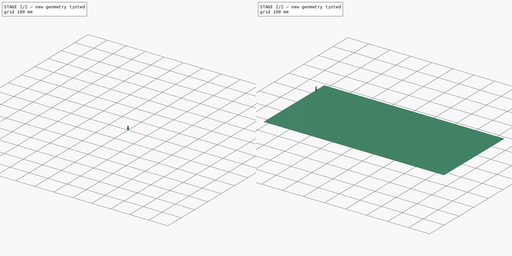
[diagram: build sequence overview — one tinted view per stage of 2, left to right]
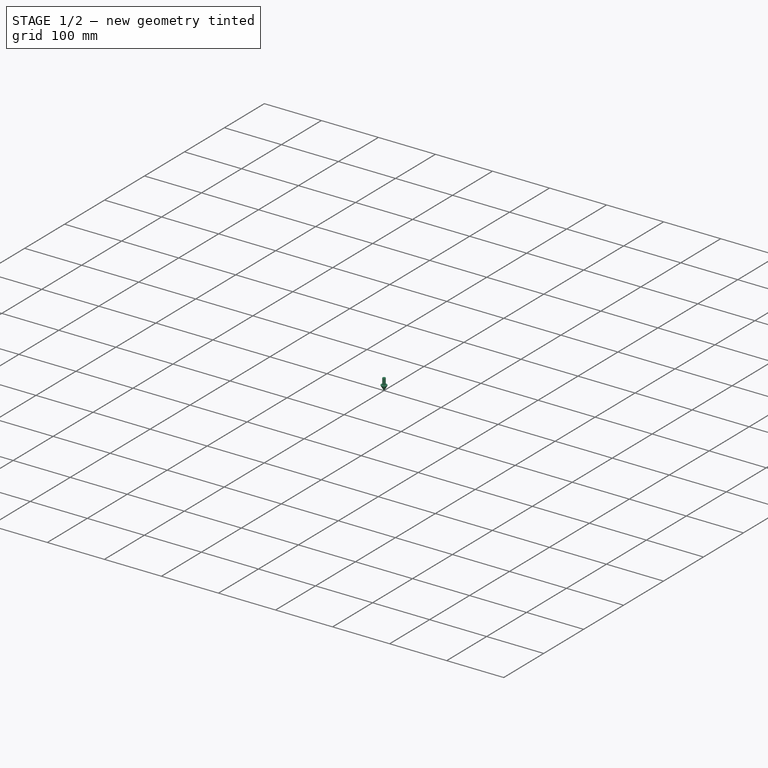
[diagram: stage 1 of 2 — iso view after this stage's code; geometry added in this stage tinted green]
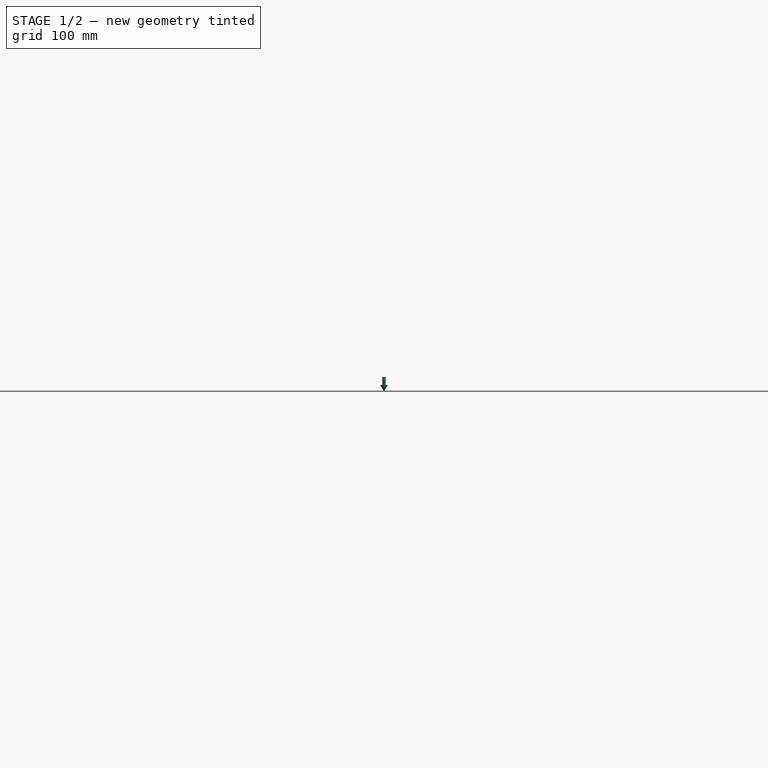
[diagram: stage 1 of 2 — front view after this stage's code; geometry added in this stage tinted green]
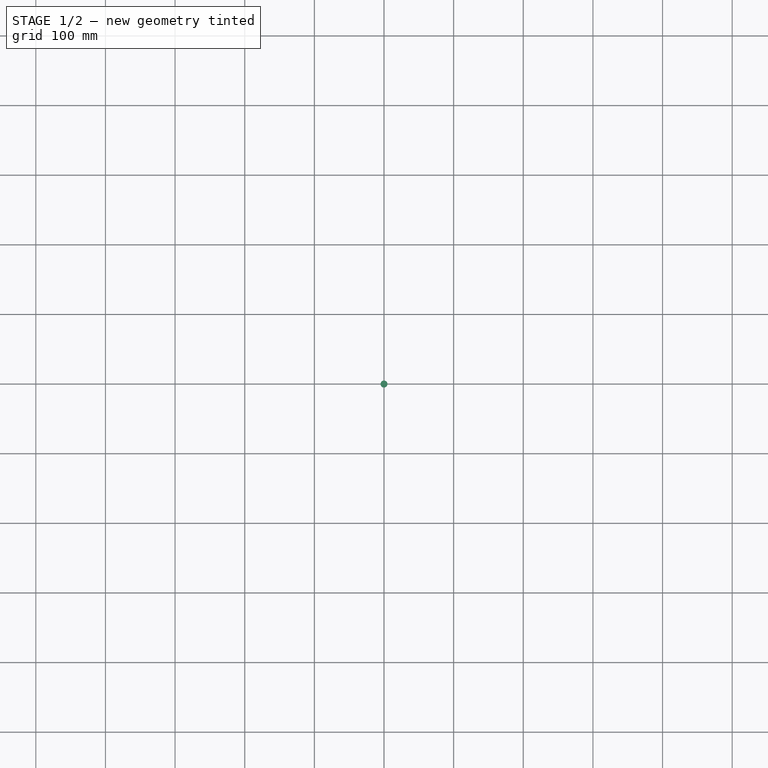
[diagram: stage 1 of 2 — top view after this stage's code; geometry added in this stage tinted green]
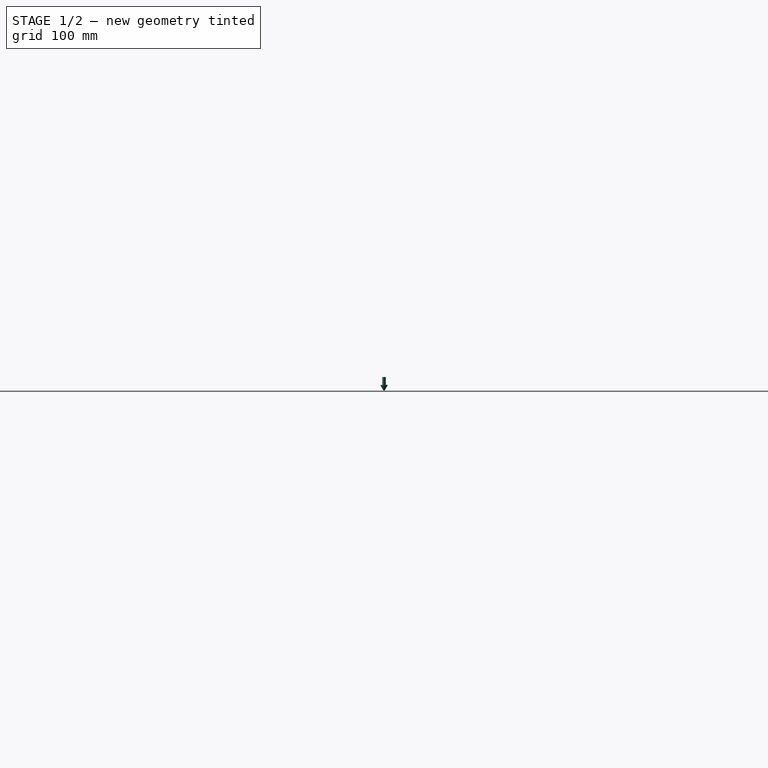
[diagram: stage 1 of 2 — right view after this stage's code; geometry added in this stage tinted green]
FCSTD DOCUMENT  (FreeCAD 0.20R27861 (Git))
Label: BMWR32b
License: All rights reserved
LicenseURL: http://en.wikipedia.org/wiki/All_rights_reserved
objects: Sketcher::SketchObject×3, Part::Part2DObjectPython×3, Path::FeaturePython×3, App::DocumentObjectGroup×2, Part::FeaturePython×2, App::FeaturePython×1, Path::FeatureCompoundPython×1
note: 8 computed .brp shape members not serialized (recipe doc carries the construction recipe); baked Part::Feature solids carry a one-line shape summary decoded from their .brp

FEATURE [Part::FeaturePython] ToolBit001  label="60 Deg. V-Bit"  # Path/CAM toolbit (typed FeaturePython)
  BitPropertyNames = Chipload | CuttingEdgeAngle | CuttingEdgeHeight | Diameter | Flutes | Length | Material | ShankDiameter | TipDiameter
  BitShape = <path>
  Chipload = 0
  CuttingEdgeAngle = 60
  CuttingEdgeHeight = 1
  Diameter = 10
  File = <userpath>/MensShed/CNCRouter/FreeCAD/Bit/60degree_Vbit.fctb
  Flutes = 0
  Length = 20
  Material = 0
  ShankDiameter = 5
  ShapeName = v_bit
  TipDiameter = 1
FEATURE [Path::FeaturePython] _0_Deg__V_Bit  label="60 Deg. V-Bit001"  # Path/CAM operation (typed FeaturePython)
  HorizFeed = 0.333333
  HorizRapid = 0
  SpindleDir = 1
  SpindleSpeed = 10000
  Tool = -> ToolBit001
  ToolNumber = 2
  VertFeed = 0.333333
  VertRapid = 0
  expr: HorizRapid = SetupSheet.HorizRapid
  expr: VertRapid = SetupSheet.VertRapid
FEATURE [App::DocumentObjectGroup] Tools
  Group = -> [_0_Deg__V_Bit]
FEATURE [Path::FeaturePython] Engrave  # Path/CAM operation (typed FeaturePython)
  Active = true
  ClearanceHeight = 6
  CoolantMode = 0
  CycleTime = 10:00:06
  FinalDepth = -1
  OpFinalDepth = -10
  OpStartDepth = 0
  OpStockZMax = 1
  OpStockZMin = 0
  OpToolDiameter = 10
  SafeHeight = 4
  StartDepth = 0
  StartVertex = 0
  StepDown = 10
  ToolController = -> _0_Deg__V_Bit
  expr: ClearanceHeight = OpStockZMax + SetupSheet.ClearanceHeightOffset
  expr: FinalDepth = -1
  expr: SafeHeight = OpStockZMax + SetupSheet.SafeHeightOffset
  expr: StartDepth = OpStartDepth
  expr: StepDown = OpToolDiameter
FEATURE [Path::FeatureCompoundPython] Operations  # Path/CAM operation (typed FeaturePython)
  Group = -> [Engrave]
  UsePlacements = false
FEATURE [Path::FeaturePython] Job  # Path/CAM operation (typed FeaturePython)
  CycleTime = 10:00:06
  Fixtures = G54
  GeometryTolerance = 0.01
  JobType = 0
  LastPostProcessDate = 2022-03-07 19:38:02.285909
  LastPostProcessOutput = <userpath>/MensShed/CNCRouter/Shapes/BMWR32b.ngc
  Model = -> Model
  Operations = -> Operations
  OrderOutputBy = 0
  PostProcessor = 1
  PostProcessorOutputFile = %D/%d.ngc
  SetupSheet = -> SetupSheet
  SplitOutput = false
  Stock = -> Stock001
  Tools = -> Tools
note: 1 file-system path scrubbed to <path> (originals preserved in the JSON sidecar)
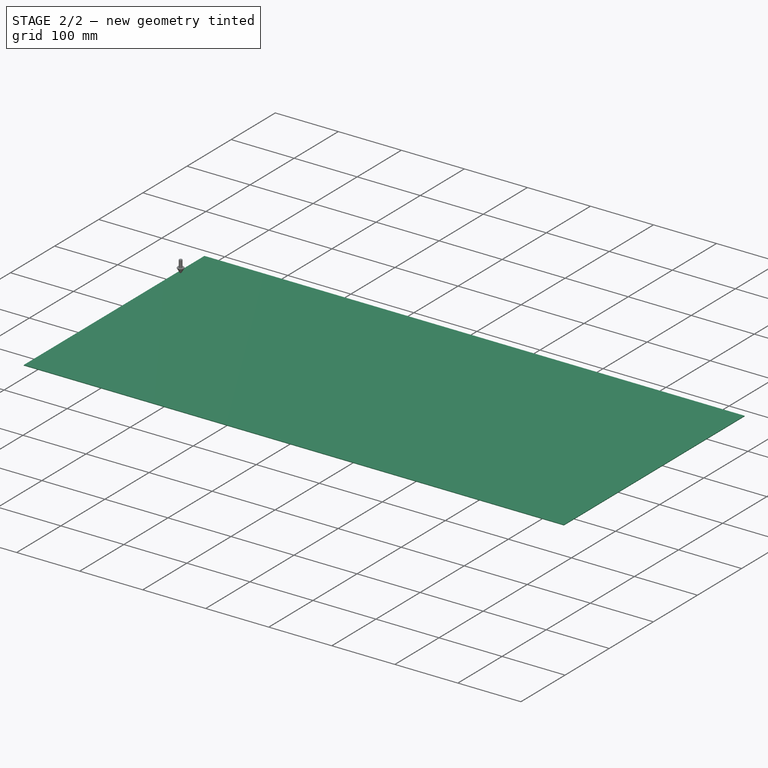
[diagram: stage 2 of 2 — iso view after this stage's code; geometry added in this stage tinted green]
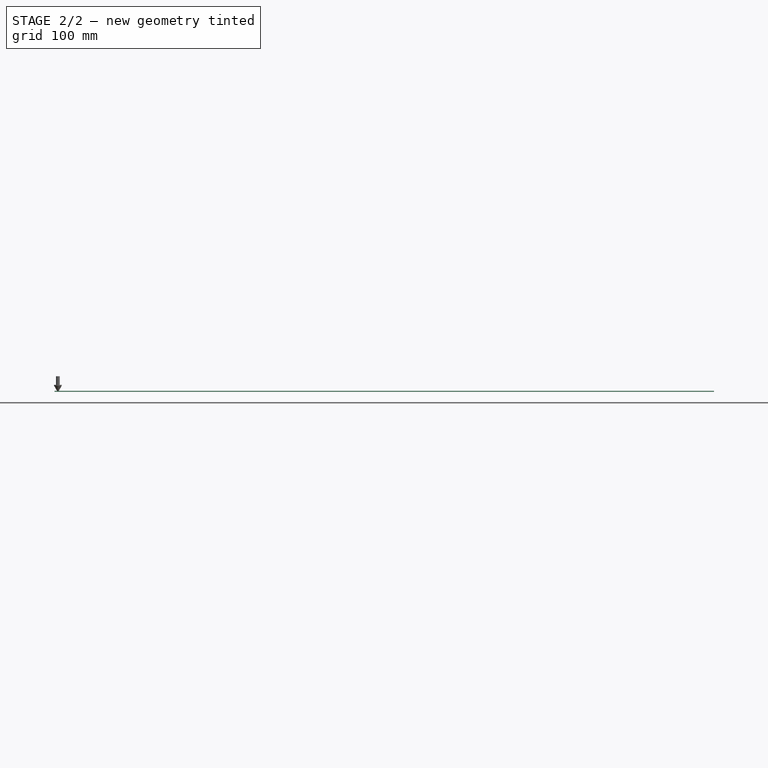
[diagram: stage 2 of 2 — front view after this stage's code; geometry added in this stage tinted green]
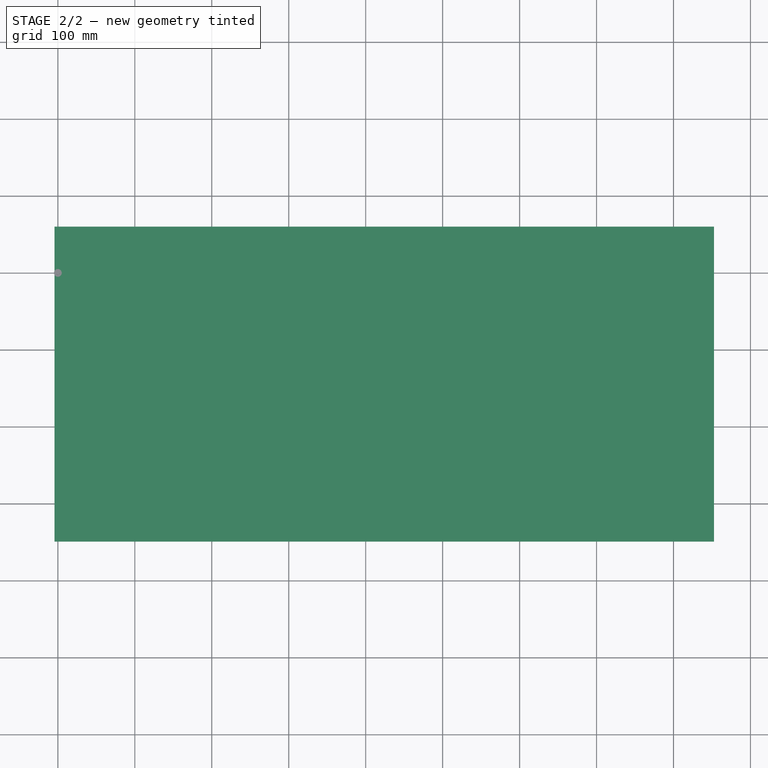
[diagram: stage 2 of 2 — top view after this stage's code; geometry added in this stage tinted green]
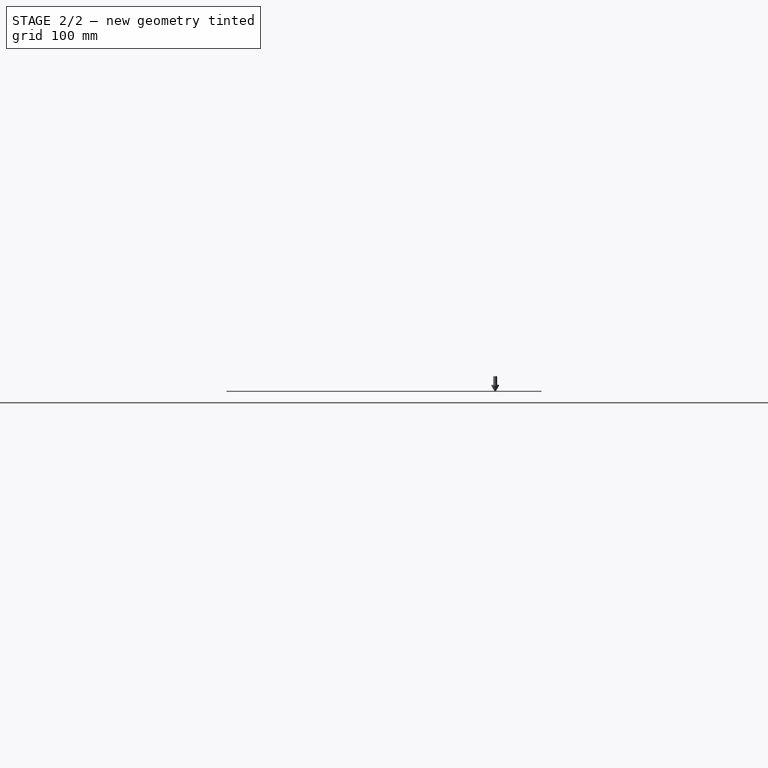
[diagram: stage 2 of 2 — right view after this stage's code; geometry added in this stage tinted green]
FEATURE [Sketcher::SketchObject] Sketch
  FullyConstrained = false
  sketch-geometry (2746):
    g0: BSplineCurve PolesCount=2 KnotsCount=2 Degree=1 IsPeriodic=0
    g1: BSplineCurve PolesCount=2 KnotsCount=2 Degree=1 IsPeriodic=0
    g2: BSplineCurve PolesCount=2 KnotsCount=2 Degree=1 IsPeriodic=0
    g3: BSplineCurve PolesCount=2 KnotsCount=2 Degree=1 IsPeriodic=0
    g4: BSplineCurve PolesCount=2 KnotsCount=2 Degree=1 IsPeriodic=0
    g5: BSplineCurve PolesCount=2 KnotsCount=2 Degree=1 IsPeriodic=0
    g6: BSplineCurve PolesCount=2 KnotsCount=2 Degree=1 IsPeriodic=0
    g7: BSplineCurve PolesCount=2 KnotsCount=2 Degree=1 IsPeriodic=0
    g8: BSplineCurve PolesCount=2 KnotsCount=2 Degree=1 IsPeriodic=0
    g9: BSplineCurve PolesCount=2 KnotsCount=2 Degree=1 IsPeriodic=0
    g10: BSplineCurve PolesCount=2 KnotsCount=2 Degree=1 IsPeriodic=0
    g11: BSplineCurve PolesCount=2 KnotsCount=2 Degree=1 IsPeriodic=0
    g12: BSplineCurve PolesCount=2 KnotsCount=2 Degree=1 IsPeriodic=0
    g13: BSplineCurve PolesCount=2 KnotsCount=2 Degree=1 IsPeriodic=0
    g14: BSplineCurve PolesCount=2 KnotsCount=2 Degree=1 IsPeriodic=0
    g15: BSplineCurve PolesCount=2 KnotsCount=2 Degree=1 IsPeriodic=0
    g16: BSplineCurve PolesCount=2 KnotsCount=2 Degree=1 IsPeriodic=0
    g17: BSplineCurve PolesCount=2 KnotsCount=2 Degree=1 IsPeriodic=0
    g18: BSplineCurve PolesCount=4 KnotsCount=2 Degree=3 IsPeriodic=0
    g19: BSplineCurve PolesCount=2 KnotsCount=2 Degree=1 IsPeriodic=0
    g20: BSplineCurve PolesCount=2 KnotsCount=2 Degree=1 IsPeriodic=0
    g21: BSplineCurve PolesCount=2 KnotsCount=2 Degree=1 IsPeriodic=0
    g22: BSplineCurve PolesCount=2 KnotsCount=2 Degree=1 IsPeriodic=0
    g23: BSplineCurve PolesCount=2 KnotsCount=2 Degree=1 IsPeriodic=0
    g24: BSplineCurve PolesCount=2 KnotsCount=2 Degree=1 IsPeriodic=0
    g25: BSplineCurve PolesCount=2 KnotsCount=2 Degree=1 IsPeriodic=0
    g26: BSplineCurve PolesCount=4 KnotsCount=2 Degree=3 IsPeriodic=0
    g27: BSplineCurve PolesCount=2 KnotsCount=2 Degree=1 IsPeriodic=0
    g28: BSplineCurve PolesCount=2 KnotsCount=2 Degree=1 IsPeriodic=0
    g29: BSplineCurve PolesCount=4 KnotsCount=2 Degree=3 IsPeriodic=0
    g30: BSplineCurve PolesCount=4 KnotsCount=2 Degree=3 IsPeriodic=0
    g31: BSplineCurve PolesCount=2 KnotsCount=2 Degree=1 IsPeriodic=0
    g32: BSplineCurve PolesCount=4 KnotsCount=2 Degree=3 IsPeriodic=0
    g33: BSplineCurve PolesCount=2 KnotsCount=2 Degree=1 IsPeriodic=0
    g34: BSplineCurve PolesCount=4 KnotsCount=2 Degree=3 IsPeriodic=0
    g35: BSplineCurve PolesCount=2 KnotsCount=2 Degree=1 IsPeriodic=0
    g36: BSplineCurve PolesCount=2 KnotsCount=2 Degree=1 IsPeriodic=0
    g37: BSplineCurve PolesCount=4 KnotsCount=2 Degree=3 IsPeriodic=0
    g38: BSplineCurve PolesCount=2 KnotsCount=2 Degree=1 IsPeriodic=0
    g39: BSplineCurve PolesCount=4 KnotsCount=2 Degree=3 IsPeriodic=0
    g40: BSplineCurve PolesCount=2 KnotsCount=2 Degree=1 IsPeriodic=0
    g41: BSplineCurve PolesCount=4 KnotsCount=2 Degree=3 IsPeriodic=0
    g42: BSplineCurve PolesCount=4 KnotsCount=2 Degree=3 IsPeriodic=0
    g43: BSplineCurve PolesCount=2 KnotsCount=2 Degree=1 IsPeriodic=0
    g44: BSplineCurve PolesCount=2 KnotsCount=2 Degree=1 IsPeriodic=0
    g45: BSplineCurve PolesCount=2 KnotsCount=2 Degree=1 IsPeriodic=0
    g46: BSplineCurve PolesCount=2 KnotsCount=2 Degree=1 IsPeriodic=0
    g47: BSplineCurve PolesCount=2 KnotsCount=2 Degree=1 IsPeriodic=0
    g48: BSplineCurve PolesCount=2 KnotsCount=2 Degree=1 IsPeriodic=0
    g49: BSplineCurve PolesCount=2 KnotsCount=2 Degree=1 IsPeriodic=0
    g50: BSplineCurve PolesCount=4 KnotsCount=2 Degree=3 IsPeriodic=0
    g51: BSplineCurve PolesCount=2 KnotsCount=2 Degree=1 IsPeriodic=0
    g52: BSplineCurve PolesCount=2 KnotsCount=2 Degree=1 IsPeriodic=0
    g53: BSplineCurve PolesCount=4 KnotsCount=2 Degree=3 IsPeriodic=0
    g54: BSplineCurve PolesCount=2 KnotsCount=2 Degree=1 IsPeriodic=0
    g55: BSplineCurve PolesCount=4 KnotsCount=2 Degree=3 IsPeriodic=0
    g56: BSplineCurve PolesCount=2 KnotsCount=2 Degree=1 IsPeriodic=0
    g57: BSplineCurve PolesCount=4 KnotsCount=2 Degree=3 IsPeriodic=0
    g58: BSplineCurve PolesCount=2 KnotsCount=2 Degree=1 IsPeriodic=0
    g59: BSplineCurve PolesCount=4 KnotsCount=2 Degree=3 IsPeriodic=0
    g60: BSplineCurve PolesCount=2 KnotsCount=2 Degree=1 IsPeriodic=0
    g61: BSplineCurve PolesCount=4 KnotsCount=2 Degree=3 IsPeriodic=0
    g62: BSplineCurve PolesCount=2 KnotsCount=2 Degree=1 IsPeriodic=0
    g63: BSplineCurve PolesCount=4 KnotsCount=2 Degree=3 IsPeriodic=0
    g64: BSplineCurve PolesCount=2 KnotsCount=2 Degree=1 IsPeriodic=0
    g65: BSplineCurve PolesCount=2 KnotsCount=2 Degree=1 IsPeriodic=0
    g66: BSplineCurve PolesCount=2 KnotsCount=2 Degree=1 IsPeriodic=0
    g67: BSplineCurve PolesCount=2 KnotsCount=2 Degree=1 IsPeriodic=0
    g68: BSplineCurve PolesCount=4 KnotsCount=2 Degree=3 IsPeriodic=0
    g69: BSplineCurve PolesCount=2 KnotsCount=2 Degree=1 IsPeriodic=0
    g70: BSplineCurve PolesCount=2 KnotsCount=2 Degree=1 IsPeriodic=0
    g71: BSplineCurve PolesCount=2 KnotsCount=2 Degree=1 IsPeriodic=0
    g72: BSplineCurve PolesCount=2 KnotsCount=2 Degree=1 IsPeriodic=0
    g73: BSplineCurve PolesCount=2 KnotsCount=2 Degree=1 IsPeriodic=0
    g74: BSplineCurve PolesCount=2 KnotsCount=2 Degree=1 IsPeriodic=0
    g75: BSplineCurve PolesCount=2 KnotsCount=2 Degree=1 IsPeriodic=0
    g76: BSplineCurve PolesCount=2 KnotsCount=2 Degree=1 IsPeriodic=0
    g77: BSplineCurve PolesCount=2 KnotsCount=2 Degree=1 IsPeriodic=0
    g78: BSplineCurve PolesCount=2 KnotsCount=2 Degree=1 IsPeriodic=0
    g79: BSplineCurve PolesCount=2 KnotsCount=2 Degree=1 IsPeriodic=0
    g80: BSplineCurve PolesCount=2 KnotsCount=2 Degree=1 IsPeriodic=0
    g81: BSplineCurve PolesCount=2 KnotsCount=2 Degree=1 IsPeriodic=0
    g82: BSplineCurve PolesCount=4 KnotsCount=2 Degree=3 IsPeriodic=0
    g83: BSplineCurve PolesCount=4 KnotsCount=2 Degree=3 IsPeriodic=0
    g84: BSplineCurve PolesCount=2 KnotsCount=2 Degree=1 IsPeriodic=0
    g85: BSplineCurve PolesCount=2 KnotsCount=2 Degree=1 IsPeriodic=0
    g86: BSplineCurve PolesCount=2 KnotsCount=2 Degree=1 IsPeriodic=0
    g87: BSplineCurve PolesCount=2 KnotsCount=2 Degree=1 IsPeriodic=0
    g88: BSplineCurve PolesCount=2 KnotsCount=2 Degree=1 IsPeriodic=0
    g89: BSplineCurve PolesCount=2 KnotsCount=2 Degree=1 IsPeriodic=0
    g90: BSplineCurve PolesCount=2 KnotsCount=2 Degree=1 IsPeriodic=0
    g91: BSplineCurve PolesCount=2 KnotsCount=2 Degree=1 IsPeriodic=0
    g92: BSplineCurve PolesCount=2 KnotsCount=2 Degree=1 IsPeriodic=0
    g93: BSplineCurve PolesCount=2 KnotsCount=2 Degree=1 IsPeriodic=0
    g94: BSplineCurve PolesCount=2 KnotsCount=2 Degree=1 IsPeriodic=0
    g95: BSplineCurve PolesCount=2 KnotsCount=2 Degree=1 IsPeriodic=0
    g96: BSplineCurve PolesCount=2 KnotsCount=2 Degree=1 IsPeriodic=0
    g97: BSplineCurve PolesCount=2 KnotsCount=2 Degree=1 IsPeriodic=0
    g98: BSplineCurve PolesCount=2 KnotsCount=2 Degree=1 IsPeriodic=0
    g99: BSplineCurve PolesCount=4 KnotsCount=2 Degree=3 IsPeriodic=0
    g100: BSplineCurve PolesCount=2 KnotsCount=2 Degree=1 IsPeriodic=0
    g101: BSplineCurve PolesCount=2 KnotsCount=2 Degree=1 IsPeriodic=0
    g102: BSplineCurve PolesCount=4 KnotsCount=2 Degree=3 IsPeriodic=0
    g103: BSplineCurve PolesCount=2 KnotsCount=2 Degree=1 IsPeriodic=0
    g104: BSplineCurve PolesCount=2 KnotsCount=2 Degree=1 IsPeriodic=0
    g105: BSplineCurve PolesCount=2 KnotsCount=2 Degree=1 IsPeriodic=0
    g106: BSplineCurve PolesCount=2 KnotsCount=2 Degree=1 IsPeriodic=0
    g107: BSplineCurve PolesCount=2 KnotsCount=2 Degree=1 IsPeriodic=0
    g108: BSplineCurve PolesCount=2 KnotsCount=2 Degree=1 IsPeriodic=0
    g109: BSplineCurve PolesCount=2 KnotsCount=2 Degree=1 IsPeriodic=0
    g110: BSplineCurve PolesCount=2 KnotsCount=2 Degree=1 IsPeriodic=0
    g111: BSplineCurve PolesCount=2 KnotsCount=2 Degree=1 IsPeriodic=0
    g112: BSplineCurve PolesCount=2 KnotsCount=2 Degree=1 IsPeriodic=0
    g113: BSplineCurve PolesCount=2 KnotsCount=2 Degree=1 IsPeriodic=0
    g114: BSplineCurve PolesCount=2 KnotsCount=2 Degree=1 IsPeriodic=0
    g115: BSplineCurve PolesCount=2 KnotsCount=2 Degree=1 IsPeriodic=0
    g116: BSplineCurve PolesCount=2 KnotsCount=2 Degree=1 IsPeriodic=0
    g117: BSplineCurve PolesCount=2 KnotsCount=2 Degree=1 IsPeriodic=0
    g118: BSplineCurve PolesCount=2 KnotsCount=2 Degree=1 IsPeriodic=0
    g119: BSplineCurve PolesCount=2 KnotsCount=2 Degree=1 IsPeriodic=0
    g120: BSplineCurve PolesCount=4 KnotsCount=2 Degree=3 IsPeriodic=0
    g121: BSplineCurve PolesCount=2 KnotsCount=2 Degree=1 IsPeriodic=0
    g122: BSplineCurve PolesCount=2 KnotsCount=2 Degree=1 IsPeriodic=0
    g123: BSplineCurve PolesCount=2 KnotsCount=2 Degree=1 IsPeriodic=0
    g124: BSplineCurve PolesCount=2 KnotsCount=2 Degree=1 IsPeriodic=0
    g125: BSplineCurve PolesCount=2 KnotsCount=2 Degree=1 IsPeriodic=0
    g126: BSplineCurve PolesCount=4 KnotsCount=2 Degree=3 IsPeriodic=0
    g127: BSplineCurve PolesCount=4 KnotsCount=2 Degree=3 IsPeriodic=0
    g128: BSplineCurve PolesCount=2 KnotsCount=2 Degree=1 IsPeriodic=0
    g129: BSplineCurve PolesCount=4 KnotsCount=2 Degree=3 IsPeriodic=0
    g130: BSplineCurve PolesCount=4 KnotsCount=2 Degree=3 IsPeriodic=0
    g131: BSplineCurve PolesCount=2 KnotsCount=2 Degree=1 IsPeriodic=0
    g132: BSplineCurve PolesCount=2 KnotsCount=2 Degree=1 IsPeriodic=0
    g133: BSplineCurve PolesCount=2 KnotsCount=2 Degree=1 IsPeriodic=0
    g134: BSplineCurve PolesCount=2 KnotsCount=2 Degree=1 IsPeriodic=0
    g135: BSplineCurve PolesCount=2 KnotsCount=2 Degree=1 IsPeriodic=0
    g136: BSplineCurve PolesCount=2 KnotsCount=2 Degree=1 IsPeriodic=0
    g137: BSplineCurve PolesCount=4 KnotsCount=2 Degree=3 IsPeriodic=0
    g138: BSplineCurve PolesCount=2 KnotsCount=2 Degree=1 IsPeriodic=0
    g139: BSplineCurve PolesCount=4 KnotsCount=2 Degree=3 IsPeriodic=0
    g140: BSplineCurve PolesCount=2 KnotsCount=2 Degree=1 IsPeriodic=0
    g141: BSplineCurve PolesCount=4 KnotsCount=2 Degree=3 IsPeriodic=0
    g142: BSplineCurve PolesCount=4 KnotsCount=2 Degree=3 IsPeriodic=0
    g143: BSplineCurve PolesCount=2 KnotsCount=2 Degree=1 IsPeriodic=0
    g144: BSplineCurve PolesCount=2 KnotsCount=2 Degree=1 IsPeriodic=0
    g145: BSplineCurve PolesCount=4 KnotsCount=2 Degree=3 IsPeriodic=0
    g146: BSplineCurve PolesCount=4 KnotsCount=2 Degree=3 IsPeriodic=0
    g147: BSplineCurve PolesCount=4 KnotsCount=2 Degree=3 IsPeriodic=0
    g148: BSplineCurve PolesCount=2 KnotsCount=2 Degree=1 IsPeriodic=0
    g149: BSplineCurve PolesCount=4 KnotsCount=2 Degree=3 IsPeriodic=0
    g150: BSplineCurve PolesCount=2 KnotsCount=2 Degree=1 IsPeriodic=0
    g151: BSplineCurve PolesCount=2 KnotsCount=2 Degree=1 IsPeriodic=0
    g152: BSplineCurve PolesCount=2 KnotsCount=2 Degree=1 IsPeriodic=0
    g153: BSplineCurve PolesCount=2 KnotsCount=2 Degree=1 IsPeriodic=0
    g154: BSplineCurve PolesCount=2 KnotsCount=2 Degree=1 IsPeriodic=0
    g155: BSplineCurve PolesCount=2 KnotsCount=2 Degree=1 IsPeriodic=0
    g156: BSplineCurve PolesCount=4 KnotsCount=2 Degree=3 IsPeriodic=0
    g157: BSplineCurve PolesCount=4 KnotsCount=2 Degree=3 IsPeriodic=0
    g158: BSplineCurve PolesCount=2 KnotsCount=2 Degree=1 IsPeriodic=0
    g159: BSplineCurve PolesCount=2 KnotsCount=2 Degree=1 IsPeriodic=0
    g160: BSplineCurve PolesCount=2 KnotsCount=2 Degree=1 IsPeriodic=0
    g161: BSplineCurve PolesCount=4 KnotsCount=2 Degree=3 IsPeriodic=0
    g162: BSplineCurve PolesCount=4 KnotsCount=2 Degree=3 IsPeriodic=0
    g163: BSplineCurve PolesCount=2 KnotsCount=2 Degree=1 IsPeriodic=0
    g164: BSplineCurve PolesCount=2 KnotsCount=2 Degree=1 IsPeriodic=0
    g165: BSplineCurve PolesCount=2 KnotsCount=2 Degree=1 IsPeriodic=0
    g166: BSplineCurve PolesCount=2 KnotsCount=2 Degree=1 IsPeriodic=0
    g167: BSplineCurve PolesCount=2 KnotsCount=2 Degree=1 IsPeriodic=0
    g168: BSplineCurve PolesCount=2 KnotsCount=2 Degree=1 IsPeriodic=0
    g169: BSplineCurve PolesCount=2 KnotsCount=2 Degree=1 IsPeriodic=0
    g170: BSplineCurve PolesCount=4 KnotsCount=2 Degree=3 IsPeriodic=0
    g171: BSplineCurve PolesCount=2 KnotsCount=2 Degree=1 IsPeriodic=0
    g172: BSplineCurve PolesCount=2 KnotsCount=2 Degree=1 IsPeriodic=0
    g173: BSplineCurve PolesCount=2 KnotsCount=2 Degree=1 IsPeriodic=0
    g174: BSplineCurve PolesCount=4 KnotsCount=2 Degree=3 IsPeriodic=0
    g175: BSplineCurve PolesCount=2 KnotsCount=2 Degree=1 IsPeriodic=0
    g176: BSplineCurve PolesCount=4 KnotsCount=2 Degree=3 IsPeriodic=0
    g177: BSplineCurve PolesCount=2 KnotsCount=2 Degree=1 IsPeriodic=0
    g178: BSplineCurve PolesCount=2 KnotsCount=2 Degree=1 IsPeriodic=0
    g179: BSplineCurve PolesCount=2 KnotsCount=2 Degree=1 IsPeriodic=0
    g180: BSplineCurve PolesCount=2 KnotsCount=2 Degree=1 IsPeriodic=0
    g181: BSplineCurve PolesCount=2 KnotsCount=2 Degree=1 IsPeriodic=0
    g182: BSplineCurve PolesCount=4 KnotsCount=2 Degree=3 IsPeriodic=0
    g183: BSplineCurve PolesCount=2 KnotsCount=2 Degree=1 IsPeriodic=0
    g184: BSplineCurve PolesCount=2 KnotsCount=2 Degree=1 IsPeriodic=0
    g185: BSplineCurve PolesCount=2 KnotsCount=2 Degree=1 IsPeriodic=0
    g186: BSplineCurve PolesCount=2 KnotsCount=2 Degree=1 IsPeriodic=0
    g187: BSplineCurve PolesCount=2 KnotsCount=2 Degree=1 IsPeriodic=0
    g188: BSplineCurve PolesCount=2 KnotsCount=2 Degree=1 IsPeriodic=0
    g189: BSplineCurve PolesCount=4 KnotsCount=2 Degree=3 IsPeriodic=0
    g190: BSplineCurve PolesCount=2 KnotsCount=2 Degree=1 IsPeriodic=0
    g191: BSplineCurve PolesCount=4 KnotsCount=2 Degree=3 IsPeriodic=0
    g192: BSplineCurve PolesCount=4 KnotsCount=2 Degree=3 IsPeriodic=0
    g193: BSplineCurve PolesCount=4 KnotsCount=2 Degree=3 IsPeriodic=0
    g194: BSplineCurve PolesCount=2 KnotsCount=2 Degree=1 IsPeriodic=0
    g195: BSplineCurve PolesCount=4 KnotsCount=2 Degree=3 IsPeriodic=0
    g196: BSplineCurve PolesCount=2 KnotsCount=2 Degree=1 IsPeriodic=0
    g197: BSplineCurve PolesCount=2 KnotsCount=2 Degree=1 IsPeriodic=0
    g198: BSplineCurve PolesCount=4 KnotsCount=2 Degree=3 IsPeriodic=0
    g199: BSplineCurve PolesCount=2 KnotsCount=2 Degree=1 IsPeriodic=0
    g200: BSplineCurve PolesCount=4 KnotsCount=2 Degree=3 IsPeriodic=0
    g201: BSplineCurve PolesCount=2 KnotsCount=2 Degree=1 IsPeriodic=0
    g202: BSplineCurve PolesCount=4 KnotsCount=2 Degree=3 IsPeriodic=0
    g203: BSplineCurve PolesCount=2 KnotsCount=2 Degree=1 IsPeriodic=0
    g204: BSplineCurve PolesCount=4 KnotsCount=2 Degree=3 IsPeriodic=0
    g205: BSplineCurve PolesCount=2 KnotsCount=2 Degree=1 IsPeriodic=0
    g206: BSplineCurve PolesCount=2 KnotsCount=2 Degree=1 IsPeriodic=0
    g207: BSplineCurve PolesCount=2 KnotsCount=2 Degree=1 IsPeriodic=0
    g208: BSplineCurve PolesCount=2 KnotsCount=2 Degree=1 IsPeriodic=0
    g209: BSplineCurve PolesCount=2 KnotsCount=2 Degree=1 IsPeriodic=0
    g210: BSplineCurve PolesCount=2 KnotsCount=2 Degree=1 IsPeriodic=0
    g211: BSplineCurve PolesCount=2 KnotsCount=2 Degree=1 IsPeriodic=0
    g212: BSplineCurve PolesCount=2 KnotsCount=2 Degree=1 IsPeriodic=0
    g213: BSplineCurve PolesCount=2 KnotsCount=2 Degree=1 IsPeriodic=0
    g214: BSplineCurve PolesCount=2 KnotsCount=2 Degree=1 IsPeriodic=0
    g215: BSplineCurve PolesCount=2 KnotsCount=2 Degree=1 IsPeriodic=0
    g216: BSplineCurve PolesCount=2 KnotsCount=2 Degree=1 IsPeriodic=0
    g217: BSplineCurve PolesCount=2 KnotsCount=2 Degree=1 IsPeriodic=0
    g218: BSplineCurve PolesCount=2 KnotsCount=2 Degree=1 IsPeriodic=0
    g219: BSplineCurve PolesCount=4 KnotsCount=2 Degree=3 IsPeriodic=0
    g220: BSplineCurve PolesCount=4 KnotsCount=2 Degree=3 IsPeriodic=0
    g221: BSplineCurve PolesCount=2 KnotsCount=2 Degree=1 IsPeriodic=0
    g222: BSplineCurve PolesCount=2 KnotsCount=2 Degree=1 IsPeriodic=0
    g223: BSplineCurve PolesCount=2 KnotsCount=2 Degree=1 IsPeriodic=0
    g224: BSplineCurve PolesCount=4 KnotsCount=2 Degree=3 IsPeriodic=0
    g225: BSplineCurve PolesCount=2 KnotsCount=2 Degree=1 IsPeriodic=0
    g226: BSplineCurve PolesCount=2 KnotsCount=2 Degree=1 IsPeriodic=0
    g227: BSplineCurve PolesCount=4 KnotsCount=2 Degree=3 IsPeriodic=0
    g228: BSplineCurve PolesCount=2 KnotsCount=2 Degree=1 IsPeriodic=0
    g229: BSplineCurve PolesCount=2 KnotsCount=2 Degree=1 IsPeriodic=0
    g230: BSplineCurve PolesCount=2 KnotsCount=2 Degree=1 IsPeriodic=0
    g231: BSplineCurve PolesCount=2 KnotsCount=2 Degree=1 IsPeriodic=0
    g232: BSplineCurve PolesCount=2 KnotsCount=2 Degree=1 IsPeriodic=0
    g233: BSplineCurve PolesCount=2 KnotsCount=2 Degree=1 IsPeriodic=0
    g234: BSplineCurve PolesCount=2 KnotsCount=2 Degree=1 IsPeriodic=0
    g235: BSplineCurve PolesCount=4 KnotsCount=2 Degree=3 IsPeriodic=0
    g236: BSplineCurve PolesCount=4 KnotsCount=2 Degree=3 IsPeriodic=0
    g237: BSplineCurve PolesCount=4 KnotsCount=2 Degree=3 IsPeriodic=0
    g238: BSplineCurve PolesCount=4 KnotsCount=2 Degree=3 IsPeriodic=0
    g239: BSplineCurve PolesCount=4 KnotsCount=2 Degree=3 IsPeriodic=0
    g240: BSplineCurve PolesCount=2 KnotsCount=2 Degree=1 IsPeriodic=0
    g241: BSplineCurve PolesCount=2 KnotsCount=2 Degree=1 IsPeriodic=0
    g242: BSplineCurve PolesCount=4 KnotsCount=2 Degree=3 IsPeriodic=0
    g243: BSplineCurve PolesCount=4 KnotsCount=2 Degree=3 IsPeriodic=0
    g244: BSplineCurve PolesCount=4 KnotsCount=2 Degree=3 IsPeriodic=0
    g245: BSplineCurve PolesCount=4 KnotsCount=2 Degree=3 IsPeriodic=0
    g246: BSplineCurve PolesCount=4 KnotsCount=2 Degree=3 IsPeriodic=0
    g247: BSplineCurve PolesCount=4 KnotsCount=2 Degree=3 IsPeriodic=0
    g248: BSplineCurve PolesCount=4 KnotsCount=2 Degree=3 IsPeriodic=0
    g249: BSplineCurve PolesCount=2 KnotsCount=2 Degree=1 IsPeriodic=0
    g250: BSplineCurve PolesCount=4 KnotsCount=2 Degree=3 IsPeriodic=0
    g251: BSplineCurve PolesCount=2 KnotsCount=2 Degree=1 IsPeriodic=0
    g252: BSplineCurve PolesCount=4 KnotsCount=2 Degree=3 IsPeriodic=0
    g253: BSplineCurve PolesCount=2 KnotsCount=2 Degree=1 IsPeriodic=0
    g254: BSplineCurve PolesCount=2 KnotsCount=2 Degree=1 IsPeriodic=0
    g255: BSplineCurve PolesCount=2 KnotsCount=2 Degree=1 IsPeriodic=0
    g256: BSplineCurve PolesCount=2 KnotsCount=2 Degree=1 IsPeriodic=0
    g257: BSplineCurve PolesCount=2 KnotsCount=2 Degree=1 IsPeriodic=0
    g258: BSplineCurve PolesCount=2 KnotsCount=2 Degree=1 IsPeriodic=0
    g259: BSplineCurve PolesCount=2 KnotsCount=2 Degree=1 IsPeriodic=0
    g260: BSplineCurve PolesCount=2 KnotsCount=2 Degree=1 IsPeriodic=0
    g261: BSplineCurve PolesCount=2 KnotsCount=2 Degree=1 IsPeriodic=0
    g262: BSplineCurve PolesCount=2 KnotsCount=2 Degree=1 IsPeriodic=0
    g263: BSplineCurve PolesCount=2 KnotsCount=2 Degree=1 IsPeriodic=0
    g264: BSplineCurve PolesCount=2 KnotsCount=2 Degree=1 IsPeriodic=0
    g265: BSplineCurve PolesCount=2 KnotsCount=2 Degree=1 IsPeriodic=0
    g266: BSplineCurve PolesCount=4 KnotsCount=2 Degree=3 IsPeriodic=0
    g267: BSplineCurve PolesCount=2 KnotsCount=2 Degree=1 IsPeriodic=0
    g268: BSplineCurve PolesCount=2 KnotsCount=2 Degree=1 IsPeriodic=0
    g269: BSplineCurve PolesCount=4 KnotsCount=2 Degree=3 IsPeriodic=0
    g270: BSplineCurve PolesCount=4 KnotsCount=2 Degree=3 IsPeriodic=0
    g271: BSplineCurve PolesCount=2 KnotsCount=2 Degree=1 IsPeriodic=0
    g272: BSplineCurve PolesCount=2 KnotsCount=2 Degree=1 IsPeriodic=0
    g273: BSplineCurve PolesCount=2 KnotsCount=2 Degree=1 IsPeriodic=0
    g274: BSplineCurve PolesCount=2 KnotsCount=2 Degree=1 IsPeriodic=0
    g275: BSplineCurve PolesCount=2 KnotsCount=2 Degree=1 IsPeriodic=0
    g276: BSplineCurve PolesCount=2 KnotsCount=2 Degree=1 IsPeriodic=0
    g277: BSplineCurve PolesCount=2 KnotsCount=2 Degree=1 IsPeriodic=0
    g278: BSplineCurve PolesCount=2 KnotsCount=2 Degree=1 IsPeriodic=0
    g279: BSplineCurve PolesCount=2 KnotsCount=2 Degree=1 IsPeriodic=0
    g280: BSplineCurve PolesCount=2 KnotsCount=2 Degree=1 IsPeriodic=0
    g281: BSplineCurve PolesCount=2 KnotsCount=2 Degree=1 IsPeriodic=0
    g282: BSplineCurve PolesCount=2 KnotsCount=2 Degree=1 IsPeriodic=0
    g283: BSplineCurve PolesCount=2 KnotsCount=2 Degree=1 IsPeriodic=0
    g284: BSplineCurve PolesCount=2 KnotsCount=2 Degree=1 IsPeriodic=0
    g285: BSplineCurve PolesCount=2 KnotsCount=2 Degree=1 IsPeriodic=0
    g286: BSplineCurve PolesCount=2 KnotsCount=2 Degree=1 IsPeriodic=0
    g287: BSplineCurve PolesCount=2 KnotsCount=2 Degree=1 IsPeriodic=0
    g288: BSplineCurve PolesCount=2 KnotsCount=2 Degree=1 IsPeriodic=0
    g289: BSplineCurve PolesCount=2 KnotsCount=2 Degree=1 IsPeriodic=0
    g290: BSplineCurve PolesCount=2 KnotsCount=2 Degree=1 IsPeriodic=0
    g291: BSplineCurve PolesCount=2 KnotsCount=2 Degree=1 IsPeriodic=0
    g292: BSplineCurve PolesCount=2 KnotsCount=2 Degree=1 IsPeriodic=0
    g293: BSplineCurve PolesCount=2 KnotsCount=2 Degree=1 IsPeriodic=0
    g294: BSplineCurve PolesCount=2 KnotsCount=2 Degree=1 IsPeriodic=0
    g295: BSplineCurve PolesCount=2 KnotsCount=2 Degree=1 IsPeriodic=0
    g296: BSplineCurve PolesCount=2 KnotsCount=2 Degree=1 IsPeriodic=0
    g297: BSplineCurve PolesCount=2 KnotsCount=2 Degree=1 IsPeriodic=0
    g298: BSplineCurve PolesCount=4 KnotsCount=2 Degree=3 IsPeriodic=0
    g299: BSplineCurve PolesCount=4 KnotsCount=2 Degree=3 IsPeriodic=0
    g300: BSplineCurve PolesCount=4 KnotsCount=2 Degree=3 IsPeriodic=0
    g301: BSplineCurve PolesCount=2 KnotsCount=2 Degree=1 IsPeriodic=0
    g302: BSplineCurve PolesCount=2 KnotsCount=2 Degree=1 IsPeriodic=0
    g303: BSplineCurve PolesCount=2 KnotsCount=2 Degree=1 IsPeriodic=0
    g304: BSplineCurve PolesCount=4 KnotsCount=2 Degree=3 IsPeriodic=0
    g305: BSplineCurve PolesCount=2 KnotsCount=2 Degree=1 IsPeriodic=0
    g306: BSplineCurve PolesCount=2 KnotsCount=2 Degree=1 IsPeriodic=0
    g307: BSplineCurve PolesCount=2 KnotsCount=2 Degree=1 IsPeriodic=0
    g308: BSplineCurve PolesCount=2 KnotsCount=2 Degree=1 IsPeriodic=0
    g309: BSplineCurve PolesCount=2 KnotsCount=2 Degree=1 IsPeriodic=0
    g310: BSplineCurve PolesCount=2 KnotsCount=2 Degree=1 IsPeriodic=0
    g311: BSplineCurve PolesCount=2 KnotsCount=2 Degree=1 IsPeriodic=0
    g312: BSplineCurve PolesCount=2 KnotsCount=2 Degree=1 IsPeriodic=0
    g313: BSplineCurve PolesCount=2 KnotsCount=2 Degree=1 IsPeriodic=0
    g314: BSplineCurve PolesCount=2 KnotsCount=2 Degree=1 IsPeriodic=0
    g315: BSplineCurve PolesCount=2 KnotsCount=2 Degree=1 IsPeriodic=0
    g316: BSplineCurve PolesCount=2 KnotsCount=2 Degree=1 IsPeriodic=0
    g317: BSplineCurve PolesCount=2 KnotsCount=2 Degree=1 IsPeriodic=0
    g318: BSplineCurve PolesCount=2 KnotsCount=2 Degree=1 IsPeriodic=0
    g319: BSplineCurve PolesCount=2 KnotsCount=2 Degree=1 IsPeriodic=0
    g320: BSplineCurve PolesCount=2 KnotsCount=2 Degree=1 IsPeriodic=0
    g321: BSplineCurve PolesCount=2 KnotsCount=2 Degree=1 IsPeriodic=0
    g322: BSplineCurve PolesCount=2 KnotsCount=2 Degree=1 IsPeriodic=0
    g323: BSplineCurve PolesCount=4 KnotsCount=2 Degree=3 IsPeriodic=0
    g324: BSplineCurve PolesCount=2 KnotsCount=2 Degree=1 IsPeriodic=0
    g325: BSplineCurve PolesCount=4 KnotsCount=2 Degree=3 IsPeriodic=0
    g326: BSplineCurve PolesCount=4 KnotsCount=2 Degree=3 IsPeriodic=0
    g327: BSplineCurve PolesCount=2 KnotsCount=2 Degree=1 IsPeriodic=0
    g328: BSplineCurve PolesCount=2 KnotsCount=2 Degree=1 IsPeriodic=0
    g329: BSplineCurve PolesCount=2 KnotsCount=2 Degree=1 IsPeriodic=0
    g330: BSplineCurve PolesCount=4 KnotsCount=2 Degree=3 IsPeriodic=0
    g331: BSplineCurve PolesCount=4 KnotsCount=2 Degree=3 IsPeriodic=0
    g332: BSplineCurve PolesCount=2 KnotsCount=2 Degree=1 IsPeriodic=0
    g333: BSplineCurve PolesCount=2 KnotsCount=2 Degree=1 IsPeriodic=0
    g334: BSplineCurve PolesCount=4 KnotsCount=2 Degree=3 IsPeriodic=0
    g335: BSplineCurve PolesCount=4 KnotsCount=2 Degree=3 IsPeriodic=0
    g336: BSplineCurve PolesCount=4 KnotsCount=2 Degree=3 IsPeriodic=0
    g337: BSplineCurve PolesCount=2 KnotsCount=2 Degree=1 IsPeriodic=0
    g338: BSplineCurve PolesCount=2 KnotsCount=2 Degree=1 IsPeriodic=0
    g339: BSplineCurve PolesCount=2 KnotsCount=2 Degree=1 IsPeriodic=0
    g340: BSplineCurve PolesCount=2 KnotsCount=2 Degree=1 IsPeriodic=0
    g341: BSplineCurve PolesCount=2 KnotsCount=2 Degree=1 IsPeriodic=0
    g342: BSplineCurve PolesCount=2 KnotsCount=2 Degree=1 IsPeriodic=0
    g343: BSplineCurve PolesCount=4 KnotsCount=2 Degree=3 IsPeriodic=0
    g344: BSplineCurve PolesCount=4 KnotsCount=2 Degree=3 IsPeriodic=0
    g345: BSplineCurve PolesCount=2 KnotsCount=2 Degree=1 IsPeriodic=0
    g346: BSplineCurve PolesCount=2 KnotsCount=2 Degree=1 IsPeriodic=0
    g347: BSplineCurve PolesCount=4 KnotsCount=2 Degree=3 IsPeriodic=0
    g348: BSplineCurve PolesCount=4 KnotsCount=2 Degree=3 IsPeriodic=0
    g349: BSplineCurve PolesCount=4 KnotsCount=2 Degree=3 IsPeriodic=0
    g350: BSplineCurve PolesCount=4 KnotsCount=2 Degree=3 IsPeriodic=0
    g351: BSplineCurve PolesCount=2 KnotsCount=2 Degree=1 IsPeriodic=0
    g352: BSplineCurve PolesCount=2 KnotsCount=2 Degree=1 IsPeriodic=0
    g353: BSplineCurve PolesCount=2 KnotsCount=2 Degree=1 IsPeriodic=0
    g354: BSplineCurve PolesCount=2 KnotsCount=2 Degree=1 IsPeriodic=0
    g355: BSplineCurve PolesCount=2 KnotsCount=2 Degree=1 IsPeriodic=0
    g356: BSplineCurve PolesCount=2 KnotsCount=2 Degree=1 IsPeriodic=0
    g357: BSplineCurve PolesCount=2 KnotsCount=2 Degree=1 IsPeriodic=0
    g358: BSplineCurve PolesCount=2 KnotsCount=2 Degree=1 IsPeriodic=0
    g359: BSplineCurve PolesCount=2 KnotsCount=2 Degree=1 IsPeriodic=0
    g360: BSplineCurve PolesCount=2 KnotsCount=2 Degree=1 IsPeriodic=0
    g361: BSplineCurve PolesCount=2 KnotsCount=2 Degree=1 IsPeriodic=0
    g362: BSplineCurve PolesCount=2 KnotsCount=2 Degree=1 IsPeriodic=0
    g363: BSplineCurve PolesCount=2 KnotsCount=2 Degree=1 IsPeriodic=0
    g364: BSplineCurve PolesCount=2 KnotsCount=2 Degree=1 IsPeriodic=0
    g365: BSplineCurve PolesCount=2 KnotsCount=2 Degree=1 IsPeriodic=0
    g366: BSplineCurve PolesCount=2 KnotsCount=2 Degree=1 IsPeriodic=0
    g367: BSplineCurve PolesCount=2 KnotsCount=2 Degree=1 IsPeriodic=0
    g368: BSplineCurve PolesCount=2 KnotsCount=2 Degree=1 IsPeriodic=0
    g369: BSplineCurve PolesCount=2 KnotsCount=2 Degree=1 IsPeriodic=0
    g370: BSplineCurve PolesCount=2 KnotsCount=2 Degree=1 IsPeriodic=0
    g371: BSplineCurve PolesCount=2 KnotsCount=2 Degree=1 IsPeriodic=0
    g372: BSplineCurve PolesCount=2 KnotsCount=2 Degree=1 IsPeriodic=0
    g373: BSplineCurve PolesCount=2 KnotsCount=2 Degree=1 IsPeriodic=0
    g374: BSplineCurve PolesCount=2 KnotsCount=2 Degree=1 IsPeriodic=0
    g375: BSplineCurve PolesCount=2 KnotsCount=2 Degree=1 IsPeriodic=0
    g376: BSplineCurve PolesCount=2 KnotsCount=2 Degree=1 IsPeriodic=0
    g377: BSplineCurve PolesCount=2 KnotsCount=2 Degree=1 IsPeriodic=0
    g378: BSplineCurve PolesCount=2 KnotsCount=2 Degree=1 IsPeriodic=0
    g379: BSplineCurve PolesCount=2 KnotsCount=2 Degree=1 IsPeriodic=0
    g380: BSplineCurve PolesCount=2 KnotsCount=2 Degree=1 IsPeriodic=0
    g381: BSplineCurve PolesCount=2 KnotsCount=2 Degree=1 IsPeriodic=0
    g382: BSplineCurve PolesCount=2 KnotsCount=2 Degree=1 IsPeriodic=0
    g383: BSplineCurve PolesCount=2 KnotsCount=2 Degree=1 IsPeriodic=0
    g384: BSplineCurve PolesCount=2 KnotsCount=2 Degree=1 IsPeriodic=0
    g385: BSplineCurve PolesCount=2 KnotsCount=2 Degree=1 IsPeriodic=0
    g386: BSplineCurve PolesCount=2 KnotsCount=2 Degree=1 IsPeriodic=0
    g387: BSplineCurve PolesCount=2 KnotsCount=2 Degree=1 IsPeriodic=0
    g388: BSplineCurve PolesCount=2 KnotsCount=2 Degree=1 IsPeriodic=0
    g389: BSplineCurve PolesCount=2 KnotsCount=2 Degree=1 IsPeriodic=0
    g390: BSplineCurve PolesCount=2 KnotsCount=2 Degree=1 IsPeriodic=0
    g391: BSplineCurve PolesCount=2 KnotsCount=2 Degree=1 IsPeriodic=0
    g392: BSplineCurve PolesCount=2 KnotsCount=2 Degree=1 IsPeriodic=0
    g393: BSplineCurve PolesCount=2 KnotsCount=2 Degree=1 IsPeriodic=0
    g394: BSplineCurve PolesCount=2 KnotsCount=2 Degree=1 IsPeriodic=0
    g395: BSplineCurve PolesCount=2 KnotsCount=2 Degree=1 IsPeriodic=0
    g396: BSplineCurve PolesCount=2 KnotsCount=2 Degree=1 IsPeriodic=0
    g397: BSplineCurve PolesCount=2 KnotsCount=2 Degree=1 IsPeriodic=0
    g398: BSplineCurve PolesCount=2 KnotsCount=2 Degree=1 IsPeriodic=0
    g399: BSplineCurve PolesCount=2 KnotsCount=2 Degree=1 IsPeriodic=0
    ... +2346 more geometry lines
  constraints (2746):
    c: Coincident(g0,g1)
    c: Coincident(g1,g0)
    c: Coincident(g2,g3)
    c: Coincident(g3,g2)
    c: Coincident(g4,g5)
    c: Coincident(g5,g4)
    c: Coincident(g6,g7)
    c: Coincident(g7,g6)
    c: Coincident(g8,g9)
    c: Coincident(g9,g8)
    c: Coincident(g10,g11)
    c: Coincident(g11,g10)
    c: Coincident(g12,g13)
    c: Coincident(g13,g12)
    c: Coincident(g14,g15)
    c: Coincident(g15,g14)
    c: Coincident(g16,g17)
    c: Coincident(g17,g16)
    c: Coincident(g18,g19)
    c: Coincident(g19,g18)
    c: Coincident(g20,g21)
    c: Coincident(g21,g22)
    c: Coincident(g22,g20)
    c: Coincident(g23,g24)
    c: Coincident(g24,g25)
    c: Coincident(g25,g23)
    c: Coincident(g26,g27)
    c: Coincident(g27,g26)
    c: Coincident(g28,g29)
    c: Coincident(g29,g28)
    c: Coincident(g30,g31)
    c: Coincident(g31,g30)
    c: Coincident(g32,g33)
    c: Coincident(g33,g34)
    c: Coincident(g34,g35)
    c: Coincident(g35,g36)
    c: Coincident(g36,g32)
    c: Coincident(g37,g38)
    c: Coincident(g38,g39)
    c: Coincident(g39,g40)
    c: Coincident(g40,g37)
    c: Coincident(g41,g42)
    c: Coincident(g42,g41)
    c: Coincident(g43,g44)
    c: Coincident(g44,g43)
    c: Coincident(g45,g46)
    c: Coincident(g46,g47)
    c: Coincident(g47,g48)
    c: Coincident(g48,g49)
    c: Coincident(g49,g45)
    c: Coincident(g50,g51)
    c: Coincident(g51,g52)
    c: Coincident(g52,g53)
    c: Coincident(g53,g54)
    c: Coincident(g54,g55)
    c: Coincident(g55,g50)
    c: Coincident(g56,g57)
    c: Coincident(g57,g58)
    c: Coincident(g58,g59)
    c: Coincident(g59,g60)
    c: Coincident(g60,g61)
    c: Coincident(g61,g62)
    c: Coincident(g62,g56)
    c: Coincident(g63,g64)
    c: Coincident(g64,g65)
    c: Coincident(g65,g63)
    c: Coincident(g66,g67)
    c: Coincident(g67,g68)
    c: Coincident(g68,g69)
    c: Coincident(g69,g70)
    c: Coincident(g70,g71)
    c: Coincident(g71,g72)
    c: Coincident(g72,g66)
    c: Coincident(g73,g74)
    c: Coincident(g74,g75)
    c: Coincident(g75,g73)
    c: Coincident(g76,g77)
    c: Coincident(g77,g78)
    c: Coincident(g78,g79)
    c: Coincident(g79,g80)
    c: Coincident(g80,g81)
    c: Coincident(g81,g76)
    c: Coincident(g82,g83)
    c: Coincident(g83,g82)
    c: Coincident(g84,g85)
    c: Coincident(g85,g86)
    c: Coincident(g86,g87)
    c: Coincident(g87,g88)
    c: Coincident(g88,g89)
    c: Coincident(g89,g90)
    c: Coincident(g90,g91)
    c: Coincident(g91,g92)
    c: Coincident(g92,g93)
    c: Coincident(g93,g94)
    c: Coincident(g94,g95)
    c: Coincident(g95,g96)
    c: Coincident(g96,g97)
    c: Coincident(g97,g84)
    c: Coincident(g98,g99)
    c: Coincident(g99,g100)
    c: Coincident(g100,g101)
    c: Coincident(g101,g102)
    c: Coincident(g102,g103)
    c: Coincident(g103,g104)
    c: Coincident(g104,g98)
    c: Coincident(g105,g106)
    c: Coincident(g106,g107)
    c: Coincident(g107,g105)
    c: Coincident(g108,g109)
    c: Coincident(g109,g110)
    c: Coincident(g110,g111)
    c: Coincident(g111,g112)
    c: Coincident(g112,g113)
    c: Coincident(g113,g114)
    c: Coincident(g114,g115)
    c: Coincident(g115,g108)
    c: Coincident(g116,g117)
    c: Coincident(g117,g116)
    c: Coincident(g118,g119)
    c: Coincident(g119,g118)
    c: Coincident(g120,g121)
    c: Coincident(g121,g120)
    c: Coincident(g122,g123)
    c: Coincident(g123,g124)
    c: Coincident(g124,g125)
    c: Coincident(g125,g126)
    c: Coincident(g126,g122)
    c: Coincident(g127,g128)
    c: Coincident(g128,g129)
    c: Coincident(g129,g130)
    c: Coincident(g130,g131)
    c: Coincident(g131,g132)
    c: Coincident(g132,g127)
    c: Coincident(g133,g134)
    c: Coincident(g134,g135)
    c: Coincident(g135,g136)
    c: Coincident(g136,g137)
    c: Coincident(g137,g138)
    c: Coincident(g138,g139)
    c: Coincident(g139,g140)
    c: Coincident(g140,g133)
    c: Coincident(g141,g142)
    c: Coincident(g142,g143)
    c: Coincident(g143,g144)
    c: Coincident(g144,g141)
    c: Coincident(g145,g146)
    c: Coincident(g146,g145)
    c: Coincident(g147,g148)
    c: Coincident(g148,g147)
    c: Coincident(g149,g150)
    c: Coincident(g150,g149)
    c: Coincident(g151,g152)
    c: Coincident(g152,g151)
    c: Coincident(g153,g154)
    c: Coincident(g154,g155)
    c: Coincident(g155,g156)
    c: Coincident(g156,g157)
    c: Coincident(g157,g158)
    c: Coincident(g158,g159)
    c: Coincident(g159,g160)
    c: Coincident(g160,g161)
    c: Coincident(g161,g162)
    c: Coincident(g162,g163)
    c: Coincident(g163,g164)
    c: Coincident(g164,g165)
    c: Coincident(g165,g166)
    c: Coincident(g166,g167)
    c: Coincident(g167,g168)
    c: Coincident(g168,g153)
    c: Coincident(g169,g170)
    c: Coincident(g170,g171)
    c: Coincident(g171,g169)
    c: Coincident(g172,g173)
    c: Coincident(g173,g174)
    c: Coincident(g174,g175)
    c: Coincident(g175,g172)
    c: Coincident(g176,g177)
    c: Coincident(g177,g178)
    c: Coincident(g178,g179)
    c: Coincident(g179,g176)
    c: Coincident(g180,g181)
    c: Coincident(g181,g182)
    c: Coincident(g182,g183)
    c: Coincident(g183,g184)
    c: Coincident(g184,g185)
    c: Coincident(g185,g180)
    c: Coincident(g186,g187)
    c: Coincident(g187,g188)
    c: Coincident(g188,g189)
    c: Coincident(g189,g190)
    c: Coincident(g190,g191)
    c: Coincident(g191,g192)
    c: Coincident(g192,g193)
    c: Coincident(g193,g194)
    c: Coincident(g194,g195)
    c: Coincident(g195,g196)
    c: Coincident(g196,g197)
    c: Coincident(g197,g198)
    c: Coincident(g198,g199)
    c: Coincident(g199,g200)
    c: Coincident(g200,g201)
    c: Coincident(g201,g202)
    c: Coincident(g202,g203)
    c: Coincident(g203,g204)
    c: Coincident(g204,g205)
    c: Coincident(g205,g206)
    c: Coincident(g206,g207)
    c: Coincident(g207,g208)
    c: Coincident(g208,g209)
    c: Coincident(g209,g210)
    c: Coincident(g210,g211)
    c: Coincident(g211,g212)
    c: Coincident(g212,g213)
    c: Coincident(g213,g214)
    c: Coincident(g214,g215)
    c: Coincident(g215,g216)
    c: Coincident(g216,g217)
    c: Coincident(g217,g218)
    c: Coincident(g218,g186)
    c: Coincident(g219,g220)
    c: Coincident(g220,g219)
    c: Coincident(g221,g222)
    c: Coincident(g222,g223)
    c: Coincident(g223,g221)
    c: Coincident(g224,g225)
    c: Coincident(g225,g226)
    c: Coincident(g226,g224)
    c: Coincident(g227,g228)
    c: Coincident(g228,g227)
    c: Coincident(g229,g230)
    c: Coincident(g230,g229)
    c: Coincident(g231,g232)
    c: Coincident(g232,g231)
    c: Coincident(g233,g234)
    c: Coincident(g234,g233)
    c: Coincident(g235,g236)
    c: Coincident(g236,g237)
    c: Coincident(g237,g238)
    c: Coincident(g238,g239)
    c: Coincident(g239,g240)
    c: Coincident(g240,g241)
    c: Coincident(g241,g235)
    c: Coincident(g242,g243)
    c: Coincident(g243,g244)
    c: Coincident(g244,g245)
    c: Coincident(g245,g246)
    c: Coincident(g246,g247)
    c: Coincident(g247,g248)
    c: Coincident(g248,g249)
    c: Coincident(g249,g242)
    c: Coincident(g250,g251)
    c: Coincident(g251,g250)
    c: Coincident(g252,g253)
    c: Coincident(g253,g252)
    c: Coincident(g254,g255)
    c: Coincident(g255,g254)
    c: Coincident(g256,g257)
    c: Coincident(g257,g256)
    c: Coincident(g258,g259)
    c: Coincident(g259,g260)
    c: Coincident(g260,g261)
    c: Coincident(g261,g262)
    c: Coincident(g262,g263)
    c: Coincident(g263,g264)
    c: Coincident(g264,g265)
    c: Coincident(g265,g266)
    c: Coincident(g266,g267)
    c: Coincident(g267,g268)
    c: Coincident(g268,g258)
    c: Coincident(g269,g270)
    c: Coincident(g270,g271)
    c: Coincident(g271,g272)
    c: Coincident(g272,g273)
    c: Coincident(g273,g269)
    c: Coincident(g274,g275)
    c: Coincident(g275,g276)
    c: Coincident(g276,g277)
    c: Coincident(g277,g278)
    c: Coincident(g278,g279)
    c: Coincident(g279,g274)
    c: Coincident(g280,g281)
    c: Coincident(g281,g282)
    c: Coincident(g282,g283)
    c: Coincident(g283,g284)
    c: Coincident(g284,g285)
    c: Coincident(g285,g286)
    c: Coincident(g286,g287)
    c: Coincident(g287,g288)
    c: Coincident(g288,g289)
    c: Coincident(g289,g290)
    c: Coincident(g290,g291)
    c: Coincident(g291,g292)
    c: Coincident(g292,g293)
    c: Coincident(g293,g294)
    c: Coincident(g294,g295)
    c: Coincident(g295,g296)
    c: Coincident(g296,g297)
    c: Coincident(g297,g298)
    c: Coincident(g298,g299)
    c: Coincident(g299,g300)
    c: Coincident(g300,g301)
    c: Coincident(g301,g302)
    c: Coincident(g302,g303)
    c: Coincident(g303,g280)
    c: Coincident(g304,g305)
    c: Coincident(g305,g304)
    c: Coincident(g306,g307)
    c: Coincident(g307,g308)
    c: Coincident(g308,g306)
    c: Coincident(g309,g310)
    c: Coincident(g310,g311)
    c: Coincident(g311,g312)
    c: Coincident(g312,g313)
    c: Coincident(g313,g314)
    c: Coincident(g314,g315)
    c: Coincident(g315,g316)
    c: Coincident(g316,g309)
    c: Coincident(g317,g318)
    c: Coincident(g318,g317)
    c: Coincident(g319,g320)
    c: Coincident(g320,g321)
    c: Coincident(g321,g322)
    c: Coincident(g322,g319)
    c: Coincident(g323,g324)
    c: Coincident(g324,g323)
    c: Coincident(g325,g326)
    c: Coincident(g326,g327)
    c: Coincident(g327,g328)
    c: Coincident(g328,g325)
    c: Coincident(g329,g330)
    c: Coincident(g330,g331)
    c: Coincident(g331,g332)
    c: Coincident(g332,g333)
    c: Coincident(g333,g329)
    c: Coincident(g334,g335)
    c: Coincident(g335,g334)
    c: Coincident(g336,g337)
    c: Coincident(g337,g338)
    c: Coincident(g338,g339)
    c: Coincident(g339,g340)
    c: Coincident(g340,g341)
    c: Coincident(g341,g342)
    c: Coincident(g342,g343)
    c: Coincident(g343,g344)
    c: Coincident(g344,g345)
    c: Coincident(g345,g346)
    c: Coincident(g346,g336)
    c: Coincident(g347,g348)
    c: Coincident(g348,g349)
    c: Coincident(g349,g350)
    c: Coincident(g350,g351)
    c: Coincident(g351,g352)
    c: Coincident(g352,g347)
    c: Coincident(g353,g354)
    c: Coincident(g354,g353)
    c: Coincident(g355,g356)
    c: Coincident(g356,g355)
    c: Coincident(g357,g358)
    c: Coincident(g358,g359)
    c: Coincident(g359,g360)
    c: Coincident(g360,g361)
    c: Coincident(g361,g362)
    c: Coincident(g362,g363)
    c: Coincident(g363,g364)
    c: Coincident(g364,g365)
    c: Coincident(g365,g366)
    c: Coincident(g366,g367)
    c: Coincident(g367,g368)
    c: Coincident(g368,g369)
    c: Coincident(g369,g370)
    c: Coincident(g370,g371)
    c: Coincident(g371,g357)
    c: Coincident(g372,g373)
    c: Coincident(g373,g374)
    c: Coincident(g374,g375)
    c: Coincident(g375,g376)
    c: Coincident(g376,g377)
    c: Coincident(g377,g378)
    c: Coincident(g378,g379)
    c: Coincident(g379,g380)
    c: Coincident(g380,g381)
    c: Coincident(g381,g382)
    c: Coincident(g382,g383)
    c: Coincident(g383,g384)
    c: Coincident(g384,g385)
    c: Coincident(g385,g386)
    c: Coincident(g386,g372)
    c: Coincident(g387,g388)
    c: Coincident(g388,g389)
    c: Coincident(g389,g390)
    c: Coincident(g390,g391)
    c: Coincident(g391,g392)
    c: Coincident(g392,g387)
    c: Coincident(g393,g394)
    c: Coincident(g394,g395)
    c: Coincident(g395,g396)
    c: Coincident(g396,g397)
    c: Coincident(g397,g398)
    c: Coincident(g398,g393)
    c: Coincident(g399,g400)
    c: Coincident(g400,g401)
    c: Coincident(g401,g402)
    c: Coincident(g402,g403)
    c: Coincident(g403,g399)
    c: Coincident(g404,g405)
    c: Coincident(g405,g406)
    c: Coincident(g406,g404)
    c: Coincident(g407,g408)
    c: Coincident(g408,g409)
    c: Coincident(g409,g410)
    c: Coincident(g410,g407)
    c: Coincident(g411,g412)
    c: Coincident(g412,g413)
    c: Coincident(g413,g414)
    c: Coincident(g414,g411)
    c: Coincident(g415,g416)
    c: Coincident(g416,g415)
    c: Coincident(g417,g418)
    c: Coincident(g418,g419)
    c: Coincident(g419,g420)
    c: Coincident(g420,g421)
    c: Coincident(g421,g422)
    c: Coincident(g422,g423)
    c: Coincident(g423,g424)
    c: Coincident(g424,g425)
    c: Coincident(g425,g426)
    c: Coincident(g426,g427)
    c: Coincident(g427,g428)
    c: Coincident(g428,g429)
    c: Coincident(g429,g430)
    c: Coincident(g430,g431)
    c: Coincident(g431,g432)
    c: Coincident(g432,g417)
    c: Coincident(g433,g434)
    c: Coincident(g434,g435)
    c: Coincident(g435,g436)
    c: Coincident(g436,g437)
    c: Coincident(g437,g433)
    c: Coincident(g438,g439)
    c: Coincident(g439,g440)
    c: Coincident(g440,g441)
    c: Coincident(g441,g442)
    c: Coincident(g442,g443)
    c: Coincident(g443,g444)
    c: Coincident(g444,g445)
    c: Coincident(g445,g446)
    c: Coincident(g446,g447)
    c: Coincident(g447,g448)
    c: Coincident(g448,g449)
    c: Coincident(g449,g450)
    c: Coincident(g450,g451)
    c: Coincident(g451,g438)
    c: Coincident(g452,g453)
    c: Coincident(g453,g454)
    c: Coincident(g454,g455)
    c: Coincident(g455,g456)
    c: Coincident(g456,g457)
    c: Coincident(g457,g452)
    c: Coincident(g458,g459)
    c: Coincident(g459,g460)
    c: Coincident(g460,g461)
    c: Coincident(g461,g458)
    c: Coincident(g462,g463)
    c: Coincident(g463,g464)
    c: Coincident(g464,g465)
    c: Coincident(g465,g466)
    c: Coincident(g466,g467)
    c: Coincident(g467,g462)
    c: Coincident(g468,g469)
    c: Coincident(g469,g470)
    c: Coincident(g470,g471)
    c: Coincident(g471,g472)
    c: Coincident(g472,g473)
    c: Coincident(g473,g468)
    c: Coincident(g474,g475)
    c: Coincident(g475,g476)
    c: Coincident(g476,g477)
    c: Coincident(g477,g474)
    c: Coincident(g478,g479)
    c: Coincident(g479,g480)
    c: Coincident(g480,g478)
    c: Coincident(g481,g482)
    c: Coincident(g482,g483)
    c: Coincident(g483,g481)
    c: Coincident(g484,g485)
    c: Coincident(g485,g486)
    c: Coincident(g486,g487)
    c: Coincident(g487,g488)
    c: Coincident(g488,g489)
    c: Coincident(g489,g484)
    c: Coincident(g490,g491)
    c: Coincident(g491,g492)
    c: Coincident(g492,g493)
    c: Coincident(g493,g494)
    c: Coincident(g494,g495)
    c: Coincident(g495,g490)
    c: Coincident(g496,g497)
    c: Coincident(g497,g498)
    c: Coincident(g498,g499)
    c: Coincident(g499,g500)
    c: Coincident(g500,g501)
    c: Coincident(g501,g502)
    c: Coincident(g502,g503)
    c: Coincident(g503,g496)
    c: Coincident(g504,g505)
    c: Coincident(g505,g506)
    c: Coincident(g506,g507)
    c: Coincident(g507,g508)
    c: Coincident(g508,g504)
    c: Coincident(g509,g510)
    c: Coincident(g510,g511)
    c: Coincident(g511,g509)
    c: Coincident(g512,g513)
    c: Coincident(g513,g514)
    c: Coincident(g514,g515)
    c: Coincident(g515,g516)
    c: Coincident(g516,g517)
    c: Coincident(g517,g518)
    c: Coincident(g518,g512)
    c: Coincident(g519,g520)
    c: Coincident(g520,g521)
    c: Coincident(g521,g522)
    c: Coincident(g522,g523)
    c: Coincident(g523,g524)
    c: Coincident(g524,g525)
    c: Coincident(g525,g526)
    c: Coincident(g526,g527)
    c: Coincident(g527,g528)
    c: Coincident(g528,g529)
    c: Coincident(g529,g530)
    c: Coincident(g530,g531)
    c: Coincident(g531,g532)
    c: Coincident(g532,g533)
    c: Coincident(g533,g534)
    c: Coincident(g534,g535)
    c: Coincident(g535,g536)
    c: Coincident(g536,g537)
    c: Coincident(g537,g538)
    c: Coincident(g538,g519)
    c: Coincident(g539,g540)
    c: Coincident(g540,g541)
    c: Coincident(g541,g542)
    c: Coincident(g542,g543)
    c: Coincident(g543,g544)
    c: Coincident(g544,g545)
    c: Coincident(g545,g546)
    c: Coincident(g546,g547)
    c: Coincident(g547,g539)
    c: Coincident(g548,g549)
    c: Coincident(g549,g550)
    c: Coincident(g550,g551)
    c: Coincident(g551,g552)
    c: Coincident(g552,g553)
    c: Coincident(g553,g554)
    c: Coincident(g554,g555)
    c: Coincident(g555,g556)
    c: Coincident(g556,g557)
    c: Coincident(g557,g558)
    c: Coincident(g558,g559)
    c: Coincident(g559,g560)
    c: Coincident(g560,g561)
    c: Coincident(g561,g562)
    c: Coincident(g562,g548)
    c: Coincident(g563,g564)
    c: Coincident(g564,g565)
    c: Coincident(g565,g566)
    c: Coincident(g566,g567)
    c: Coincident(g567,g568)
    c: Coincident(g568,g569)
    c: Coincident(g569,g570)
    c: Coincident(g570,g571)
    c: Coincident(g571,g572)
    c: Coincident(g572,g573)
    c: Coincident(g573,g574)
    c: Coincident(g574,g575)
    c: Coincident(g575,g576)
    c: Coincident(g576,g563)
    c: Coincident(g577,g578)
    c: Coincident(g578,g579)
    c: Coincident(g579,g577)
    c: Coincident(g580,g581)
    c: Coincident(g581,g582)
    c: Coincident(g582,g583)
    c: Coincident(g583,g584)
    c: Coincident(g584,g585)
    c: Coincident(g585,g586)
    c: Coincident(g586,g587)
    c: Coincident(g587,g588)
    c: Coincident(g588,g580)
    c: Coincident(g589,g590)
    c: Coincident(g590,g591)
    c: Coincident(g591,g592)
    c: Coincident(g592,g593)
    c: Coincident(g593,g594)
    c: Coincident(g594,g595)
    c: Coincident(g595,g589)
    c: Coincident(g596,g597)
    c: Coincident(g597,g596)
    c: Coincident(g598,g599)
    c: Coincident(g599,g600)
    c: Coincident(g600,g601)
    c: Coincident(g601,g602)
    c: Coincident(g602,g603)
    c: Coincident(g603,g604)
    c: Coincident(g604,g605)
    c: Coincident(g605,g606)
    c: Coincident(g606,g607)
    c: Coincident(g607,g598)
    c: Coincident(g608,g609)
    c: Coincident(g609,g610)
    c: Coincident(g610,g608)
    c: Coincident(g611,g612)
    c: Coincident(g612,g613)
    c: Coincident(g613,g614)
    c: Coincident(g614,g615)
    c: Coincident(g615,g616)
    c: Coincident(g616,g617)
    c: Coincident(g617,g618)
    c: Coincident(g618,g619)
    c: Coincident(g619,g620)
    c: Coincident(g620,g621)
    c: Coincident(g621,g611)
    c: Coincident(g622,g623)
    c: Coincident(g623,g622)
    c: Coincident(g624,g625)
    c: Coincident(g625,g626)
    c: Coincident(g626,g627)
    c: Coincident(g627,g628)
    c: Coincident(g628,g629)
    c: Coincident(g629,g624)
    c: Coincident(g630,g631)
    c: Coincident(g631,g632)
    c: Coincident(g632,g633)
    c: Coincident(g633,g634)
    c: Coincident(g634,g630)
    c: Coincident(g635,g636)
    c: Coincident(g636,g637)
    c: Coincident(g637,g638)
    c: Coincident(g638,g639)
    c: Coincident(g639,g635)
    c: Coincident(g640,g641)
    c: Coincident(g641,g642)
    c: Coincident(g642,g643)
    c: Coincident(g643,g644)
    c: Coincident(g644,g645)
    c: Coincident(g645,g646)
    c: Coincident(g646,g647)
    c: Coincident(g647,g640)
    c: Coincident(g648,g649)
    c: Coincident(g649,g650)
    c: Coincident(g650,g651)
    c: Coincident(g651,g652)
    c: Coincident(g652,g653)
    c: Coincident(g653,g654)
    c: Coincident(g654,g655)
    c: Coincident(g655,g656)
    c: Coincident(g656,g657)
    c: Coincident(g657,g658)
    c: Coincident(g658,g659)
    c: Coincident(g659,g660)
    c: Coincident(g660,g661)
    c: Coincident(g661,g648)
    c: Coincident(g662,g663)
    c: Coincident(g663,g664)
    c: Coincident(g664,g665)
    c: Coincident(g665,g662)
    c: Coincident(g666,g667)
    c: Coincident(g667,g668)
    c: Coincident(g668,g669)
    c: Coincident(g669,g670)
    c: Coincident(g670,g671)
    c: Coincident(g671,g672)
    c: Coincident(g672,g673)
    c: Coincident(g673,g666)
    c: Coincident(g674,g675)
    c: Coincident(g675,g676)
    c: Coincident(g676,g677)
    c: Coincident(g677,g678)
    c: Coincident(g678,g679)
    c: Coincident(g679,g680)
    c: Coincident(g680,g681)
    c: Coincident(g681,g682)
    c: Coincident(g682,g674)
    c: Coincident(g683,g684)
    c: Coincident(g684,g685)
    c: Coincident(g685,g686)
    c: Coincident(g686,g687)
    c: Coincident(g687,g688)
    c: Coincident(g688,g689)
    c: Coincident(g689,g690)
    c: Coincident(g690,g691)
    c: Coincident(g691,g683)
    c: Coincident(g692,g693)
    c: Coincident(g693,g694)
    c: Coincident(g694,g695)
    c: Coincident(g695,g696)
    c: Coincident(g696,g692)
    c: Coincident(g697,g698)
    c: Coincident(g698,g697)
    c: Coincident(g699,g700)
    c: Coincident(g700,g699)
    c: Coincident(g701,g702)
    c: Coincident(g702,g703)
    c: Coincident(g703,g704)
    c: Coincident(g704,g705)
    c: Coincident(g705,g706)
    c: Coincident(g706,g707)
    c: Coincident(g707,g701)
    c: Coincident(g708,g709)
    c: Coincident(g709,g710)
    c: Coincident(g710,g711)
    c: Coincident(g711,g712)
    c: Coincident(g712,g713)
    c: Coincident(g713,g714)
    c: Coincident(g714,g715)
    c: Coincident(g715,g708)
    c: Coincident(g716,g717)
    c: Coincident(g717,g718)
    c: Coincident(g718,g716)
    c: Coincident(g719,g720)
    c: Coincident(g720,g719)
    c: Coincident(g721,g722)
    c: Coincident(g722,g721)
    c: Coincident(g723,g724)
    c: Coincident(g724,g723)
    c: Coincident(g725,g726)
    c: Coincident(g726,g727)
    c: Coincident(g727,g728)
    c: Coincident(g728,g729)
    c: Coincident(g729,g730)
    c: Coincident(g730,g731)
    c: Coincident(g731,g732)
    c: Coincident(g732,g733)
    c: Coincident(g733,g734)
    c: Coincident(g734,g735)
    c: Coincident(g735,g736)
    c: Coincident(g736,g737)
    c: Coincident(g737,g738)
    c: Coincident(g738,g739)
    c: Coincident(g739,g725)
    c: Coincident(g740,g741)
    c: Coincident(g741,g742)
    c: Coincident(g742,g743)
    c: Coincident(g743,g744)
    c: Coincident(g744,g745)
    c: Coincident(g745,g746)
    c: Coincident(g746,g747)
    c: Coincident(g747,g748)
    c: Coincident(g748,g740)
    c: Coincident(g749,g750)
    c: Coincident(g750,g751)
    c: Coincident(g751,g752)
    c: Coincident(g752,g753)
    c: Coincident(g753,g754)
    c: Coincident(g754,g749)
    c: Coincident(g755,g756)
    c: Coincident(g756,g755)
    c: Coincident(g757,g758)
    c: Coincident(g758,g759)
    c: Coincident(g759,g757)
    c: Coincident(g760,g761)
    c: Coincident(g761,g760)
    c: Coincident(g762,g763)
    c: Coincident(g763,g764)
    c: Coincident(g764,g762)
    c: Coincident(g765,g766)
    c: Coincident(g766,g765)
    c: Coincident(g767,g768)
    c: Coincident(g768,g769)
    c: Coincident(g769,g767)
    c: Coincident(g770,g771)
    c: Coincident(g771,g770)
    c: Coincident(g772,g773)
    c: Coincident(g773,g774)
    c: Coincident(g774,g775)
    c: Coincident(g775,g772)
    c: Coincident(g776,g777)
    c: Coincident(g777,g776)
    c: Coincident(g778,g779)
    c: Coincident(g779,g778)
    c: Coincident(g780,g781)
    c: Coincident(g781,g780)
    c: Coincident(g782,g783)
    c: Coincident(g783,g784)
    c: Coincident(g784,g785)
    c: Coincident(g785,g786)
    c: Coincident(g786,g787)
    c: Coincident(g787,g782)
    c: Coincident(g788,g789)
    c: Coincident(g789,g788)
    c: Coincident(g790,g791)
    c: Coincident(g791,g790)
    c: Coincident(g792,g793)
    c: Coincident(g793,g794)
    c: Coincident(g794,g795)
    c: Coincident(g795,g796)
    c: Coincident(g796,g797)
    c: Coincident(g797,g798)
    c: Coincident(g798,g799)
    c: Coincident(g799,g800)
    c: Coincident(g800,g801)
    c: Coincident(g801,g802)
    c: Coincident(g802,g803)
    c: Coincident(g803,g804)
    c: Coincident(g804,g805)
    c: Coincident(g805,g806)
    c: Coincident(g806,g807)
    c: Coincident(g807,g792)
    c: Coincident(g808,g809)
    c: Coincident(g809,g808)
    c: Coincident(g810,g811)
    c: Coincident(g811,g810)
    c: Coincident(g812,g813)
    c: Coincident(g813,g814)
    c: Coincident(g814,g815)
    c: Coincident(g815,g816)
    c: Coincident(g816,g817)
    c: Coincident(g817,g818)
    c: Coincident(g818,g819)
    c: Coincident(g819,g812)
    c: Coincident(g820,g821)
    c: Coincident(g821,g822)
    c: Coincident(g822,g823)
    c: Coincident(g823,g820)
    c: Coincident(g824,g825)
    c: Coincident(g825,g824)
    c: Coincident(g826,g827)
    c: Coincident(g827,g828)
    c: Coincident(g828,g829)
    c: Coincident(g829,g826)
    c: Coincident(g830,g831)
    c: Coincident(g831,g830)
    c: Coincident(g832,g833)
    c: Coincident(g833,g834)
    c: Coincident(g834,g835)
    c: Coincident(g835,g836)
    c: Coincident(g836,g837)
    c: Coincident(g837,g838)
    c: Coincident(g838,g839)
    c: Coincident(g839,g840)
    c: Coincident(g840,g841)
    c: Coincident(g841,g832)
    c: Coincident(g842,g843)
    c: Coincident(g843,g844)
    c: Coincident(g844,g845)
    c: Coincident(g845,g842)
    c: Coincident(g846,g847)
    c: Coincident(g847,g846)
    c: Coincident(g848,g849)
    c: Coincident(g849,g848)
    c: Coincident(g850,g851)
    c: Coincident(g851,g852)
    c: Coincident(g852,g853)
    c: Coincident(g853,g850)
    c: Coincident(g854,g855)
    c: Coincident(g855,g854)
    c: Coincident(g856,g857)
    c: Coincident(g857,g856)
    c: Coincident(g858,g859)
    c: Coincident(g859,g860)
    c: Coincident(g860,g861)
    c: Coincident(g861,g862)
    c: Coincident(g862,g863)
    c: Coincident(g863,g858)
    c: Coincident(g864,g865)
    c: Coincident(g865,g866)
    c: Coincident(g866,g867)
    c: Coincident(g867,g868)
    c: Coincident(g868,g864)
    c: Coincident(g869,g870)
    c: Coincident(g870,g871)
    c: Coincident(g871,g872)
    c: Coincident(g872,g873)
    c: Coincident(g873,g869)
    c: Coincident(g874,g875)
    c: Coincident(g875,g876)
    c: Coincident(g876,g877)
    c: Coincident(g877,g874)
    c: Coincident(g878,g879)
    c: Coincident(g879,g880)
    c: Coincident(g880,g881)
    c: Coincident(g881,g882)
    c: Coincident(g882,g883)
    c: Coincident(g883,g884)
    c: Coincident(g884,g878)
    c: Coincident(g885,g886)
    c: Coincident(g886,g885)
    c: Coincident(g887,g888)
    c: Coincident(g888,g889)
    c: Coincident(g889,g890)
    c: Coincident(g890,g891)
    c: Coincident(g891,g892)
    c: Coincident(g892,g893)
    c: Coincident(g893,g894)
    c: Coincident(g894,g895)
    c: Coincident(g895,g896)
    c: Coincident(g896,g897)
    c: Coincident(g897,g898)
    c: Coincident(g898,g899)
    c: Coincident(g899,g900)
    c: Coincident(g900,g901)
    c: Coincident(g901,g902)
    c: Coincident(g902,g903)
    c: Coincident(g903,g904)
    c: Coincident(g904,g905)
    c: Coincident(g905,g906)
    c: Coincident(g906,g907)
    c: Coincident(g907,g908)
    c: Coincident(g908,g909)
    c: Coincident(g909,g910)
    c: Coincident(g910,g911)
    c: Coincident(g911,g912)
    c: Coincident(g912,g913)
    c: Coincident(g913,g914)
    c: Coincident(g914,g915)
    c: Coincident(g915,g916)
    c: Coincident(g916,g917)
    c: Coincident(g917,g918)
    c: Coincident(g918,g919)
    c: Coincident(g919,g887)
    c: Coincident(g920,g921)
    c: Coincident(g921,g922)
    c: Coincident(g922,g923)
    c: Coincident(g923,g920)
    c: Coincident(g924,g925)
    c: Coincident(g925,g924)
    c: Coincident(g926,g927)
    c: Coincident(g927,g926)
    c: Coincident(g928,g929)
    c: Coincident(g929,g930)
    c: Coincident(g930,g931)
    c: Coincident(g931,g932)
    c: Coincident(g932,g933)
    c: Coincident(g933,g934)
    c: Coincident(g934,g935)
    c: Coincident(g935,g936)
    c: Coincident(g936,g928)
    c: Coincident(g937,g938)
    c: Coincident(g938,g937)
    c: Coincident(g939,g940)
    c: Coincident(g940,g941)
    c: Coincident(g941,g942)
    c: Coincident(g942,g943)
    c: Coincident(g943,g944)
    c: Coincident(g944,g945)
    c: Coincident(g945,g946)
    c: Coincident(g946,g947)
    c: Coincident(g947,g948)
    c: Coincident(g948,g949)
    c: Coincident(g949,g939)
    c: Coincident(g950,g951)
    c: Coincident(g951,g950)
    c: Coincident(g952,g953)
    c: Coincident(g953,g954)
    c: Coincident(g954,g955)
    c: Coincident(g955,g956)
    c: Coincident(g956,g952)
    c: Coincident(g957,g958)
    c: Coincident(g958,g957)
    c: Coincident(g959,g960)
    c: Coincident(g960,g961)
    c: Coincident(g961,g962)
    c: Coincident(g962,g963)
    c: Coincident(g963,g964)
    c: Coincident(g964,g959)
    c: Coincident(g965,g966)
    c: Coincident(g966,g967)
    c: Coincident(g967,g968)
    c: Coincident(g968,g965)
    c: Coincident(g969,g970)
    c: Coincident(g970,g969)
    c: Coincident(g971,g972)
    c: Coincident(g972,g971)
    c: Coincident(g973,g974)
    c: Coincident(g974,g973)
    c: Coincident(g975,g976)
    c: Coincident(g976,g977)
    c: Coincident(g977,g975)
    c: Coincident(g978,g979)
    c: Coincident(g979,g978)
    c: Coincident(g980,g981)
    c: Coincident(g981,g980)
    c: Coincident(g982,g983)
    c: Coincident(g983,g984)
    c: Coincident(g984,g985)
    c: Coincident(g985,g986)
    c: Coincident(g986,g987)
    c: Coincident(g987,g988)
    c: Coincident(g988,g989)
    c: Coincident(g989,g990)
    c: Coincident(g990,g991)
    c: Coincident(g991,g992)
    c: Coincident(g992,g993)
    c: Coincident(g993,g994)
    c: Coincident(g994,g995)
    c: Coincident(g995,g996)
    c: Coincident(g996,g997)
    c: Coincident(g997,g998)
    c: Coincident(g998,g999)
    c: Coincident(g999,g1000)
    c: Coincident(g1000,g1001)
    c: Coincident(g1001,g1002)
    c: Coincident(g1002,g1003)
    c: Coincident(g1003,g1004)
    c: Coincident(g1004,g1005)
    c: Coincident(g1005,g1006)
    c: Coincident(g1006,g1007)
    c: Coincident(g1007,g1008)
    c: Coincident(g1008,g1009)
    c: Coincident(g1009,g1010)
    c: Coincident(g1010,g1011)
    c: Coincident(g1011,g1012)
    c: Coincident(g1012,g1013)
    c: Coincident(g1013,g1014)
    c: Coincident(g1014,g1015)
    c: Coincident(g1015,g1016)
    c: Coincident(g1016,g1017)
    c: Coincident(g1017,g1018)
    c: Coincident(g1018,g1019)
    c: Coincident(g1019,g1020)
    c: Coincident(g1020,g1021)
    c: Coincident(g1021,g1022)
    c: Coincident(g1022,g1023)
    c: Coincident(g1023,g1024)
    c: Coincident(g1024,g1025)
    c: Coincident(g1025,g1026)
    c: Coincident(g1026,g1027)
    c: Coincident(g1027,g1028)
    c: Coincident(g1028,g1029)
    c: Coincident(g1029,g1030)
    c: Coincident(g1030,g1031)
    c: Coincident(g1031,g1032)
    c: Coincident(g1032,g1033)
    c: Coincident(g1033,g1034)
    c: Coincident(g1034,g1035)
    c: Coincident(g1035,g1036)
    c: Coincident(g1036,g1037)
    c: Coincident(g1037,g1038)
    c: Coincident(g1038,g1039)
    c: Coincident(g1039,g1040)
    c: Coincident(g1040,g1041)
    c: Coincident(g1041,g1042)
    c: Coincident(g1042,g1043)
    c: Coincident(g1043,g1044)
    c: Coincident(g1044,g1045)
    c: Coincident(g1045,g1046)
    c: Coincident(g1046,g1047)
    c: Coincident(g1047,g1048)
    c: Coincident(g1048,g1049)
    c: Coincident(g1049,g1050)
    c: Coincident(g1050,g1051)
    c: Coincident(g1051,g1052)
    c: Coincident(g1052,g1053)
    c: Coincident(g1053,g1054)
    c: Coincident(g1054,g1055)
    c: Coincident(g1055,g1056)
    c: Coincident(g1056,g1057)
    c: Coincident(g1057,g1058)
    c: Coincident(g1058,g1059)
    c: Coincident(g1059,g1060)
    c: Coincident(g1060,g1061)
    c: Coincident(g1061,g1062)
    c: Coincident(g1062,g1063)
    c: Coincident(g1063,g1064)
    c: Coincident(g1064,g1065)
    c: Coincident(g1065,g1066)
    c: Coincident(g1066,g1067)
    c: Coincident(g1067,g1068)
    c: Coincident(g1068,g1069)
    c: Coincident(g1069,g1070)
    c: Coincident(g1070,g1071)
    c: Coincident(g1071,g1072)
    c: Coincident(g1072,g1073)
    c: Coincident(g1073,g1074)
    c: Coincident(g1074,g1075)
    c: Coincident(g1075,g1076)
    c: Coincident(g1076,g1077)
    c: Coincident(g1077,g1078)
    c: Coincident(g1078,g1079)
    c: Coincident(g1079,g1080)
    c: Coincident(g1080,g1081)
    c: Coincident(g1081,g1082)
    c: Coincident(g1082,g1083)
    c: Coincident(g1083,g1084)
    c: Coincident(g1084,g1085)
    c: Coincident(g1085,g1086)
    c: Coincident(g1086,g1087)
    c: Coincident(g1087,g1088)
    c: Coincident(g1088,g1089)
    c: Coincident(g1089,g1090)
    c: Coincident(g1090,g1091)
    c: Coincident(g1091,g1092)
    c: Coincident(g1092,g1093)
    c: Coincident(g1093,g1094)
    c: Coincident(g1094,g1095)
    c: Coincident(g1095,g1096)
    c: Coincident(g1096,g1097)
    c: Coincident(g1097,g1098)
    c: Coincident(g1098,g1099)
    c: Coincident(g1099,g982)
    c: Coincident(g1100,g1101)
    c: Coincident(g1101,g1102)
    c: Coincident(g1102,g1103)
    c: Coincident(g1103,g1100)
    c: Coincident(g1104,g1105)
    c: Coincident(g1105,g1104)
    c: Coincident(g1106,g1107)
    c: Coincident(g1107,g1106)
    c: Coincident(g1108,g1109)
    c: Coincident(g1109,g1110)
    c: Coincident(g1110,g1111)
    c: Coincident(g1111,g1112)
    c: Coincident(g1112,g1113)
    c: Coincident(g1113,g1114)
    c: Coincident(g1114,g1115)
    c: Coincident(g1115,g1116)
    c: Coincident(g1116,g1108)
    c: Coincident(g1117,g1118)
    c: Coincident(g1118,g1119)
    c: Coincident(g1119,g1120)
    c: Coincident(g1120,g1121)
    c: Coincident(g1121,g1122)
    c: Coincident(g1122,g1117)
    c: Coincident(g1123,g1124)
    c: Coincident(g1124,g1123)
    c: Coincident(g1125,g1126)
    c: Coincident(g1126,g1125)
    c: Coincident(g1127,g1128)
    c: Coincident(g1128,g1129)
    c: Coincident(g1129,g1130)
    c: Coincident(g1130,g1131)
    c: Coincident(g1131,g1132)
    c: Coincident(g1132,g1133)
    c: Coincident(g1133,g1134)
    c: Coincident(g1134,g1135)
    c: Coincident(g1135,g1127)
    c: Coincident(g1136,g1137)
    c: Coincident(g1137,g1138)
    c: Coincident(g1138,g1139)
    c: Coincident(g1139,g1140)
    c: Coincident(g1140,g1141)
    c: Coincident(g1141,g1142)
    c: Coincident(g1142,g1136)
    c: Coincident(g1143,g1144)
    c: Coincident(g1144,g1143)
    c: Coincident(g1145,g1146)
    c: Coincident(g1146,g1145)
    c: Coincident(g1147,g1148)
    c: Coincident(g1148,g1147)
    c: Coincident(g1149,g1150)
    c: Coincident(g1150,g1151)
    c: Coincident(g1151,g1152)
    c: Coincident(g1152,g1153)
    c: Coincident(g1153,g1154)
    c: Coincident(g1154,g1155)
    c: Coincident(g1155,g1156)
    c: Coincident(g1156,g1157)
    c: Coincident(g1157,g1158)
    c: Coincident(g1158,g1159)
    c: Coincident(g1159,g1160)
    c: Coincident(g1160,g1149)
    c: Coincident(g1161,g1162)
    c: Coincident(g1162,g1163)
    c: Coincident(g1163,g1164)
    c: Coincident(g1164,g1165)
    c: Coincident(g1165,g1166)
    c: Coincident(g1166,g1167)
    c: Coincident(g1167,g1168)
    c: Coincident(g1168,g1169)
    c: Coincident(g1169,g1170)
    c: Coincident(g1170,g1161)
    c: Coincident(g1171,g1172)
    c: Coincident(g1172,g1173)
    c: Coincident(g1173,g1174)
    c: Coincident(g1174,g1175)
    c: Coincident(g1175,g1176)
    c: Coincident(g1176,g1177)
    c: Coincident(g1177,g1171)
    c: Coincident(g1178,g1179)
    c: Coincident(g1179,g1178)
    c: Coincident(g1180,g1181)
    c: Coincident(g1181,g1180)
    c: Coincident(g1182,g1183)
    c: Coincident(g1183,g1182)
    c: Coincident(g1184,g1185)
    c: Coincident(g1185,g1186)
    c: Coincident(g1186,g1187)
    c: Coincident(g1187,g1188)
    c: Coincident(g1188,g1189)
    c: Coincident(g1189,g1190)
    c: Coincident(g1190,g1184)
    c: Coincident(g1191,g1192)
    c: Coincident(g1192,g1191)
    c: Coincident(g1193,g1194)
    c: Coincident(g1194,g1193)
    c: Coincident(g1195,g1196)
    c: Coincident(g1196,g1197)
    c: Coincident(g1197,g1198)
    c: Coincident(g1198,g1199)
    c: Coincident(g1199,g1200)
    c: Coincident(g1200,g1201)
    c: Coincident(g1201,g1195)
    c: Coincident(g1202,g1203)
    c: Coincident(g1203,g1204)
    c: Coincident(g1204,g1205)
    c: Coincident(g1205,g1202)
    c: Coincident(g1206,g1207)
    c: Coincident(g1207,g1208)
    c: Coincident(g1208,g1209)
    c: Coincident(g1209,g1210)
    c: Coincident(g1210,g1211)
    c: Coincident(g1211,g1212)
    c: Coincident(g1212,g1213)
    c: Coincident(g1213,g1214)
    c: Coincident(g1214,g1215)
    c: Coincident(g1215,g1216)
    c: Coincident(g1216,g1217)
    c: Coincident(g1217,g1218)
    c: Coincident(g1218,g1219)
    c: Coincident(g1219,g1220)
    c: Coincident(g1220,g1221)
    c: Coincident(g1221,g1206)
    c: Coincident(g1222,g1223)
    c: Coincident(g1223,g1224)
    c: Coincident(g1224,g1225)
    c: Coincident(g1225,g1226)
    c: Coincident(g1226,g1222)
    c: Coincident(g1227,g1228)
    c: Coincident(g1228,g1229)
    c: Coincident(g1229,g1230)
    c: Coincident(g1230,g1231)
    c: Coincident(g1231,g1232)
    c: Coincident(g1232,g1233)
    c: Coincident(g1233,g1234)
    c: Coincident(g1234,g1227)
    c: Coincident(g1235,g1236)
    c: Coincident(g1236,g1237)
    c: Coincident(g1237,g1238)
    c: Coincident(g1238,g1239)
    c: Coincident(g1239,g1240)
    c: Coincident(g1240,g1241)
    c: Coincident(g1241,g1242)
    c: Coincident(g1242,g1243)
    c: Coincident(g1243,g1244)
    c: Coincident(g1244,g1245)
    c: Coincident(g1245,g1246)
    c: Coincident(g1246,g1247)
    c: Coincident(g1247,g1248)
    c: Coincident(g1248,g1249)
    c: Coincident(g1249,g1250)
    c: Coincident(g1250,g1251)
    c: Coincident(g1251,g1252)
    c: Coincident(g1252,g1253)
    c: Coincident(g1253,g1254)
    c: Coincident(g1254,g1255)
    c: Coincident(g1255,g1256)
    c: Coincident(g1256,g1257)
    c: Coincident(g1257,g1258)
    c: Coincident(g1258,g1235)
    c: Coincident(g1259,g1260)
    c: Coincident(g1260,g1259)
    c: Coincident(g1261,g1262)
    c: Coincident(g1262,g1263)
    c: Coincident(g1263,g1264)
    c: Coincident(g1264,g1265)
    c: Coincident(g1265,g1266)
    c: Coincident(g1266,g1267)
    c: Coincident(g1267,g1261)
    c: Coincident(g1268,g1269)
    c: Coincident(g1269,g1268)
    c: Coincident(g1270,g1271)
    c: Coincident(g1271,g1272)
    c: Coincident(g1272,g1273)
    c: Coincident(g1273,g1270)
    c: Coincident(g1274,g1275)
    c: Coincident(g1275,g1276)
    c: Coincident(g1276,g1277)
    c: Coincident(g1277,g1278)
    c: Coincident(g1278,g1279)
    c: Coincident(g1279,g1280)
    c: Coincident(g1280,g1281)
    c: Coincident(g1281,g1282)
    c: Coincident(g1282,g1283)
    c: Coincident(g1283,g1284)
    c: Coincident(g1284,g1274)
    c: Coincident(g1285,g1286)
    c: Coincident(g1286,g1285)
    c: Coincident(g1287,g1288)
    c: Coincident(g1288,g1287)
    c: Coincident(g1289,g1290)
    c: Coincident(g1290,g1289)
    c: Coincident(g1291,g1292)
    c: Coincident(g1292,g1291)
    c: Coincident(g1293,g1294)
    c: Coincident(g1294,g1293)
    c: Coincident(g1295,g1296)
    c: Coincident(g1296,g1297)
    c: Coincident(g1297,g1298)
    c: Coincident(g1298,g1299)
    c: Coincident(g1299,g1300)
    c: Coincident(g1300,g1301)
    c: Coincident(g1301,g1302)
    c: Coincident(g1302,g1303)
    c: Coincident(g1303,g1304)
    c: Coincident(g1304,g1305)
    c: Coincident(g1305,g1306)
    c: Coincident(g1306,g1307)
    c: Coincident(g1307,g1308)
    c: Coincident(g1308,g1309)
    c: Coincident(g1309,g1310)
    c: Coincident(g1310,g1311)
    c: Coincident(g1311,g1312)
    c: Coincident(g1312,g1313)
    c: Coincident(g1313,g1314)
    c: Coincident(g1314,g1315)
    c: Coincident(g1315,g1316)
    c: Coincident(g1316,g1317)
    c: Coincident(g1317,g1318)
    c: Coincident(g1318,g1319)
    c: Coincident(g1319,g1320)
    c: Coincident(g1320,g1321)
    c: Coincident(g1321,g1322)
    c: Coincident(g1322,g1323)
    c: Coincident(g1323,g1324)
    c: Coincident(g1324,g1325)
    c: Coincident(g1325,g1326)
    c: Coincident(g1326,g1327)
    c: Coincident(g1327,g1328)
    c: Coincident(g1328,g1329)
    c: Coincident(g1329,g1330)
    c: Coincident(g1330,g1331)
    c: Coincident(g1331,g1332)
    c: Coincident(g1332,g1333)
    c: Coincident(g1333,g1334)
    c: Coincident(g1334,g1335)
    c: Coincident(g1335,g1336)
    c: Coincident(g1336,g1337)
    c: Coincident(g1337,g1338)
    c: Coincident(g1338,g1339)
    c: Coincident(g1339,g1340)
    c: Coincident(g1340,g1341)
    c: Coincident(g1341,g1342)
    c: Coincident(g1342,g1343)
    c: Coincident(g1343,g1295)
    c: Coincident(g1344,g1345)
    c: Coincident(g1345,g1346)
    c: Coincident(g1346,g1347)
    c: Coincident(g1347,g1348)
    c: Coincident(g1348,g1349)
    c: Coincident(g1349,g1344)
    c: Coincident(g1350,g1351)
    c: Coincident(g1351,g1352)
    c: Coincident(g1352,g1353)
    c: Coincident(g1353,g1350)
    c: Coincident(g1354,g1355)
    c: Coincident(g1355,g1354)
    c: Coincident(g1356,g1357)
    c: Coincident(g1357,g1356)
    c: Coincident(g1358,g1359)
    c: Coincident(g1359,g1360)
    c: Coincident(g1360,g1361)
    c: Coincident(g1361,g1362)
    c: Coincident(g1362,g1363)
    c: Coincident(g1363,g1364)
    c: Coincident(g1364,g1365)
    c: Coincident(g1365,g1358)
    c: Coincident(g1366,g1367)
    c: Coincident(g1367,g1368)
    c: Coincident(g1368,g1369)
    c: Coincident(g1369,g1370)
    c: Coincident(g1370,g1371)
    c: Coincident(g1371,g1372)
    c: Coincident(g1372,g1373)
    c: Coincident(g1373,g1374)
    c: Coincident(g1374,g1375)
    c: Coincident(g1375,g1366)
    c: Coincident(g1376,g1377)
    c: Coincident(g1377,g1378)
    c: Coincident(g1378,g1379)
    c: Coincident(g1379,g1380)
    c: Coincident(g1380,g1381)
    c: Coincident(g1381,g1382)
    c: Coincident(g1382,g1383)
    c: Coincident(g1383,g1384)
    c: Coincident(g1384,g1376)
    c: Coincident(g1385,g1386)
    c: Coincident(g1386,g1387)
    c: Coincident(g1387,g1388)
    c: Coincident(g1388,g1389)
    c: Coincident(g1389,g1390)
    c: Coincident(g1390,g1391)
    c: Coincident(g1391,g1392)
    c: Coincident(g1392,g1393)
    c: Coincident(g1393,g1394)
    c: Coincident(g1394,g1395)
    c: Coincident(g1395,g1396)
    c: Coincident(g1396,g1385)
    c: Coincident(g1397,g1398)
    c: Coincident(g1398,g1397)
    c: Coincident(g1399,g1400)
    c: Coincident(g1400,g1399)
    c: Coincident(g1401,g1402)
    c: Coincident(g1402,g1401)
    c: Coincident(g1403,g1404)
    c: Coincident(g1404,g1403)
    c: Coincident(g1405,g1406)
    c: Coincident(g1406,g1407)
    c: Coincident(g1407,g1408)
    c: Coincident(g1408,g1409)
    c: Coincident(g1409,g1410)
    c: Coincident(g1410,g1411)
    c: Coincident(g1411,g1412)
    c: Coincident(g1412,g1413)
    c: Coincident(g1413,g1414)
    c: Coincident(g1414,g1415)
    c: Coincident(g1415,g1416)
    c: Coincident(g1416,g1417)
    c: Coincident(g1417,g1418)
    c: Coincident(g1418,g1419)
    c: Coincident(g1419,g1420)
    c: Coincident(g1420,g1421)
    c: Coincident(g1421,g1422)
    c: Coincident(g1422,g1423)
    c: Coincident(g1423,g1424)
    c: Coincident(g1424,g1425)
    c: Coincident(g1425,g1426)
    c: Coincident(g1426,g1427)
    c: Coincident(g1427,g1428)
    c: Coincident(g1428,g1429)
    c: Coincident(g1429,g1430)
    c: Coincident(g1430,g1431)
    c: Coincident(g1431,g1432)
    c: Coincident(g1432,g1433)
    c: Coincident(g1433,g1434)
    c: Coincident(g1434,g1435)
    c: Coincident(g1435,g1436)
    c: Coincident(g1436,g1437)
    c: Coincident(g1437,g1438)
    c: Coincident(g1438,g1439)
    c: Coincident(g1439,g1440)
    c: Coincident(g1440,g1441)
    c: Coincident(g1441,g1405)
    c: Coincident(g1442,g1443)
    c: Coincident(g1443,g1442)
    c: Coincident(g1444,g1445)
    c: Coincident(g1445,g1444)
    c: Coincident(g1446,g1447)
    c: Coincident(g1447,g1448)
    c: Coincident(g1448,g1449)
    c: Coincident(g1449,g1450)
    c: Coincident(g1450,g1451)
    c: Coincident(g1451,g1452)
    c: Coincident(g1452,g1446)
    c: Coincident(g1453,g1454)
    c: Coincident(g1454,g1455)
    c: Coincident(g1455,g1456)
    c: Coincident(g1456,g1453)
    c: Coincident(g1457,g1458)
    c: Coincident(g1458,g1459)
    c: Coincident(g1459,g1460)
    c: Coincident(g1460,g1461)
    c: Coincident(g1461,g1457)
    c: Coincident(g1462,g1463)
    c: Coincident(g1463,g1464)
    c: Coincident(g1464,g1462)
    c: Coincident(g1465,g1466)
    c: Coincident(g1466,g1465)
    c: Coincident(g1467,g1468)
    c: Coincident(g1468,g1469)
    c: Coincident(g1469,g1470)
    c: Coincident(g1470,g1471)
    c: Coincident(g1471,g1472)
    c: Coincident(g1472,g1473)
    c: Coincident(g1473,g1474)
    c: Coincident(g1474,g1475)
    c: Coincident(g1475,g1476)
    c: Coincident(g1476,g1477)
    c: Coincident(g1477,g1478)
    c: Coincident(g1478,g1467)
    c: Coincident(g1479,g1480)
    c: Coincident(g1480,g1481)
    c: Coincident(g1481,g1482)
    c: Coincident(g1482,g1483)
    c: Coincident(g1483,g1484)
    c: Coincident(g1484,g1485)
    c: Coincident(g1485,g1486)
    c: Coincident(g1486,g1479)
    c: Coincident(g1487,g1488)
    c: Coincident(g1488,g1487)
    c: Coincident(g1489,g1490)
    c: Coincident(g1490,g1489)
    c: Coincident(g1491,g1492)
    c: Coincident(g1492,g1493)
    c: Coincident(g1493,g1494)
    c: Coincident(g1494,g1495)
    c: Coincident(g1495,g1496)
    c: Coincident(g1496,g1497)
    c: Coincident(g1497,g1498)
    c: Coincident(g1498,g1499)
    c: Coincident(g1499,g1491)
    c: Coincident(g1500,g1501)
    c: Coincident(g1501,g1500)
    c: Coincident(g1502,g1503)
    c: Coincident(g1503,g1502)
    c: Coincident(g1504,g1505)
    c: Coincident(g1505,g1504)
    c: Coincident(g1506,g1507)
    c: Coincident(g1507,g1508)
    c: Coincident(g1508,g1509)
    c: Coincident(g1509,g1510)
    c: Coincident(g1510,g1511)
    c: Coincident(g1511,g1512)
    c: Coincident(g1512,g1513)
    c: Coincident(g1513,g1506)
    c: Coincident(g1514,g1515)
    c: Coincident(g1515,g1516)
    c: Coincident(g1516,g1517)
    c: Coincident(g1517,g1518)
    c: Coincident(g1518,g1519)
    c: Coincident(g1519,g1514)
    c: Coincident(g1520,g1521)
    c: Coincident(g1521,g1520)
    c: Coincident(g1522,g1523)
    c: Coincident(g1523,g1524)
    c: Coincident(g1524,g1522)
    c: Coincident(g1525,g1526)
    c: Coincident(g1526,g1525)
    c: Coincident(g1527,g1528)
    c: Coincident(g1528,g1527)
    c: Coincident(g1529,g1530)
    c: Coincident(g1530,g1531)
    c: Coincident(g1531,g1532)
    c: Coincident(g1532,g1533)
    c: Coincident(g1533,g1534)
    c: Coincident(g1534,g1535)
    c: Coincident(g1535,g1536)
    c: Coincident(g1536,g1537)
    c: Coincident(g1537,g1538)
    c: Coincident(g1538,g1539)
    c: Coincident(g1539,g1540)
    c: Coincident(g1540,g1541)
    c: Coincident(g1541,g1542)
    c: Coincident(g1542,g1529)
    c: Coincident(g1543,g1544)
    c: Coincident(g1544,g1543)
    c: Coincident(g1545,g1546)
    c: Coincident(g1546,g1547)
    c: Coincident(g1547,g1548)
    c: Coincident(g1548,g1549)
    c: Coincident(g1549,g1550)
    c: Coincident(g1550,g1551)
    c: Coincident(g1551,g1552)
    c: Coincident(g1552,g1553)
    c: Coincident(g1553,g1554)
    c: Coincident(g1554,g1555)
    c: Coincident(g1555,g1556)
    c: Coincident(g1556,g1557)
    c: Coincident(g1557,g1558)
    c: Coincident(g1558,g1559)
    c: Coincident(g1559,g1560)
    c: Coincident(g1560,g1561)
    c: Coincident(g1561,g1562)
    c: Coincident(g1562,g1563)
    c: Coincident(g1563,g1545)
    c: Coincident(g1564,g1565)
    c: Coincident(g1565,g1566)
    c: Coincident(g1566,g1567)
    c: Coincident(g1567,g1564)
    c: Coincident(g1568,g1569)
    c: Coincident(g1569,g1570)
    c: Coincident(g1570,g1571)
    c: Coincident(g1571,g1572)
    c: Coincident(g1572,g1573)
    c: Coincident(g1573,g1574)
    c: Coincident(g1574,g1575)
    c: Coincident(g1575,g1576)
    c: Coincident(g1576,g1568)
    c: Coincident(g1577,g1578)
    c: Coincident(g1578,g1579)
    c: Coincident(g1579,g1580)
    c: Coincident(g1580,g1581)
    c: Coincident(g1581,g1582)
    c: Coincident(g1582,g1583)
    c: Coincident(g1583,g1584)
    c: Coincident(g1584,g1585)
    c: Coincident(g1585,g1577)
    c: Coincident(g1586,g1587)
    c: Coincident(g1587,g1586)
    c: Coincident(g1588,g1589)
    c: Coincident(g1589,g1588)
    c: Coincident(g1590,g1591)
    c: Coincident(g1591,g1590)
    c: Coincident(g1592,g1593)
    c: Coincident(g1593,g1592)
    c: Coincident(g1594,g1595)
    c: Coincident(g1595,g1596)
    c: Coincident(g1596,g1597)
    c: Coincident(g1597,g1598)
    c: Coincident(g1598,g1599)
    c: Coincident(g1599,g1600)
    c: Coincident(g1600,g1601)
    c: Coincident(g1601,g1602)
    c: Coincident(g1602,g1603)
    c: Coincident(g1603,g1604)
    c: Coincident(g1604,g1605)
    c: Coincident(g1605,g1606)
    c: Coincident(g1606,g1607)
    c: Coincident(g1607,g1608)
    c: Coincident(g1608,g1609)
    c: Coincident(g1609,g1610)
    c: Coincident(g1610,g1594)
    c: Coincident(g1611,g1612)
    c: Coincident(g1612,g1613)
    c: Coincident(g1613,g1614)
    c: Coincident(g1614,g1615)
    c: Coincident(g1615,g1616)
    c: Coincident(g1616,g1611)
    c: Coincident(g1617,g1618)
    c: Coincident(g1618,g1619)
    c: Coincident(g1619,g1620)
    c: Coincident(g1620,g1621)
    c: Coincident(g1621,g1622)
    c: Coincident(g1622,g1623)
    c: Coincident(g1623,g1624)
    c: Coincident(g1624,g1625)
    c: Coincident(g1625,g1626)
    c: Coincident(g1626,g1627)
    c: Coincident(g1627,g1628)
    c: Coincident(g1628,g1629)
    c: Coincident(g1629,g1630)
    c: Coincident(g1630,g1631)
    c: Coincident(g1631,g1632)
    c: Coincident(g1632,g1633)
    c: Coincident(g1633,g1634)
    c: Coincident(g1634,g1635)
    c: Coincident(g1635,g1636)
    c: Coincident(g1636,g1637)
    c: Coincident(g1637,g1638)
    c: Coincident(g1638,g1639)
    c: Coincident(g1639,g1640)
    c: Coincident(g1640,g1641)
    c: Coincident(g1641,g1642)
    c: Coincident(g1642,g1643)
    c: Coincident(g1643,g1644)
    c: Coincident(g1644,g1645)
    c: Coincident(g1645,g1646)
    c: Coincident(g1646,g1647)
    c: Coincident(g1647,g1648)
    c: Coincident(g1648,g1649)
    c: Coincident(g1649,g1650)
    c: Coincident(g1650,g1651)
    c: Coincident(g1651,g1652)
    c: Coincident(g1652,g1653)
    c: Coincident(g1653,g1654)
    c: Coincident(g1654,g1655)
    c: Coincident(g1655,g1656)
    c: Coincident(g1656,g1657)
    c: Coincident(g1657,g1658)
    c: Coincident(g1658,g1659)
    c: Coincident(g1659,g1660)
    c: Coincident(g1660,g1661)
    c: Coincident(g1661,g1662)
    c: Coincident(g1662,g1663)
    c: Coincident(g1663,g1664)
    c: Coincident(g1664,g1665)
    c: Coincident(g1665,g1617)
    c: Coincident(g1666,g1667)
    c: Coincident(g1667,g1666)
    c: Coincident(g1668,g1669)
    c: Coincident(g1669,g1668)
    c: Coincident(g1670,g1671)
    c: Coincident(g1671,g1672)
    c: Coincident(g1672,g1673)
    c: Coincident(g1673,g1674)
    c: Coincident(g1674,g1675)
    c: Coincident(g1675,g1676)
    c: Coincident(g1676,g1677)
    c: Coincident(g1677,g1678)
    c: Coincident(g1678,g1679)
    c: Coincident(g1679,g1680)
    c: Coincident(g1680,g1681)
    c: Coincident(g1681,g1682)
    c: Coincident(g1682,g1683)
    c: Coincident(g1683,g1684)
    c: Coincident(g1684,g1685)
    c: Coincident(g1685,g1686)
    c: Coincident(g1686,g1687)
    c: Coincident(g1687,g1688)
    c: Coincident(g1688,g1689)
    c: Coincident(g1689,g1690)
    c: Coincident(g1690,g1691)
    c: Coincident(g1691,g1692)
    c: Coincident(g1692,g1693)
    c: Coincident(g1693,g1694)
    c: Coincident(g1694,g1695)
    c: Coincident(g1695,g1696)
    c: Coincident(g1696,g1697)
    c: Coincident(g1697,g1698)
    c: Coincident(g1698,g1699)
    c: Coincident(g1699,g1700)
    c: Coincident(g1700,g1701)
    c: Coincident(g1701,g1702)
    c: Coincident(g1702,g1703)
    c: Coincident(g1703,g1704)
    c: Coincident(g1704,g1705)
    c: Coincident(g1705,g1706)
    c: Coincident(g1706,g1707)
    c: Coincident(g1707,g1708)
    c: Coincident(g1708,g1709)
    c: Coincident(g1709,g1710)
    c: Coincident(g1710,g1711)
    c: Coincident(g1711,g1712)
    c: Coincident(g1712,g1713)
    c: Coincident(g1713,g1714)
    c: Coincident(g1714,g1715)
    c: Coincident(g1715,g1716)
    c: Coincident(g1716,g1717)
    c: Coincident(g1717,g1718)
    c: Coincident(g1718,g1719)
    c: Coincident(g1719,g1720)
    c: Coincident(g1720,g1721)
    c: Coincident(g1721,g1722)
    c: Coincident(g1722,g1723)
    c: Coincident(g1723,g1724)
    c: Coincident(g1724,g1725)
    c: Coincident(g1725,g1726)
    c: Coincident(g1726,g1727)
    c: Coincident(g1727,g1728)
    c: Coincident(g1728,g1729)
    c: Coincident(g1729,g1730)
    c: Coincident(g1730,g1731)
    c: Coincident(g1731,g1670)
    c: Coincident(g1732,g1733)
    c: Coincident(g1733,g1734)
    c: Coincident(g1734,g1735)
    c: Coincident(g1735,g1736)
    c: Coincident(g1736,g1737)
    c: Coincident(g1737,g1738)
    c: Coincident(g1738,g1739)
    c: Coincident(g1739,g1740)
    c: Coincident(g1740,g1741)
    c: Coincident(g1741,g1742)
    c: Coincident(g1742,g1743)
    c: Coincident(g1743,g1744)
    c: Coincident(g1744,g1745)
    c: Coincident(g1745,g1746)
    c: Coincident(g1746,g1747)
    c: Coincident(g1747,g1748)
    c: Coincident(g1748,g1749)
    c: Coincident(g1749,g1750)
    c: Coincident(g1750,g1751)
    c: Coincident(g1751,g1752)
    c: Coincident(g1752,g1753)
    c: Coincident(g1753,g1754)
    c: Coincident(g1754,g1755)
    c: Coincident(g1755,g1756)
    c: Coincident(g1756,g1757)
    c: Coincident(g1757,g1758)
    c: Coincident(g1758,g1759)
    c: Coincident(g1759,g1760)
    c: Coincident(g1760,g1761)
    c: Coincident(g1761,g1762)
    c: Coincident(g1762,g1763)
    c: Coincident(g1763,g1764)
    c: Coincident(g1764,g1765)
    c: Coincident(g1765,g1766)
    c: Coincident(g1766,g1767)
    c: Coincident(g1767,g1768)
    c: Coincident(g1768,g1769)
    c: Coincident(g1769,g1770)
    c: Coincident(g1770,g1771)
    c: Coincident(g1771,g1772)
    c: Coincident(g1772,g1773)
    c: Coincident(g1773,g1774)
    c: Coincident(g1774,g1775)
    c: Coincident(g1775,g1776)
    c: Coincident(g1776,g1777)
    c: Coincident(g1777,g1778)
    c: Coincident(g1778,g1779)
    c: Coincident(g1779,g1732)
    c: Coincident(g1780,g1781)
    c: Coincident(g1781,g1780)
    c: Coincident(g1782,g1783)
    c: Coincident(g1783,g1784)
    c: Coincident(g1784,g1785)
    c: Coincident(g1785,g1786)
    c: Coincident(g1786,g1782)
    c: Coincident(g1787,g1788)
    c: Coincident(g1788,g1789)
    c: Coincident(g1789,g1787)
    c: Coincident(g1790,g1791)
    c: Coincident(g1791,g1792)
    c: Coincident(g1792,g1790)
    c: Coincident(g1793,g1794)
    c: Coincident(g1794,g1793)
    c: Coincident(g1795,g1796)
    c: Coincident(g1796,g1795)
    c: Coincident(g1797,g1798)
    c: Coincident(g1798,g1799)
    c: Coincident(g1799,g1800)
    c: Coincident(g1800,g1797)
    c: Coincident(g1801,g1802)
    c: Coincident(g1802,g1803)
    c: Coincident(g1803,g1804)
    c: Coincident(g1804,g1801)
    c: Coincident(g1805,g1806)
    c: Coincident(g1806,g1807)
    c: Coincident(g1807,g1808)
    c: Coincident(g1808,g1809)
    c: Coincident(g1809,g1810)
    c: Coincident(g1810,g1811)
    c: Coincident(g1811,g1805)
    c: Coincident(g1812,g1813)
    c: Coincident(g1813,g1812)
    c: Coincident(g1814,g1815)
    c: Coincident(g1815,g1814)
    c: Coincident(g1816,g1817)
    c: Coincident(g1817,g1818)
    c: Coincident(g1818,g1819)
    c: Coincident(g1819,g1820)
    c: Coincident(g1820,g1821)
    c: Coincident(g1821,g1822)
    c: Coincident(g1822,g1823)
    c: Coincident(g1823,g1824)
    c: Coincident(g1824,g1825)
    c: Coincident(g1825,g1816)
    c: Coincident(g1826,g1827)
    c: Coincident(g1827,g1826)
    c: Coincident(g1828,g1829)
    c: Coincident(g1829,g1828)
    c: Coincident(g1830,g1831)
    c: Coincident(g1831,g1830)
    c: Coincident(g1832,g1833)
    c: Coincident(g1833,g1834)
    c: Coincident(g1834,g1835)
    c: Coincident(g1835,g1836)
    c: Coincident(g1836,g1837)
    c: Coincident(g1837,g1838)
    c: Coincident(g1838,g1839)
    c: Coincident(g1839,g1840)
    c: Coincident(g1840,g1841)
    c: Coincident(g1841,g1832)
    c: Coincident(g1842,g1843)
    c: Coincident(g1843,g1844)
    c: Coincident(g1844,g1845)
    c: Coincident(g1845,g1846)
    c: Coincident(g1846,g1847)
    c: Coincident(g1847,g1848)
    c: Coincident(g1848,g1849)
    c: Coincident(g1849,g1850)
    c: Coincident(g1850,g1851)
    c: Coincident(g1851,g1852)
    c: Coincident(g1852,g1853)
    c: Coincident(g1853,g1854)
    c: Coincident(g1854,g1855)
    c: Coincident(g1855,g1856)
    c: Coincident(g1856,g1857)
    c: Coincident(g1857,g1858)
    c: Coincident(g1858,g1859)
    c: Coincident(g1859,g1842)
    c: Coincident(g1860,g1861)
    c: Coincident(g1861,g1862)
    c: Coincident(g1862,g1863)
    c: Coincident(g1863,g1864)
    c: Coincident(g1864,g1865)
    c: Coincident(g1865,g1866)
    c: Coincident(g1866,g1867)
    c: Coincident(g1867,g1868)
    c: Coincident(g1868,g1869)
    c: Coincident(g1869,g1870)
    c: Coincident(g1870,g1871)
    c: Coincident(g1871,g1872)
    c: Coincident(g1872,g1873)
    c: Coincident(g1873,g1874)
    c: Coincident(g1874,g1875)
    c: Coincident(g1875,g1876)
    c: Coincident(g1876,g1877)
    c: Coincident(g1877,g1878)
    c: Coincident(g1878,g1879)
    c: Coincident(g1879,g1880)
    c: Coincident(g1880,g1860)
    c: Coincident(g1881,g1882)
    c: Coincident(g1882,g1883)
    c: Coincident(g1883,g1884)
    c: Coincident(g1884,g1885)
    c: Coincident(g1885,g1886)
    c: Coincident(g1886,g1887)
    c: Coincident(g1887,g1888)
    c: Coincident(g1888,g1881)
    c: Coincident(g1889,g1890)
    c: Coincident(g1890,g1891)
    c: Coincident(g1891,g1892)
    c: Coincident(g1892,g1893)
    c: Coincident(g1893,g1894)
    c: Coincident(g1894,g1895)
    c: Coincident(g1895,g1889)
    c: Coincident(g1896,g1897)
    c: Coincident(g1897,g1898)
    c: Coincident(g1898,g1899)
    c: Coincident(g1899,g1896)
    c: Coincident(g1900,g1901)
    c: Coincident(g1901,g1902)
    c: Coincident(g1902,g1903)
    c: Coincident(g1903,g1900)
    c: Coincident(g1904,g1905)
    c: Coincident(g1905,g1906)
    c: Coincident(g1906,g1907)
    c: Coincident(g1907,g1904)
    c: Coincident(g1908,g1909)
    c: Coincident(g1909,g1910)
    c: Coincident(g1910,g1911)
    c: Coincident(g1911,g1912)
    c: Coincident(g1912,g1913)
    c: Coincident(g1913,g1914)
    c: Coincident(g1914,g1915)
    c: Coincident(g1915,g1916)
    c: Coincident(g1916,g1908)
    c: Coincident(g1917,g1918)
    c: Coincident(g1918,g1919)
    c: Coincident(g1919,g1920)
    c: Coincident(g1920,g1921)
    c: Coincident(g1921,g1917)
    c: Coincident(g1922,g1923)
    c: Coincident(g1923,g1924)
    c: Coincident(g1924,g1925)
    c: Coincident(g1925,g1926)
    c: Coincident(g1926,g1922)
    c: Coincident(g1927,g1928)
    c: Coincident(g1928,g1929)
    c: Coincident(g1929,g1930)
    c: Coincident(g1930,g1931)
    c: Coincident(g1931,g1932)
    c: Coincident(g1932,g1933)
    c: Coincident(g1933,g1934)
    c: Coincident(g1934,g1935)
    c: Coincident(g1935,g1936)
    c: Coincident(g1936,g1937)
    c: Coincident(g1937,g1938)
    c: Coincident(g1938,g1939)
    c: Coincident(g1939,g1940)
    c: Coincident(g1940,g1941)
    c: Coincident(g1941,g1927)
    c: Coincident(g1942,g1943)
    c: Coincident(g1943,g1944)
    c: Coincident(g1944,g1945)
    c: Coincident(g1945,g1946)
    c: Coincident(g1946,g1947)
    c: Coincident(g1947,g1948)
    c: Coincident(g1948,g1949)
    c: Coincident(g1949,g1950)
    c: Coincident(g1950,g1951)
    c: Coincident(g1951,g1952)
    c: Coincident(g1952,g1953)
    c: Coincident(g1953,g1942)
    c: Coincident(g1954,g1955)
    c: Coincident(g1955,g1956)
    c: Coincident(g1956,g1957)
    c: Coincident(g1957,g1958)
    c: Coincident(g1958,g1959)
    c: Coincident(g1959,g1960)
    c: Coincident(g1960,g1961)
    c: Coincident(g1961,g1962)
    c: Coincident(g1962,g1963)
    c: Coincident(g1963,g1964)
    c: Coincident(g1964,g1965)
    c: Coincident(g1965,g1966)
    c: Coincident(g1966,g1967)
    c: Coincident(g1967,g1954)
    c: Coincident(g1968,g1969)
    c: Coincident(g1969,g1970)
    c: Coincident(g1970,g1971)
    c: Coincident(g1971,g1972)
    c: Coincident(g1972,g1973)
    c: Coincident(g1973,g1968)
    c: Coincident(g1974,g1975)
    c: Coincident(g1975,g1974)
    c: Coincident(g1976,g1977)
    c: Coincident(g1977,g1976)
    c: Coincident(g1978,g1979)
    c: Coincident(g1979,g1980)
    c: Coincident(g1980,g1981)
    c: Coincident(g1981,g1982)
    c: Coincident(g1982,g1983)
    c: Coincident(g1983,g1984)
    c: Coincident(g1984,g1985)
    c: Coincident(g1985,g1978)
    c: Coincident(g1986,g1987)
    c: Coincident(g1987,g1988)
    c: Coincident(g1988,g1986)
    c: Coincident(g1989,g1990)
    c: Coincident(g1990,g1991)
    c: Coincident(g1991,g1992)
    c: Coincident(g1992,g1989)
    c: Coincident(g1993,g1994)
    c: Coincident(g1994,g1995)
    c: Coincident(g1995,g1996)
    c: Coincident(g1996,g1997)
    c: Coincident(g1997,g1998)
    c: Coincident(g1998,g1999)
    c: Coincident(g1999,g2000)
    c: Coincident(g2000,g1993)
    c: Coincident(g2001,g2002)
    c: Coincident(g2002,g2003)
    c: Coincident(g2003,g2004)
    c: Coincident(g2004,g2005)
    c: Coincident(g2005,g2006)
    c: Coincident(g2006,g2001)
    c: Coincident(g2007,g2008)
    c: Coincident(g2008,g2007)
    c: Coincident(g2009,g2010)
    c: Coincident(g2010,g2009)
    c: Coincident(g2011,g2012)
    c: Coincident(g2012,g2013)
    c: Coincident(g2013,g2014)
    c: Coincident(g2014,g2015)
    c: Coincident(g2015,g2016)
    c: Coincident(g2016,g2017)
    c: Coincident(g2017,g2018)
    c: Coincident(g2018,g2019)
    c: Coincident(g2019,g2011)
    c: Coincident(g2020,g2021)
    c: Coincident(g2021,g2022)
    c: Coincident(g2022,g2023)
    c: Coincident(g2023,g2024)
    c: Coincident(g2024,g2025)
    c: Coincident(g2025,g2026)
    c: Coincident(g2026,g2027)
    c: Coincident(g2027,g2028)
    c: Coincident(g2028,g2029)
    c: Coincident(g2029,g2030)
    c: Coincident(g2030,g2031)
    c: Coincident(g2031,g2032)
    c: Coincident(g2032,g2033)
    c: Coincident(g2033,g2020)
    c: Coincident(g2034,g2035)
    c: Coincident(g2035,g2036)
    c: Coincident(g2036,g2037)
    c: Coincident(g2037,g2038)
    c: Coincident(g2038,g2039)
    c: Coincident(g2039,g2040)
    c: Coincident(g2040,g2041)
    c: Coincident(g2041,g2042)
    c: Coincident(g2042,g2043)
    c: Coincident(g2043,g2044)
    c: Coincident(g2044,g2045)
    c: Coincident(g2045,g2046)
    c: Coincident(g2046,g2047)
    c: Coincident(g2047,g2048)
    c: Coincident(g2048,g2049)
    c: Coincident(g2049,g2050)
    c: Coincident(g2050,g2051)
    c: Coincident(g2051,g2052)
    c: Coincident(g2052,g2053)
    c: Coincident(g2053,g2054)
    c: Coincident(g2054,g2055)
    c: Coincident(g2055,g2056)
    c: Coincident(g2056,g2057)
    c: Coincident(g2057,g2058)
    c: Coincident(g2058,g2034)
    c: Coincident(g2059,g2060)
    c: Coincident(g2060,g2061)
    c: Coincident(g2061,g2062)
    c: Coincident(g2062,g2063)
    c: Coincident(g2063,g2059)
    c: Coincident(g2064,g2065)
    c: Coincident(g2065,g2066)
    c: Coincident(g2066,g2067)
    c: Coincident(g2067,g2068)
    c: Coincident(g2068,g2069)
    c: Coincident(g2069,g2070)
    c: Coincident(g2070,g2071)
    c: Coincident(g2071,g2072)
    c: Coincident(g2072,g2073)
    c: Coincident(g2073,g2074)
    c: Coincident(g2074,g2075)
    c: Coincident(g2075,g2076)
    c: Coincident(g2076,g2064)
    c: Coincident(g2077,g2078)
    c: Coincident(g2078,g2077)
    c: Coincident(g2079,g2080)
    c: Coincident(g2080,g2081)
    c: Coincident(g2081,g2082)
    c: Coincident(g2082,g2079)
    c: Coincident(g2083,g2084)
    c: Coincident(g2084,g2085)
    c: Coincident(g2085,g2086)
    c: Coincident(g2086,g2083)
    c: Coincident(g2087,g2088)
    c: Coincident(g2088,g2087)
    c: Coincident(g2089,g2090)
    c: Coincident(g2090,g2089)
    c: Coincident(g2091,g2092)
    c: Coincident(g2092,g2091)
    c: Coincident(g2093,g2094)
    c: Coincident(g2094,g2095)
    c: Coincident(g2095,g2096)
    c: Coincident(g2096,g2097)
    c: Coincident(g2097,g2093)
    c: Coincident(g2098,g2099)
    c: Coincident(g2099,g2100)
    c: Coincident(g2100,g2101)
    c: Coincident(g2101,g2098)
    c: Coincident(g2102,g2103)
    c: Coincident(g2103,g2102)
    c: Coincident(g2104,g2105)
    c: Coincident(g2105,g2106)
    c: Coincident(g2106,g2107)
    c: Coincident(g2107,g2104)
    c: Coincident(g2108,g2109)
    c: Coincident(g2109,g2108)
    c: Coincident(g2110,g2111)
    c: Coincident(g2111,g2112)
    c: Coincident(g2112,g2110)
    c: Coincident(g2113,g2114)
    c: Coincident(g2114,g2115)
    c: Coincident(g2115,g2116)
    c: Coincident(g2116,g2117)
    c: Coincident(g2117,g2118)
    c: Coincident(g2118,g2113)
    c: Coincident(g2119,g2120)
    c: Coincident(g2120,g2121)
    c: Coincident(g2121,g2122)
    c: Coincident(g2122,g2123)
    c: Coincident(g2123,g2124)
    c: Coincident(g2124,g2125)
    c: Coincident(g2125,g2119)
    c: Coincident(g2126,g2127)
    c: Coincident(g2127,g2126)
    c: Coincident(g2128,g2129)
    c: Coincident(g2129,g2130)
    c: Coincident(g2130,g2131)
    c: Coincident(g2131,g2128)
    c: Coincident(g2132,g2133)
    c: Coincident(g2133,g2134)
    c: Coincident(g2134,g2135)
    c: Coincident(g2135,g2136)
    c: Coincident(g2136,g2132)
    c: Coincident(g2137,g2138)
    c: Coincident(g2138,g2137)
    c: Coincident(g2139,g2140)
    c: Coincident(g2140,g2139)
    c: Coincident(g2141,g2142)
    c: Coincident(g2142,g2143)
    c: Coincident(g2143,g2144)
    c: Coincident(g2144,g2145)
    c: Coincident(g2145,g2146)
    c: Coincident(g2146,g2147)
    c: Coincident(g2147,g2148)
    c: Coincident(g2148,g2149)
    c: Coincident(g2149,g2150)
    c: Coincident(g2150,g2151)
    c: Coincident(g2151,g2152)
    c: Coincident(g2152,g2153)
    c: Coincident(g2153,g2154)
    c: Coincident(g2154,g2155)
    c: Coincident(g2155,g2141)
    c: Coincident(g2156,g2157)
    c: Coincident(g2157,g2158)
    c: Coincident(g2158,g2159)
    c: Coincident(g2159,g2160)
    c: Coincident(g2160,g2161)
    c: Coincident(g2161,g2162)
    c: Coincident(g2162,g2163)
    c: Coincident(g2163,g2164)
    c: Coincident(g2164,g2165)
    c: Coincident(g2165,g2166)
    c: Coincident(g2166,g2167)
    c: Coincident(g2167,g2168)
    c: Coincident(g2168,g2169)
    c: Coincident(g2169,g2156)
    c: Coincident(g2170,g2171)
    c: Coincident(g2171,g2170)
    c: Coincident(g2172,g2173)
    c: Coincident(g2173,g2174)
    c: Coincident(g2174,g2175)
    c: Coincident(g2175,g2176)
    c: Coincident(g2176,g2177)
    c: Coincident(g2177,g2178)
    c: Coincident(g2178,g2179)
    c: Coincident(g2179,g2180)
    c: Coincident(g2180,g2181)
    c: Coincident(g2181,g2182)
    c: Coincident(g2182,g2183)
    c: Coincident(g2183,g2184)
    c: Coincident(g2184,g2185)
    c: Coincident(g2185,g2186)
    c: Coincident(g2186,g2187)
    c: Coincident(g2187,g2188)
    c: Coincident(g2188,g2172)
    c: Coincident(g2189,g2190)
    c: Coincident(g2190,g2189)
    c: Coincident(g2191,g2192)
    c: Coincident(g2192,g2193)
    c: Coincident(g2193,g2194)
    c: Coincident(g2194,g2195)
    c: Coincident(g2195,g2196)
    c: Coincident(g2196,g2197)
    c: Coincident(g2197,g2198)
    c: Coincident(g2198,g2199)
    c: Coincident(g2199,g2200)
    c: Coincident(g2200,g2201)
    c: Coincident(g2201,g2202)
    c: Coincident(g2202,g2203)
    c: Coincident(g2203,g2204)
    c: Coincident(g2204,g2205)
    c: Coincident(g2205,g2206)
    c: Coincident(g2206,g2207)
    c: Coincident(g2207,g2208)
    c: Coincident(g2208,g2191)
    c: Coincident(g2209,g2210)
    c: Coincident(g2210,g2209)
    c: Coincident(g2211,g2212)
    c: Coincident(g2212,g2211)
    c: Coincident(g2213,g2214)
    c: Coincident(g2214,g2213)
    c: Coincident(g2215,g2216)
    c: Coincident(g2216,g2215)
    c: Coincident(g2217,g2218)
    c: Coincident(g2218,g2219)
    c: Coincident(g2219,g2220)
    c: Coincident(g2220,g2221)
    c: Coincident(g2221,g2217)
    c: Coincident(g2222,g2223)
    c: Coincident(g2223,g2224)
    c: Coincident(g2224,g2225)
    c: Coincident(g2225,g2226)
    c: Coincident(g2226,g2227)
    c: Coincident(g2227,g2222)
    c: Coincident(g2228,g2229)
    c: Coincident(g2229,g2230)
    c: Coincident(g2230,g2231)
    c: Coincident(g2231,g2232)
    c: Coincident(g2232,g2233)
    c: Coincident(g2233,g2234)
    c: Coincident(g2234,g2235)
    c: Coincident(g2235,g2236)
    c: Coincident(g2236,g2237)
    c: Coincident(g2237,g2228)
    c: Coincident(g2238,g2239)
    c: Coincident(g2239,g2240)
    c: Coincident(g2240,g2241)
    c: Coincident(g2241,g2242)
    c: Coincident(g2242,g2243)
    c: Coincident(g2243,g2238)
    c: Coincident(g2244,g2245)
    c: Coincident(g2245,g2244)
    c: Coincident(g2246,g2247)
    c: Coincident(g2247,g2248)
    c: Coincident(g2248,g2249)
    c: Coincident(g2249,g2250)
    c: Coincident(g2250,g2251)
    c: Coincident(g2251,g2252)
    c: Coincident(g2252,g2253)
    c: Coincident(g2253,g2254)
    c: Coincident(g2254,g2255)
    c: Coincident(g2255,g2256)
    c: Coincident(g2256,g2257)
    c: Coincident(g2257,g2258)
    c: Coincident(g2258,g2259)
    c: Coincident(g2259,g2260)
    c: Coincident(g2260,g2261)
    c: Coincident(g2261,g2262)
    c: Coincident(g2262,g2263)
    c: Coincident(g2263,g2264)
    c: Coincident(g2264,g2265)
    c: Coincident(g2265,g2266)
    c: Coincident(g2266,g2267)
    c: Coincident(g2267,g2268)
    c: Coincident(g2268,g2269)
    c: Coincident(g2269,g2246)
    c: Coincident(g2270,g2271)
    c: Coincident(g2271,g2270)
    c: Coincident(g2272,g2273)
    c: Coincident(g2273,g2272)
    c: Coincident(g2274,g2275)
    c: Coincident(g2275,g2276)
    c: Coincident(g2276,g2277)
    c: Coincident(g2277,g2278)
    c: Coincident(g2278,g2279)
    c: Coincident(g2279,g2280)
    c: Coincident(g2280,g2281)
    c: Coincident(g2281,g2282)
    c: Coincident(g2282,g2283)
    c: Coincident(g2283,g2284)
    c: Coincident(g2284,g2285)
    c: Coincident(g2285,g2286)
    c: Coincident(g2286,g2287)
    c: Coincident(g2287,g2274)
    c: Coincident(g2288,g2289)
    c: Coincident(g2289,g2288)
    c: Coincident(g2290,g2291)
    c: Coincident(g2291,g2292)
    c: Coincident(g2292,g2293)
    c: Coincident(g2293,g2294)
    c: Coincident(g2294,g2295)
    c: Coincident(g2295,g2296)
    c: Coincident(g2296,g2297)
    c: Coincident(g2297,g2298)
    c: Coincident(g2298,g2299)
    c: Coincident(g2299,g2300)
    c: Coincident(g2300,g2301)
    c: Coincident(g2301,g2302)
    c: Coincident(g2302,g2303)
    c: Coincident(g2303,g2290)
    c: Coincident(g2304,g2305)
    c: Coincident(g2305,g2306)
    c: Coincident(g2306,g2307)
    c: Coincident(g2307,g2308)
    c: Coincident(g2308,g2309)
    c: Coincident(g2309,g2310)
    c: Coincident(g2310,g2311)
    c: Coincident(g2311,g2312)
    c: Coincident(g2312,g2313)
    c: Coincident(g2313,g2314)
    c: Coincident(g2314,g2304)
    c: Coincident(g2315,g2316)
    c: Coincident(g2316,g2317)
    c: Coincident(g2317,g2318)
    c: Coincident(g2318,g2319)
    c: Coincident(g2319,g2320)
    c: Coincident(g2320,g2315)
    c: Coincident(g2321,g2322)
    c: Coincident(g2322,g2321)
    c: Coincident(g2323,g2324)
    c: Coincident(g2324,g2325)
    c: Coincident(g2325,g2323)
    c: Coincident(g2326,g2327)
    c: Coincident(g2327,g2328)
    c: Coincident(g2328,g2329)
    c: Coincident(g2329,g2330)
    c: Coincident(g2330,g2331)
    c: Coincident(g2331,g2326)
    c: Coincident(g2332,g2333)
    c: Coincident(g2333,g2334)
    c: Coincident(g2334,g2335)
    c: Coincident(g2335,g2332)
    c: Coincident(g2336,g2337)
    c: Coincident(g2337,g2336)
    c: Coincident(g2338,g2339)
    c: Coincident(g2339,g2340)
    c: Coincident(g2340,g2341)
    c: Coincident(g2341,g2338)
    c: Coincident(g2342,g2343)
    c: Coincident(g2343,g2344)
    c: Coincident(g2344,g2345)
    c: Coincident(g2345,g2346)
    c: Coincident(g2346,g2342)
    c: Coincident(g2347,g2348)
    c: Coincident(g2348,g2347)
    c: Coincident(g2349,g2350)
    c: Coincident(g2350,g2349)
    c: Coincident(g2351,g2352)
    c: Coincident(g2352,g2353)
    c: Coincident(g2353,g2354)
    c: Coincident(g2354,g2355)
    c: Coincident(g2355,g2356)
    c: Coincident(g2356,g2357)
    c: Coincident(g2357,g2358)
    c: Coincident(g2358,g2359)
    c: Coincident(g2359,g2360)
    c: Coincident(g2360,g2361)
    c: Coincident(g2361,g2351)
    c: Coincident(g2362,g2363)
    c: Coincident(g2363,g2362)
    c: Coincident(g2364,g2365)
    c: Coincident(g2365,g2366)
    c: Coincident(g2366,g2367)
    c: Coincident(g2367,g2368)
    c: Coincident(g2368,g2369)
    c: Coincident(g2369,g2370)
    c: Coincident(g2370,g2371)
    c: Coincident(g2371,g2372)
    c: Coincident(g2372,g2373)
    c: Coincident(g2373,g2374)
    c: Coincident(g2374,g2375)
    c: Coincident(g2375,g2364)
    c: Coincident(g2376,g2377)
    c: Coincident(g2377,g2376)
    c: Coincident(g2378,g2379)
    c: Coincident(g2379,g2378)
    c: Coincident(g2380,g2381)
    c: Coincident(g2381,g2382)
    c: Coincident(g2382,g2383)
    c: Coincident(g2383,g2384)
    c: Coincident(g2384,g2380)
    c: Coincident(g2385,g2386)
    c: Coincident(g2386,g2387)
    c: Coincident(g2387,g2388)
    c: Coincident(g2388,g2389)
    c: Coincident(g2389,g2390)
    c: Coincident(g2390,g2391)
    c: Coincident(g2391,g2392)
    c: Coincident(g2392,g2393)
    c: Coincident(g2393,g2394)
    c: Coincident(g2394,g2395)
    c: Coincident(g2395,g2396)
    c: Coincident(g2396,g2397)
    c: Coincident(g2397,g2398)
    c: Coincident(g2398,g2399)
    c: Coincident(g2399,g2400)
    c: Coincident(g2400,g2401)
    c: Coincident(g2401,g2402)
    c: Coincident(g2402,g2403)
    c: Coincident(g2403,g2404)
    c: Coincident(g2404,g2405)
    c: Coincident(g2405,g2406)
    c: Coincident(g2406,g2407)
    c: Coincident(g2407,g2408)
    c: Coincident(g2408,g2409)
    c: Coincident(g2409,g2410)
    c: Coincident(g2410,g2411)
    c: Coincident(g2411,g2412)
    c: Coincident(g2412,g2385)
    c: Coincident(g2413,g2414)
    c: Coincident(g2414,g2415)
    c: Coincident(g2415,g2416)
    c: Coincident(g2416,g2417)
    c: Coincident(g2417,g2418)
    c: Coincident(g2418,g2419)
    c: Coincident(g2419,g2420)
    c: Coincident(g2420,g2421)
    c: Coincident(g2421,g2422)
    c: Coincident(g2422,g2423)
    c: Coincident(g2423,g2424)
    c: Coincident(g2424,g2425)
    c: Coincident(g2425,g2426)
    c: Coincident(g2426,g2427)
    c: Coincident(g2427,g2428)
    c: Coincident(g2428,g2429)
    c: Coincident(g2429,g2430)
    c: Coincident(g2430,g2431)
    c: Coincident(g2431,g2432)
    c: Coincident(g2432,g2433)
    c: Coincident(g2433,g2434)
    c: Coincident(g2434,g2413)
    c: Coincident(g2435,g2436)
    c: Coincident(g2436,g2435)
    c: Coincident(g2437,g2438)
    c: Coincident(g2438,g2439)
    c: Coincident(g2439,g2440)
    c: Coincident(g2440,g2441)
    c: Coincident(g2441,g2442)
    c: Coincident(g2442,g2443)
    c: Coincident(g2443,g2444)
    c: Coincident(g2444,g2437)
    c: Coincident(g2445,g2446)
    c: Coincident(g2446,g2447)
    c: Coincident(g2447,g2448)
    c: Coincident(g2448,g2449)
    c: Coincident(g2449,g2450)
    c: Coincident(g2450,g2451)
    c: Coincident(g2451,g2452)
    c: Coincident(g2452,g2453)
    c: Coincident(g2453,g2454)
    c: Coincident(g2454,g2455)
    c: Coincident(g2455,g2456)
    c: Coincident(g2456,g2457)
    c: Coincident(g2457,g2458)
    c: Coincident(g2458,g2459)
    c: Coincident(g2459,g2460)
    c: Coincident(g2460,g2461)
    c: Coincident(g2461,g2462)
    c: Coincident(g2462,g2463)
    c: Coincident(g2463,g2464)
    c: Coincident(g2464,g2465)
    c: Coincident(g2465,g2466)
    c: Coincident(g2466,g2467)
    c: Coincident(g2467,g2468)
    c: Coincident(g2468,g2469)
    c: Coincident(g2469,g2470)
    c: Coincident(g2470,g2471)
    c: Coincident(g2471,g2472)
    c: Coincident(g2472,g2473)
    c: Coincident(g2473,g2474)
    c: Coincident(g2474,g2475)
    c: Coincident(g2475,g2476)
    c: Coincident(g2476,g2477)
    c: Coincident(g2477,g2478)
    c: Coincident(g2478,g2479)
    c: Coincident(g2479,g2480)
    c: Coincident(g2480,g2481)
    c: Coincident(g2481,g2482)
    c: Coincident(g2482,g2483)
    c: Coincident(g2483,g2484)
    c: Coincident(g2484,g2485)
    c: Coincident(g2485,g2445)
    c: Coincident(g2486,g2487)
    c: Coincident(g2487,g2488)
    c: Coincident(g2488,g2489)
    c: Coincident(g2489,g2490)
    c: Coincident(g2490,g2491)
    c: Coincident(g2491,g2492)
    c: Coincident(g2492,g2493)
    c: Coincident(g2493,g2494)
    c: Coincident(g2494,g2495)
    c: Coincident(g2495,g2496)
    c: Coincident(g2496,g2486)
    c: Coincident(g2497,g2498)
    c: Coincident(g2498,g2499)
    c: Coincident(g2499,g2500)
    c: Coincident(g2500,g2501)
    c: Coincident(g2501,g2502)
    c: Coincident(g2502,g2503)
    c: Coincident(g2503,g2504)
    c: Coincident(g2504,g2505)
    c: Coincident(g2505,g2506)
    c: Coincident(g2506,g2507)
    c: Coincident(g2507,g2508)
    c: Coincident(g2508,g2509)
    c: Coincident(g2509,g2510)
    c: Coincident(g2510,g2511)
    c: Coincident(g2511,g2512)
    c: Coincident(g2512,g2497)
    c: Coincident(g2513,g2514)
    c: Coincident(g2514,g2515)
    c: Coincident(g2515,g2516)
    c: Coincident(g2516,g2517)
    c: Coincident(g2517,g2518)
    c: Coincident(g2518,g2519)
    c: Coincident(g2519,g2520)
    c: Coincident(g2520,g2513)
    c: Coincident(g2521,g2522)
    c: Coincident(g2522,g2521)
    c: Coincident(g2523,g2524)
    c: Coincident(g2524,g2525)
    c: Coincident(g2525,g2526)
    c: Coincident(g2526,g2527)
    c: Coincident(g2527,g2528)
    c: Coincident(g2528,g2529)
    c: Coincident(g2529,g2523)
    c: Coincident(g2530,g2531)
    c: Coincident(g2531,g2530)
    c: Coincident(g2532,g2533)
    c: Coincident(g2533,g2534)
    c: Coincident(g2534,g2535)
    c: Coincident(g2535,g2532)
    c: Coincident(g2536,g2537)
    c: Coincident(g2537,g2538)
    c: Coincident(g2538,g2539)
    c: Coincident(g2539,g2540)
    c: Coincident(g2540,g2541)
    c: Coincident(g2541,g2536)
    c: Coincident(g2542,g2543)
    c: Coincident(g2543,g2542)
    c: Coincident(g2544,g2545)
    c: Coincident(g2545,g2546)
    c: Coincident(g2546,g2547)
    c: Coincident(g2547,g2548)
    c: Coincident(g2548,g2544)
    c: Coincident(g2549,g2550)
    c: Coincident(g2550,g2549)
    c: Coincident(g2551,g2552)
    c: Coincident(g2552,g2553)
    c: Coincident(g2553,g2554)
    c: Coincident(g2554,g2555)
    c: Coincident(g2555,g2556)
    c: Coincident(g2556,g2551)
    c: Coincident(g2557,g2558)
    c: Coincident(g2558,g2557)
    c: Coincident(g2559,g2560)
    c: Coincident(g2560,g2561)
    c: Coincident(g2561,g2562)
    c: Coincident(g2562,g2563)
    c: Coincident(g2563,g2559)
    c: Coincident(g2564,g2565)
    c: Coincident(g2565,g2566)
    c: Coincident(g2566,g2567)
    c: Coincident(g2567,g2568)
    c: Coincident(g2568,g2569)
    c: Coincident(g2569,g2570)
    c: Coincident(g2570,g2564)
    c: Coincident(g2571,g2572)
    c: Coincident(g2572,g2573)
    c: Coincident(g2573,g2574)
    c: Coincident(g2574,g2575)
    c: Coincident(g2575,g2576)
    c: Coincident(g2576,g2577)
    c: Coincident(g2577,g2578)
    c: Coincident(g2578,g2571)
    c: Coincident(g2579,g2580)
    c: Coincident(g2580,g2581)
    c: Coincident(g2581,g2579)
    c: Coincident(g2582,g2583)
    c: Coincident(g2583,g2582)
    c: Coincident(g2584,g2585)
    c: Coincident(g2585,g2584)
    c: Coincident(g2586,g2587)
    c: Coincident(g2587,g2586)
    c: Coincident(g2588,g2589)
    c: Coincident(g2589,g2588)
    c: Coincident(g2590,g2591)
    c: Coincident(g2591,g2592)
    c: Coincident(g2592,g2593)
    c: Coincident(g2593,g2590)
    c: Coincident(g2594,g2595)
    c: Coincident(g2595,g2596)
    c: Coincident(g2596,g2597)
    c: Coincident(g2597,g2598)
    c: Coincident(g2598,g2599)
    c: Coincident(g2599,g2600)
    c: Coincident(g2600,g2594)
    c: Coincident(g2601,g2602)
    c: Coincident(g2602,g2601)
    c: Coincident(g2603,g2604)
    c: Coincident(g2604,g2605)
    c: Coincident(g2605,g2606)
    c: Coincident(g2606,g2607)
    c: Coincident(g2607,g2608)
    c: Coincident(g2608,g2603)
    c: Coincident(g2609,g2610)
    c: Coincident(g2610,g2611)
    c: Coincident(g2611,g2612)
    c: Coincident(g2612,g2613)
    c: Coincident(g2613,g2614)
    c: Coincident(g2614,g2615)
    c: Coincident(g2615,g2616)
    c: Coincident(g2616,g2617)
    c: Coincident(g2617,g2618)
    c: Coincident(g2618,g2619)
    c: Coincident(g2619,g2620)
    c: Coincident(g2620,g2621)
    c: Coincident(g2621,g2609)
    c: Coincident(g2622,g2623)
    c: Coincident(g2623,g2624)
    c: Coincident(g2624,g2625)
    c: Coincident(g2625,g2626)
    c: Coincident(g2626,g2627)
    c: Coincident(g2627,g2628)
    c: Coincident(g2628,g2622)
    c: Coincident(g2629,g2630)
    c: Coincident(g2630,g2629)
    c: Coincident(g2631,g2632)
    c: Coincident(g2632,g2631)
    c: Coincident(g2633,g2634)
    c: Coincident(g2634,g2635)
    c: Coincident(g2635,g2636)
    c: Coincident(g2636,g2637)
    c: Coincident(g2637,g2638)
    c: Coincident(g2638,g2639)
    c: Coincident(g2639,g2640)
    c: Coincident(g2640,g2641)
    c: Coincident(g2641,g2633)
    c: Coincident(g2642,g2643)
    c: Coincident(g2643,g2644)
    c: Coincident(g2644,g2645)
    c: Coincident(g2645,g2646)
    c: Coincident(g2646,g2647)
    c: Coincident(g2647,g2642)
    c: Coincident(g2648,g2649)
    c: Coincident(g2649,g2650)
    c: Coincident(g2650,g2648)
    c: Coincident(g2651,g2652)
    c: Coincident(g2652,g2651)
    c: Coincident(g2653,g2654)
    c: Coincident(g2654,g2655)
    c: Coincident(g2655,g2656)
    c: Coincident(g2656,g2657)
    c: Coincident(g2657,g2658)
    c: Coincident(g2658,g2659)
    c: Coincident(g2659,g2660)
    c: Coincident(g2660,g2661)
    c: Coincident(g2661,g2662)
    c: Coincident(g2662,g2653)
    c: Coincident(g2663,g2664)
    c: Coincident(g2664,g2665)
    c: Coincident(g2665,g2663)
    c: Coincident(g2666,g2667)
    c: Coincident(g2667,g2668)
    c: Coincident(g2668,g2669)
    c: Coincident(g2669,g2670)
    c: Coincident(g2670,g2671)
    c: Coincident(g2671,g2672)
    c: Coincident(g2672,g2673)
    c: Coincident(g2673,g2666)
    c: Coincident(g2674,g2675)
    c: Coincident(g2675,g2674)
    c: Coincident(g2676,g2677)
    c: Coincident(g2677,g2678)
    c: Coincident(g2678,g2679)
    c: Coincident(g2679,g2680)
    c: Coincident(g2680,g2681)
    c: Coincident(g2681,g2682)
    c: Coincident(g2682,g2683)
    c: Coincident(g2683,g2684)
    c: Coincident(g2684,g2685)
    c: Coincident(g2685,g2686)
    c: Coincident(g2686,g2687)
    c: Coincident(g2687,g2688)
    c: Coincident(g2688,g2689)
    c: Coincident(g2689,g2690)
    c: Coincident(g2690,g2691)
    c: Coincident(g2691,g2692)
    c: Coincident(g2692,g2693)
    c: Coincident(g2693,g2694)
    c: Coincident(g2694,g2695)
    c: Coincident(g2695,g2676)
    c: Coincident(g2696,g2697)
    c: Coincident(g2697,g2698)
    c: Coincident(g2698,g2699)
    c: Coincident(g2699,g2700)
    c: Coincident(g2700,g2701)
    c: Coincident(g2701,g2702)
    c: Coincident(g2702,g2703)
    c: Coincident(g2703,g2704)
    c: Coincident(g2704,g2705)
    c: Coincident(g2705,g2706)
    c: Coincident(g2706,g2707)
    c: Coincident(g2707,g2708)
    c: Coincident(g2708,g2709)
    c: Coincident(g2709,g2710)
    c: Coincident(g2710,g2711)
    c: Coincident(g2711,g2712)
    c: Coincident(g2712,g2713)
    c: Coincident(g2713,g2714)
    c: Coincident(g2714,g2715)
    c: Coincident(g2715,g2716)
    c: Coincident(g2716,g2717)
    c: Coincident(g2717,g2718)
    c: Coincident(g2718,g2719)
    c: Coincident(g2719,g2720)
    c: Coincident(g2720,g2721)
    c: Coincident(g2721,g2722)
    c: Coincident(g2722,g2723)
    c: Coincident(g2723,g2724)
    c: Coincident(g2724,g2725)
    c: Coincident(g2725,g2726)
    c: Coincident(g2726,g2727)
    c: Coincident(g2727,g2728)
    c: Coincident(g2728,g2729)
    c: Coincident(g2729,g2730)
    c: Coincident(g2730,g2731)
    c: Coincident(g2731,g2732)
    c: Coincident(g2732,g2733)
    c: Coincident(g2733,g2734)
    c: Coincident(g2734,g2696)
    c: Coincident(g2735,g2736)
    c: Coincident(g2736,g2735)
    c: Coincident(g2737,g2738)
    c: Coincident(g2738,g2739)
    c: Coincident(g2739,g2740)
    c: Coincident(g2740,g2741)
    c: Coincident(g2741,g2742)
    c: Coincident(g2742,g2743)
    c: Coincident(g2743,g2744)
    c: Coincident(g2744,g2745)
    c: Coincident(g2745,g2737)
FEATURE [Sketcher::SketchObject] Sketch001
  FullyConstrained = false
  sketch-geometry (2407):
    g0: BSplineCurve PolesCount=2 KnotsCount=2 Degree=1 IsPeriodic=0
    g1: BSplineCurve PolesCount=2 KnotsCount=2 Degree=1 IsPeriodic=0
    g2: BSplineCurve PolesCount=2 KnotsCount=2 Degree=1 IsPeriodic=0
    g3: BSplineCurve PolesCount=2 KnotsCount=2 Degree=1 IsPeriodic=0
    g4: BSplineCurve PolesCount=2 KnotsCount=2 Degree=1 IsPeriodic=0
    g5: BSplineCurve PolesCount=4 KnotsCount=2 Degree=3 IsPeriodic=0
    g6: BSplineCurve PolesCount=4 KnotsCount=2 Degree=3 IsPeriodic=0
    g7: BSplineCurve PolesCount=2 KnotsCount=2 Degree=1 IsPeriodic=0
    g8: BSplineCurve PolesCount=2 KnotsCount=2 Degree=1 IsPeriodic=0
    g9: BSplineCurve PolesCount=2 KnotsCount=2 Degree=1 IsPeriodic=0
    g10: BSplineCurve PolesCount=4 KnotsCount=2 Degree=3 IsPeriodic=0
    g11: BSplineCurve PolesCount=2 KnotsCount=2 Degree=1 IsPeriodic=0
    g12: BSplineCurve PolesCount=2 KnotsCount=2 Degree=1 IsPeriodic=0
    g13: BSplineCurve PolesCount=4 KnotsCount=2 Degree=3 IsPeriodic=0
    g14: BSplineCurve PolesCount=4 KnotsCount=2 Degree=3 IsPeriodic=0
    g15: BSplineCurve PolesCount=4 KnotsCount=2 Degree=3 IsPeriodic=0
    g16: BSplineCurve PolesCount=2 KnotsCount=2 Degree=1 IsPeriodic=0
    g17: BSplineCurve PolesCount=2 KnotsCount=2 Degree=1 IsPeriodic=0
    g18: BSplineCurve PolesCount=2 KnotsCount=2 Degree=1 IsPeriodic=0
    g19: BSplineCurve PolesCount=2 KnotsCount=2 Degree=1 IsPeriodic=0
    g20: BSplineCurve PolesCount=2 KnotsCount=2 Degree=1 IsPeriodic=0
    g21: BSplineCurve PolesCount=2 KnotsCount=2 Degree=1 IsPeriodic=0
    g22: BSplineCurve PolesCount=2 KnotsCount=2 Degree=1 IsPeriodic=0
    g23: BSplineCurve PolesCount=2 KnotsCount=2 Degree=1 IsPeriodic=0
    g24: BSplineCurve PolesCount=2 KnotsCount=2 Degree=1 IsPeriodic=0
    g25: BSplineCurve PolesCount=2 KnotsCount=2 Degree=1 IsPeriodic=0
    g26: BSplineCurve PolesCount=2 KnotsCount=2 Degree=1 IsPeriodic=0
    g27: BSplineCurve PolesCount=2 KnotsCount=2 Degree=1 IsPeriodic=0
    g28: BSplineCurve PolesCount=2 KnotsCount=2 Degree=1 IsPeriodic=0
    g29: BSplineCurve PolesCount=2 KnotsCount=2 Degree=1 IsPeriodic=0
    g30: BSplineCurve PolesCount=2 KnotsCount=2 Degree=1 IsPeriodic=0
    g31: BSplineCurve PolesCount=2 KnotsCount=2 Degree=1 IsPeriodic=0
    g32: BSplineCurve PolesCount=2 KnotsCount=2 Degree=1 IsPeriodic=0
    g33: BSplineCurve PolesCount=2 KnotsCount=2 Degree=1 IsPeriodic=0
    g34: BSplineCurve PolesCount=4 KnotsCount=2 Degree=3 IsPeriodic=0
    g35: BSplineCurve PolesCount=2 KnotsCount=2 Degree=1 IsPeriodic=0
    g36: BSplineCurve PolesCount=2 KnotsCount=2 Degree=1 IsPeriodic=0
    g37: BSplineCurve PolesCount=2 KnotsCount=2 Degree=1 IsPeriodic=0
    g38: BSplineCurve PolesCount=4 KnotsCount=2 Degree=3 IsPeriodic=0
    g39: BSplineCurve PolesCount=2 KnotsCount=2 Degree=1 IsPeriodic=0
    g40: BSplineCurve PolesCount=2 KnotsCount=2 Degree=1 IsPeriodic=0
    g41: BSplineCurve PolesCount=4 KnotsCount=2 Degree=3 IsPeriodic=0
    g42: BSplineCurve PolesCount=2 KnotsCount=2 Degree=1 IsPeriodic=0
    g43: BSplineCurve PolesCount=2 KnotsCount=2 Degree=1 IsPeriodic=0
    g44: BSplineCurve PolesCount=2 KnotsCount=2 Degree=1 IsPeriodic=0
    g45: BSplineCurve PolesCount=2 KnotsCount=2 Degree=1 IsPeriodic=0
    g46: BSplineCurve PolesCount=2 KnotsCount=2 Degree=1 IsPeriodic=0
    g47: BSplineCurve PolesCount=2 KnotsCount=2 Degree=1 IsPeriodic=0
    g48: BSplineCurve PolesCount=2 KnotsCount=2 Degree=1 IsPeriodic=0
    g49: BSplineCurve PolesCount=2 KnotsCount=2 Degree=1 IsPeriodic=0
    g50: BSplineCurve PolesCount=2 KnotsCount=2 Degree=1 IsPeriodic=0
    g51: BSplineCurve PolesCount=4 KnotsCount=2 Degree=3 IsPeriodic=0
    g52: BSplineCurve PolesCount=4 KnotsCount=2 Degree=3 IsPeriodic=0
    g53: BSplineCurve PolesCount=2 KnotsCount=2 Degree=1 IsPeriodic=0
    g54: BSplineCurve PolesCount=2 KnotsCount=2 Degree=1 IsPeriodic=0
    g55: BSplineCurve PolesCount=4 KnotsCount=2 Degree=3 IsPeriodic=0
    g56: BSplineCurve PolesCount=2 KnotsCount=2 Degree=1 IsPeriodic=0
    g57: BSplineCurve PolesCount=2 KnotsCount=2 Degree=1 IsPeriodic=0
    g58: BSplineCurve PolesCount=2 KnotsCount=2 Degree=1 IsPeriodic=0
    g59: BSplineCurve PolesCount=2 KnotsCount=2 Degree=1 IsPeriodic=0
    g60: BSplineCurve PolesCount=2 KnotsCount=2 Degree=1 IsPeriodic=0
    g61: BSplineCurve PolesCount=2 KnotsCount=2 Degree=1 IsPeriodic=0
    g62: BSplineCurve PolesCount=2 KnotsCount=2 Degree=1 IsPeriodic=0
    g63: BSplineCurve PolesCount=4 KnotsCount=2 Degree=3 IsPeriodic=0
    g64: BSplineCurve PolesCount=2 KnotsCount=2 Degree=1 IsPeriodic=0
    g65: BSplineCurve PolesCount=2 KnotsCount=2 Degree=1 IsPeriodic=0
    g66: BSplineCurve PolesCount=2 KnotsCount=2 Degree=1 IsPeriodic=0
    g67: BSplineCurve PolesCount=2 KnotsCount=2 Degree=1 IsPeriodic=0
    g68: BSplineCurve PolesCount=4 KnotsCount=2 Degree=3 IsPeriodic=0
    g69: BSplineCurve PolesCount=2 KnotsCount=2 Degree=1 IsPeriodic=0
    g70: BSplineCurve PolesCount=2 KnotsCount=2 Degree=1 IsPeriodic=0
    g71: BSplineCurve PolesCount=2 KnotsCount=2 Degree=1 IsPeriodic=0
    g72: BSplineCurve PolesCount=2 KnotsCount=2 Degree=1 IsPeriodic=0
    g73: BSplineCurve PolesCount=2 KnotsCount=2 Degree=1 IsPeriodic=0
    g74: BSplineCurve PolesCount=2 KnotsCount=2 Degree=1 IsPeriodic=0
    g75: BSplineCurve PolesCount=4 KnotsCount=2 Degree=3 IsPeriodic=0
    g76: BSplineCurve PolesCount=2 KnotsCount=2 Degree=1 IsPeriodic=0
    g77: BSplineCurve PolesCount=4 KnotsCount=2 Degree=3 IsPeriodic=0
    g78: BSplineCurve PolesCount=2 KnotsCount=2 Degree=1 IsPeriodic=0
    g79: BSplineCurve PolesCount=2 KnotsCount=2 Degree=1 IsPeriodic=0
    g80: BSplineCurve PolesCount=2 KnotsCount=2 Degree=1 IsPeriodic=0
    g81: BSplineCurve PolesCount=2 KnotsCount=2 Degree=1 IsPeriodic=0
    g82: BSplineCurve PolesCount=2 KnotsCount=2 Degree=1 IsPeriodic=0
    g83: BSplineCurve PolesCount=2 KnotsCount=2 Degree=1 IsPeriodic=0
    g84: BSplineCurve PolesCount=2 KnotsCount=2 Degree=1 IsPeriodic=0
    g85: BSplineCurve PolesCount=2 KnotsCount=2 Degree=1 IsPeriodic=0
    g86: BSplineCurve PolesCount=2 KnotsCount=2 Degree=1 IsPeriodic=0
    g87: BSplineCurve PolesCount=2 KnotsCount=2 Degree=1 IsPeriodic=0
    g88: BSplineCurve PolesCount=2 KnotsCount=2 Degree=1 IsPeriodic=0
    g89: BSplineCurve PolesCount=2 KnotsCount=2 Degree=1 IsPeriodic=0
    g90: BSplineCurve PolesCount=2 KnotsCount=2 Degree=1 IsPeriodic=0
    g91: BSplineCurve PolesCount=2 KnotsCount=2 Degree=1 IsPeriodic=0
    g92: BSplineCurve PolesCount=2 KnotsCount=2 Degree=1 IsPeriodic=0
    g93: BSplineCurve PolesCount=2 KnotsCount=2 Degree=1 IsPeriodic=0
    g94: BSplineCurve PolesCount=2 KnotsCount=2 Degree=1 IsPeriodic=0
    g95: BSplineCurve PolesCount=2 KnotsCount=2 Degree=1 IsPeriodic=0
    g96: BSplineCurve PolesCount=2 KnotsCount=2 Degree=1 IsPeriodic=0
    g97: BSplineCurve PolesCount=2 KnotsCount=2 Degree=1 IsPeriodic=0
    g98: BSplineCurve PolesCount=4 KnotsCount=2 Degree=3 IsPeriodic=0
    g99: BSplineCurve PolesCount=2 KnotsCount=2 Degree=1 IsPeriodic=0
    g100: BSplineCurve PolesCount=2 KnotsCount=2 Degree=1 IsPeriodic=0
    g101: BSplineCurve PolesCount=4 KnotsCount=2 Degree=3 IsPeriodic=0
    g102: BSplineCurve PolesCount=2 KnotsCount=2 Degree=1 IsPeriodic=0
    g103: BSplineCurve PolesCount=2 KnotsCount=2 Degree=1 IsPeriodic=0
    g104: BSplineCurve PolesCount=2 KnotsCount=2 Degree=1 IsPeriodic=0
    g105: BSplineCurve PolesCount=2 KnotsCount=2 Degree=1 IsPeriodic=0
    g106: BSplineCurve PolesCount=2 KnotsCount=2 Degree=1 IsPeriodic=0
    g107: BSplineCurve PolesCount=2 KnotsCount=2 Degree=1 IsPeriodic=0
    g108: BSplineCurve PolesCount=2 KnotsCount=2 Degree=1 IsPeriodic=0
    g109: BSplineCurve PolesCount=2 KnotsCount=2 Degree=1 IsPeriodic=0
    g110: BSplineCurve PolesCount=2 KnotsCount=2 Degree=1 IsPeriodic=0
    g111: BSplineCurve PolesCount=2 KnotsCount=2 Degree=1 IsPeriodic=0
    g112: BSplineCurve PolesCount=2 KnotsCount=2 Degree=1 IsPeriodic=0
    g113: BSplineCurve PolesCount=2 KnotsCount=2 Degree=1 IsPeriodic=0
    g114: BSplineCurve PolesCount=2 KnotsCount=2 Degree=1 IsPeriodic=0
    g115: BSplineCurve PolesCount=2 KnotsCount=2 Degree=1 IsPeriodic=0
    g116: BSplineCurve PolesCount=2 KnotsCount=2 Degree=1 IsPeriodic=0
    g117: BSplineCurve PolesCount=2 KnotsCount=2 Degree=1 IsPeriodic=0
    g118: BSplineCurve PolesCount=2 KnotsCount=2 Degree=1 IsPeriodic=0
    g119: BSplineCurve PolesCount=2 KnotsCount=2 Degree=1 IsPeriodic=0
    g120: BSplineCurve PolesCount=2 KnotsCount=2 Degree=1 IsPeriodic=0
    g121: BSplineCurve PolesCount=2 KnotsCount=2 Degree=1 IsPeriodic=0
    g122: BSplineCurve PolesCount=2 KnotsCount=2 Degree=1 IsPeriodic=0
    g123: BSplineCurve PolesCount=2 KnotsCount=2 Degree=1 IsPeriodic=0
    g124: BSplineCurve PolesCount=2 KnotsCount=2 Degree=1 IsPeriodic=0
    g125: BSplineCurve PolesCount=2 KnotsCount=2 Degree=1 IsPeriodic=0
    g126: BSplineCurve PolesCount=4 KnotsCount=2 Degree=3 IsPeriodic=0
    g127: BSplineCurve PolesCount=4 KnotsCount=2 Degree=3 IsPeriodic=0
    g128: BSplineCurve PolesCount=4 KnotsCount=2 Degree=3 IsPeriodic=0
    g129: BSplineCurve PolesCount=4 KnotsCount=2 Degree=3 IsPeriodic=0
    g130: BSplineCurve PolesCount=2 KnotsCount=2 Degree=1 IsPeriodic=0
    g131: BSplineCurve PolesCount=4 KnotsCount=2 Degree=3 IsPeriodic=0
    g132: BSplineCurve PolesCount=4 KnotsCount=2 Degree=3 IsPeriodic=0
    g133: BSplineCurve PolesCount=4 KnotsCount=2 Degree=3 IsPeriodic=0
    g134: BSplineCurve PolesCount=4 KnotsCount=2 Degree=3 IsPeriodic=0
    g135: BSplineCurve PolesCount=4 KnotsCount=2 Degree=3 IsPeriodic=0
    g136: BSplineCurve PolesCount=4 KnotsCount=2 Degree=3 IsPeriodic=0
    g137: BSplineCurve PolesCount=4 KnotsCount=2 Degree=3 IsPeriodic=0
    g138: BSplineCurve PolesCount=4 KnotsCount=2 Degree=3 IsPeriodic=0
    g139: BSplineCurve PolesCount=4 KnotsCount=2 Degree=3 IsPeriodic=0
    g140: BSplineCurve PolesCount=4 KnotsCount=2 Degree=3 IsPeriodic=0
    g141: BSplineCurve PolesCount=4 KnotsCount=2 Degree=3 IsPeriodic=0
    g142: BSplineCurve PolesCount=4 KnotsCount=2 Degree=3 IsPeriodic=0
    g143: BSplineCurve PolesCount=4 KnotsCount=2 Degree=3 IsPeriodic=0
    g144: BSplineCurve PolesCount=4 KnotsCount=2 Degree=3 IsPeriodic=0
    g145: BSplineCurve PolesCount=4 KnotsCount=2 Degree=3 IsPeriodic=0
    g146: BSplineCurve PolesCount=4 KnotsCount=2 Degree=3 IsPeriodic=0
    g147: BSplineCurve PolesCount=2 KnotsCount=2 Degree=1 IsPeriodic=0
    g148: BSplineCurve PolesCount=2 KnotsCount=2 Degree=1 IsPeriodic=0
    g149: BSplineCurve PolesCount=2 KnotsCount=2 Degree=1 IsPeriodic=0
    g150: BSplineCurve PolesCount=2 KnotsCount=2 Degree=1 IsPeriodic=0
    g151: BSplineCurve PolesCount=4 KnotsCount=2 Degree=3 IsPeriodic=0
    g152: BSplineCurve PolesCount=2 KnotsCount=2 Degree=1 IsPeriodic=0
    g153: BSplineCurve PolesCount=4 KnotsCount=2 Degree=3 IsPeriodic=0
    g154: BSplineCurve PolesCount=2 KnotsCount=2 Degree=1 IsPeriodic=0
    g155: BSplineCurve PolesCount=4 KnotsCount=2 Degree=3 IsPeriodic=0
    g156: BSplineCurve PolesCount=4 KnotsCount=2 Degree=3 IsPeriodic=0
    g157: BSplineCurve PolesCount=4 KnotsCount=2 Degree=3 IsPeriodic=0
    g158: BSplineCurve PolesCount=4 KnotsCount=2 Degree=3 IsPeriodic=0
    g159: BSplineCurve PolesCount=4 KnotsCount=2 Degree=3 IsPeriodic=0
    g160: BSplineCurve PolesCount=4 KnotsCount=2 Degree=3 IsPeriodic=0
    g161: BSplineCurve PolesCount=4 KnotsCount=2 Degree=3 IsPeriodic=0
    g162: BSplineCurve PolesCount=4 KnotsCount=2 Degree=3 IsPeriodic=0
    g163: BSplineCurve PolesCount=4 KnotsCount=2 Degree=3 IsPeriodic=0
    g164: BSplineCurve PolesCount=4 KnotsCount=2 Degree=3 IsPeriodic=0
    g165: BSplineCurve PolesCount=4 KnotsCount=2 Degree=3 IsPeriodic=0
    g166: BSplineCurve PolesCount=4 KnotsCount=2 Degree=3 IsPeriodic=0
    g167: BSplineCurve PolesCount=4 KnotsCount=2 Degree=3 IsPeriodic=0
    g168: BSplineCurve PolesCount=4 KnotsCount=2 Degree=3 IsPeriodic=0
    g169: BSplineCurve PolesCount=4 KnotsCount=2 Degree=3 IsPeriodic=0
    g170: BSplineCurve PolesCount=4 KnotsCount=2 Degree=3 IsPeriodic=0
    g171: BSplineCurve PolesCount=2 KnotsCount=2 Degree=1 IsPeriodic=0
    g172: BSplineCurve PolesCount=2 KnotsCount=2 Degree=1 IsPeriodic=0
    g173: BSplineCurve PolesCount=4 KnotsCount=2 Degree=3 IsPeriodic=0
    g174: BSplineCurve PolesCount=2 KnotsCount=2 Degree=1 IsPeriodic=0
    g175: BSplineCurve PolesCount=4 KnotsCount=2 Degree=3 IsPeriodic=0
    g176: BSplineCurve PolesCount=4 KnotsCount=2 Degree=3 IsPeriodic=0
    g177: BSplineCurve PolesCount=2 KnotsCount=2 Degree=1 IsPeriodic=0
    g178: BSplineCurve PolesCount=4 KnotsCount=2 Degree=3 IsPeriodic=0
    g179: BSplineCurve PolesCount=2 KnotsCount=2 Degree=1 IsPeriodic=0
    g180: BSplineCurve PolesCount=2 KnotsCount=2 Degree=1 IsPeriodic=0
    g181: BSplineCurve PolesCount=2 KnotsCount=2 Degree=1 IsPeriodic=0
    g182: BSplineCurve PolesCount=4 KnotsCount=2 Degree=3 IsPeriodic=0
    g183: BSplineCurve PolesCount=4 KnotsCount=2 Degree=3 IsPeriodic=0
    g184: BSplineCurve PolesCount=2 KnotsCount=2 Degree=1 IsPeriodic=0
    g185: BSplineCurve PolesCount=2 KnotsCount=2 Degree=1 IsPeriodic=0
    g186: BSplineCurve PolesCount=2 KnotsCount=2 Degree=1 IsPeriodic=0
    g187: BSplineCurve PolesCount=4 KnotsCount=2 Degree=3 IsPeriodic=0
    g188: BSplineCurve PolesCount=2 KnotsCount=2 Degree=1 IsPeriodic=0
    g189: BSplineCurve PolesCount=2 KnotsCount=2 Degree=1 IsPeriodic=0
    g190: BSplineCurve PolesCount=4 KnotsCount=2 Degree=3 IsPeriodic=0
    g191: BSplineCurve PolesCount=4 KnotsCount=2 Degree=3 IsPeriodic=0
    g192: BSplineCurve PolesCount=2 KnotsCount=2 Degree=1 IsPeriodic=0
    g193: BSplineCurve PolesCount=2 KnotsCount=2 Degree=1 IsPeriodic=0
    g194: BSplineCurve PolesCount=2 KnotsCount=2 Degree=1 IsPeriodic=0
    g195: BSplineCurve PolesCount=2 KnotsCount=2 Degree=1 IsPeriodic=0
    g196: BSplineCurve PolesCount=2 KnotsCount=2 Degree=1 IsPeriodic=0
    g197: BSplineCurve PolesCount=2 KnotsCount=2 Degree=1 IsPeriodic=0
    g198: BSplineCurve PolesCount=2 KnotsCount=2 Degree=1 IsPeriodic=0
    g199: BSplineCurve PolesCount=4 KnotsCount=2 Degree=3 IsPeriodic=0
    g200: BSplineCurve PolesCount=2 KnotsCount=2 Degree=1 IsPeriodic=0
    g201: BSplineCurve PolesCount=2 KnotsCount=2 Degree=1 IsPeriodic=0
    g202: BSplineCurve PolesCount=2 KnotsCount=2 Degree=1 IsPeriodic=0
    g203: BSplineCurve PolesCount=2 KnotsCount=2 Degree=1 IsPeriodic=0
    g204: BSplineCurve PolesCount=2 KnotsCount=2 Degree=1 IsPeriodic=0
    g205: BSplineCurve PolesCount=2 KnotsCount=2 Degree=1 IsPeriodic=0
    g206: BSplineCurve PolesCount=2 KnotsCount=2 Degree=1 IsPeriodic=0
    g207: BSplineCurve PolesCount=2 KnotsCount=2 Degree=1 IsPeriodic=0
    g208: BSplineCurve PolesCount=2 KnotsCount=2 Degree=1 IsPeriodic=0
    g209: BSplineCurve PolesCount=2 KnotsCount=2 Degree=1 IsPeriodic=0
    g210: BSplineCurve PolesCount=2 KnotsCount=2 Degree=1 IsPeriodic=0
    g211: BSplineCurve PolesCount=2 KnotsCount=2 Degree=1 IsPeriodic=0
    g212: BSplineCurve PolesCount=2 KnotsCount=2 Degree=1 IsPeriodic=0
    g213: BSplineCurve PolesCount=2 KnotsCount=2 Degree=1 IsPeriodic=0
    g214: BSplineCurve PolesCount=2 KnotsCount=2 Degree=1 IsPeriodic=0
    g215: BSplineCurve PolesCount=2 KnotsCount=2 Degree=1 IsPeriodic=0
    g216: BSplineCurve PolesCount=2 KnotsCount=2 Degree=1 IsPeriodic=0
    g217: BSplineCurve PolesCount=4 KnotsCount=2 Degree=3 IsPeriodic=0
    g218: BSplineCurve PolesCount=2 KnotsCount=2 Degree=1 IsPeriodic=0
    g219: BSplineCurve PolesCount=2 KnotsCount=2 Degree=1 IsPeriodic=0
    g220: BSplineCurve PolesCount=2 KnotsCount=2 Degree=1 IsPeriodic=0
    g221: BSplineCurve PolesCount=4 KnotsCount=2 Degree=3 IsPeriodic=0
    g222: BSplineCurve PolesCount=2 KnotsCount=2 Degree=1 IsPeriodic=0
    g223: BSplineCurve PolesCount=2 KnotsCount=2 Degree=1 IsPeriodic=0
    g224: BSplineCurve PolesCount=2 KnotsCount=2 Degree=1 IsPeriodic=0
    g225: BSplineCurve PolesCount=2 KnotsCount=2 Degree=1 IsPeriodic=0
    g226: BSplineCurve PolesCount=4 KnotsCount=2 Degree=3 IsPeriodic=0
    g227: BSplineCurve PolesCount=2 KnotsCount=2 Degree=1 IsPeriodic=0
    g228: BSplineCurve PolesCount=2 KnotsCount=2 Degree=1 IsPeriodic=0
    g229: BSplineCurve PolesCount=2 KnotsCount=2 Degree=1 IsPeriodic=0
    g230: BSplineCurve PolesCount=4 KnotsCount=2 Degree=3 IsPeriodic=0
    g231: BSplineCurve PolesCount=4 KnotsCount=2 Degree=3 IsPeriodic=0
    g232: BSplineCurve PolesCount=4 KnotsCount=2 Degree=3 IsPeriodic=0
    g233: BSplineCurve PolesCount=2 KnotsCount=2 Degree=1 IsPeriodic=0
    g234: BSplineCurve PolesCount=2 KnotsCount=2 Degree=1 IsPeriodic=0
    g235: BSplineCurve PolesCount=2 KnotsCount=2 Degree=1 IsPeriodic=0
    g236: BSplineCurve PolesCount=2 KnotsCount=2 Degree=1 IsPeriodic=0
    g237: BSplineCurve PolesCount=2 KnotsCount=2 Degree=1 IsPeriodic=0
    g238: BSplineCurve PolesCount=2 KnotsCount=2 Degree=1 IsPeriodic=0
    g239: BSplineCurve PolesCount=2 KnotsCount=2 Degree=1 IsPeriodic=0
    g240: BSplineCurve PolesCount=2 KnotsCount=2 Degree=1 IsPeriodic=0
    g241: BSplineCurve PolesCount=2 KnotsCount=2 Degree=1 IsPeriodic=0
    g242: BSplineCurve PolesCount=2 KnotsCount=2 Degree=1 IsPeriodic=0
    g243: BSplineCurve PolesCount=2 KnotsCount=2 Degree=1 IsPeriodic=0
    g244: BSplineCurve PolesCount=2 KnotsCount=2 Degree=1 IsPeriodic=0
    g245: BSplineCurve PolesCount=2 KnotsCount=2 Degree=1 IsPeriodic=0
    g246: BSplineCurve PolesCount=2 KnotsCount=2 Degree=1 IsPeriodic=0
    g247: BSplineCurve PolesCount=4 KnotsCount=2 Degree=3 IsPeriodic=0
    g248: BSplineCurve PolesCount=2 KnotsCount=2 Degree=1 IsPeriodic=0
    g249: BSplineCurve PolesCount=4 KnotsCount=2 Degree=3 IsPeriodic=0
    g250: BSplineCurve PolesCount=4 KnotsCount=2 Degree=3 IsPeriodic=0
    g251: BSplineCurve PolesCount=2 KnotsCount=2 Degree=1 IsPeriodic=0
    g252: BSplineCurve PolesCount=2 KnotsCount=2 Degree=1 IsPeriodic=0
    g253: BSplineCurve PolesCount=2 KnotsCount=2 Degree=1 IsPeriodic=0
    g254: BSplineCurve PolesCount=2 KnotsCount=2 Degree=1 IsPeriodic=0
    g255: BSplineCurve PolesCount=2 KnotsCount=2 Degree=1 IsPeriodic=0
    g256: BSplineCurve PolesCount=2 KnotsCount=2 Degree=1 IsPeriodic=0
    g257: BSplineCurve PolesCount=4 KnotsCount=2 Degree=3 IsPeriodic=0
    g258: BSplineCurve PolesCount=2 KnotsCount=2 Degree=1 IsPeriodic=0
    g259: BSplineCurve PolesCount=2 KnotsCount=2 Degree=1 IsPeriodic=0
    g260: BSplineCurve PolesCount=4 KnotsCount=2 Degree=3 IsPeriodic=0
    g261: BSplineCurve PolesCount=4 KnotsCount=2 Degree=3 IsPeriodic=0
    g262: BSplineCurve PolesCount=2 KnotsCount=2 Degree=1 IsPeriodic=0
    g263: BSplineCurve PolesCount=4 KnotsCount=2 Degree=3 IsPeriodic=0
    g264: BSplineCurve PolesCount=2 KnotsCount=2 Degree=1 IsPeriodic=0
    g265: BSplineCurve PolesCount=2 KnotsCount=2 Degree=1 IsPeriodic=0
    g266: BSplineCurve PolesCount=2 KnotsCount=2 Degree=1 IsPeriodic=0
    g267: BSplineCurve PolesCount=2 KnotsCount=2 Degree=1 IsPeriodic=0
    g268: BSplineCurve PolesCount=2 KnotsCount=2 Degree=1 IsPeriodic=0
    g269: BSplineCurve PolesCount=2 KnotsCount=2 Degree=1 IsPeriodic=0
    g270: BSplineCurve PolesCount=4 KnotsCount=2 Degree=3 IsPeriodic=0
    g271: BSplineCurve PolesCount=2 KnotsCount=2 Degree=1 IsPeriodic=0
    g272: BSplineCurve PolesCount=2 KnotsCount=2 Degree=1 IsPeriodic=0
    g273: BSplineCurve PolesCount=4 KnotsCount=2 Degree=3 IsPeriodic=0
    g274: BSplineCurve PolesCount=2 KnotsCount=2 Degree=1 IsPeriodic=0
    g275: BSplineCurve PolesCount=2 KnotsCount=2 Degree=1 IsPeriodic=0
    g276: BSplineCurve PolesCount=2 KnotsCount=2 Degree=1 IsPeriodic=0
    g277: BSplineCurve PolesCount=2 KnotsCount=2 Degree=1 IsPeriodic=0
    g278: BSplineCurve PolesCount=4 KnotsCount=2 Degree=3 IsPeriodic=0
    g279: BSplineCurve PolesCount=4 KnotsCount=2 Degree=3 IsPeriodic=0
    g280: BSplineCurve PolesCount=4 KnotsCount=2 Degree=3 IsPeriodic=0
    g281: BSplineCurve PolesCount=2 KnotsCount=2 Degree=1 IsPeriodic=0
    g282: BSplineCurve PolesCount=4 KnotsCount=2 Degree=3 IsPeriodic=0
    g283: BSplineCurve PolesCount=2 KnotsCount=2 Degree=1 IsPeriodic=0
    g284: BSplineCurve PolesCount=2 KnotsCount=2 Degree=1 IsPeriodic=0
    g285: BSplineCurve PolesCount=2 KnotsCount=2 Degree=1 IsPeriodic=0
    g286: BSplineCurve PolesCount=2 KnotsCount=2 Degree=1 IsPeriodic=0
    g287: BSplineCurve PolesCount=2 KnotsCount=2 Degree=1 IsPeriodic=0
    g288: BSplineCurve PolesCount=2 KnotsCount=2 Degree=1 IsPeriodic=0
    g289: BSplineCurve PolesCount=2 KnotsCount=2 Degree=1 IsPeriodic=0
    g290: BSplineCurve PolesCount=2 KnotsCount=2 Degree=1 IsPeriodic=0
    g291: BSplineCurve PolesCount=4 KnotsCount=2 Degree=3 IsPeriodic=0
    g292: BSplineCurve PolesCount=2 KnotsCount=2 Degree=1 IsPeriodic=0
    g293: BSplineCurve PolesCount=2 KnotsCount=2 Degree=1 IsPeriodic=0
    g294: BSplineCurve PolesCount=2 KnotsCount=2 Degree=1 IsPeriodic=0
    g295: BSplineCurve PolesCount=2 KnotsCount=2 Degree=1 IsPeriodic=0
    g296: BSplineCurve PolesCount=2 KnotsCount=2 Degree=1 IsPeriodic=0
    g297: BSplineCurve PolesCount=2 KnotsCount=2 Degree=1 IsPeriodic=0
    g298: BSplineCurve PolesCount=4 KnotsCount=2 Degree=3 IsPeriodic=0
    g299: BSplineCurve PolesCount=2 KnotsCount=2 Degree=1 IsPeriodic=0
    g300: BSplineCurve PolesCount=4 KnotsCount=2 Degree=3 IsPeriodic=0
    g301: BSplineCurve PolesCount=2 KnotsCount=2 Degree=1 IsPeriodic=0
    g302: BSplineCurve PolesCount=2 KnotsCount=2 Degree=1 IsPeriodic=0
    g303: BSplineCurve PolesCount=2 KnotsCount=2 Degree=1 IsPeriodic=0
    g304: BSplineCurve PolesCount=2 KnotsCount=2 Degree=1 IsPeriodic=0
    g305: BSplineCurve PolesCount=2 KnotsCount=2 Degree=1 IsPeriodic=0
    g306: BSplineCurve PolesCount=2 KnotsCount=2 Degree=1 IsPeriodic=0
    g307: BSplineCurve PolesCount=2 KnotsCount=2 Degree=1 IsPeriodic=0
    g308: BSplineCurve PolesCount=2 KnotsCount=2 Degree=1 IsPeriodic=0
    g309: BSplineCurve PolesCount=2 KnotsCount=2 Degree=1 IsPeriodic=0
    g310: BSplineCurve PolesCount=2 KnotsCount=2 Degree=1 IsPeriodic=0
    g311: BSplineCurve PolesCount=2 KnotsCount=2 Degree=1 IsPeriodic=0
    g312: BSplineCurve PolesCount=2 KnotsCount=2 Degree=1 IsPeriodic=0
    g313: BSplineCurve PolesCount=2 KnotsCount=2 Degree=1 IsPeriodic=0
    g314: BSplineCurve PolesCount=2 KnotsCount=2 Degree=1 IsPeriodic=0
    g315: BSplineCurve PolesCount=4 KnotsCount=2 Degree=3 IsPeriodic=0
    g316: BSplineCurve PolesCount=4 KnotsCount=2 Degree=3 IsPeriodic=0
    g317: BSplineCurve PolesCount=4 KnotsCount=2 Degree=3 IsPeriodic=0
    g318: BSplineCurve PolesCount=4 KnotsCount=2 Degree=3 IsPeriodic=0
    g319: BSplineCurve PolesCount=4 KnotsCount=2 Degree=3 IsPeriodic=0
    g320: BSplineCurve PolesCount=2 KnotsCount=2 Degree=1 IsPeriodic=0
    g321: BSplineCurve PolesCount=4 KnotsCount=2 Degree=3 IsPeriodic=0
    g322: BSplineCurve PolesCount=2 KnotsCount=2 Degree=1 IsPeriodic=0
    g323: BSplineCurve PolesCount=2 KnotsCount=2 Degree=1 IsPeriodic=0
    g324: BSplineCurve PolesCount=2 KnotsCount=2 Degree=1 IsPeriodic=0
    g325: BSplineCurve PolesCount=4 KnotsCount=2 Degree=3 IsPeriodic=0
    g326: BSplineCurve PolesCount=2 KnotsCount=2 Degree=1 IsPeriodic=0
    g327: BSplineCurve PolesCount=2 KnotsCount=2 Degree=1 IsPeriodic=0
    g328: BSplineCurve PolesCount=2 KnotsCount=2 Degree=1 IsPeriodic=0
    g329: BSplineCurve PolesCount=2 KnotsCount=2 Degree=1 IsPeriodic=0
    g330: BSplineCurve PolesCount=4 KnotsCount=2 Degree=3 IsPeriodic=0
    g331: BSplineCurve PolesCount=4 KnotsCount=2 Degree=3 IsPeriodic=0
    g332: BSplineCurve PolesCount=4 KnotsCount=2 Degree=3 IsPeriodic=0
    g333: BSplineCurve PolesCount=2 KnotsCount=2 Degree=1 IsPeriodic=0
    g334: BSplineCurve PolesCount=2 KnotsCount=2 Degree=1 IsPeriodic=0
    g335: BSplineCurve PolesCount=2 KnotsCount=2 Degree=1 IsPeriodic=0
    g336: BSplineCurve PolesCount=2 KnotsCount=2 Degree=1 IsPeriodic=0
    g337: BSplineCurve PolesCount=2 KnotsCount=2 Degree=1 IsPeriodic=0
    g338: BSplineCurve PolesCount=2 KnotsCount=2 Degree=1 IsPeriodic=0
    g339: BSplineCurve PolesCount=4 KnotsCount=2 Degree=3 IsPeriodic=0
    g340: BSplineCurve PolesCount=2 KnotsCount=2 Degree=1 IsPeriodic=0
    g341: BSplineCurve PolesCount=4 KnotsCount=2 Degree=3 IsPeriodic=0
    g342: BSplineCurve PolesCount=4 KnotsCount=2 Degree=3 IsPeriodic=0
    g343: BSplineCurve PolesCount=2 KnotsCount=2 Degree=1 IsPeriodic=0
    g344: BSplineCurve PolesCount=2 KnotsCount=2 Degree=1 IsPeriodic=0
    g345: BSplineCurve PolesCount=2 KnotsCount=2 Degree=1 IsPeriodic=0
    g346: BSplineCurve PolesCount=2 KnotsCount=2 Degree=1 IsPeriodic=0
    g347: BSplineCurve PolesCount=2 KnotsCount=2 Degree=1 IsPeriodic=0
    g348: BSplineCurve PolesCount=4 KnotsCount=2 Degree=3 IsPeriodic=0
    g349: BSplineCurve PolesCount=2 KnotsCount=2 Degree=1 IsPeriodic=0
    g350: BSplineCurve PolesCount=2 KnotsCount=2 Degree=1 IsPeriodic=0
    g351: BSplineCurve PolesCount=2 KnotsCount=2 Degree=1 IsPeriodic=0
    g352: BSplineCurve PolesCount=2 KnotsCount=2 Degree=1 IsPeriodic=0
    g353: BSplineCurve PolesCount=4 KnotsCount=2 Degree=3 IsPeriodic=0
    g354: BSplineCurve PolesCount=4 KnotsCount=2 Degree=3 IsPeriodic=0
    g355: BSplineCurve PolesCount=4 KnotsCount=2 Degree=3 IsPeriodic=0
    g356: BSplineCurve PolesCount=4 KnotsCount=2 Degree=3 IsPeriodic=0
    g357: BSplineCurve PolesCount=4 KnotsCount=2 Degree=3 IsPeriodic=0
    g358: BSplineCurve PolesCount=4 KnotsCount=2 Degree=3 IsPeriodic=0
    g359: BSplineCurve PolesCount=4 KnotsCount=2 Degree=3 IsPeriodic=0
    g360: BSplineCurve PolesCount=4 KnotsCount=2 Degree=3 IsPeriodic=0
    g361: BSplineCurve PolesCount=4 KnotsCount=2 Degree=3 IsPeriodic=0
    g362: BSplineCurve PolesCount=4 KnotsCount=2 Degree=3 IsPeriodic=0
    g363: BSplineCurve PolesCount=4 KnotsCount=2 Degree=3 IsPeriodic=0
    g364: BSplineCurve PolesCount=4 KnotsCount=2 Degree=3 IsPeriodic=0
    g365: BSplineCurve PolesCount=4 KnotsCount=2 Degree=3 IsPeriodic=0
    g366: BSplineCurve PolesCount=2 KnotsCount=2 Degree=1 IsPeriodic=0
    g367: BSplineCurve PolesCount=2 KnotsCount=2 Degree=1 IsPeriodic=0
    g368: BSplineCurve PolesCount=2 KnotsCount=2 Degree=1 IsPeriodic=0
    g369: BSplineCurve PolesCount=2 KnotsCount=2 Degree=1 IsPeriodic=0
    g370: BSplineCurve PolesCount=2 KnotsCount=2 Degree=1 IsPeriodic=0
    g371: BSplineCurve PolesCount=2 KnotsCount=2 Degree=1 IsPeriodic=0
    g372: BSplineCurve PolesCount=2 KnotsCount=2 Degree=1 IsPeriodic=0
    g373: BSplineCurve PolesCount=4 KnotsCount=2 Degree=3 IsPeriodic=0
    g374: BSplineCurve PolesCount=2 KnotsCount=2 Degree=1 IsPeriodic=0
    g375: BSplineCurve PolesCount=4 KnotsCount=2 Degree=3 IsPeriodic=0
    g376: BSplineCurve PolesCount=4 KnotsCount=2 Degree=3 IsPeriodic=0
    g377: BSplineCurve PolesCount=2 KnotsCount=2 Degree=1 IsPeriodic=0
    g378: BSplineCurve PolesCount=4 KnotsCount=2 Degree=3 IsPeriodic=0
    g379: BSplineCurve PolesCount=2 KnotsCount=2 Degree=1 IsPeriodic=0
    g380: BSplineCurve PolesCount=4 KnotsCount=2 Degree=3 IsPeriodic=0
    g381: BSplineCurve PolesCount=2 KnotsCount=2 Degree=1 IsPeriodic=0
    g382: BSplineCurve PolesCount=4 KnotsCount=2 Degree=3 IsPeriodic=0
    g383: BSplineCurve PolesCount=4 KnotsCount=2 Degree=3 IsPeriodic=0
    g384: BSplineCurve PolesCount=2 KnotsCount=2 Degree=1 IsPeriodic=0
    g385: BSplineCurve PolesCount=4 KnotsCount=2 Degree=3 IsPeriodic=0
    g386: BSplineCurve PolesCount=2 KnotsCount=2 Degree=1 IsPeriodic=0
    g387: BSplineCurve PolesCount=4 KnotsCount=2 Degree=3 IsPeriodic=0
    g388: BSplineCurve PolesCount=2 KnotsCount=2 Degree=1 IsPeriodic=0
    g389: BSplineCurve PolesCount=2 KnotsCount=2 Degree=1 IsPeriodic=0
    g390: BSplineCurve PolesCount=2 KnotsCount=2 Degree=1 IsPeriodic=0
    g391: BSplineCurve PolesCount=2 KnotsCount=2 Degree=1 IsPeriodic=0
    g392: BSplineCurve PolesCount=2 KnotsCount=2 Degree=1 IsPeriodic=0
    g393: BSplineCurve PolesCount=2 KnotsCount=2 Degree=1 IsPeriodic=0
    g394: BSplineCurve PolesCount=2 KnotsCount=2 Degree=1 IsPeriodic=0
    g395: BSplineCurve PolesCount=2 KnotsCount=2 Degree=1 IsPeriodic=0
    g396: BSplineCurve PolesCount=2 KnotsCount=2 Degree=1 IsPeriodic=0
    g397: BSplineCurve PolesCount=2 KnotsCount=2 Degree=1 IsPeriodic=0
    g398: BSplineCurve PolesCount=2 KnotsCount=2 Degree=1 IsPeriodic=0
    g399: BSplineCurve PolesCount=2 KnotsCount=2 Degree=1 IsPeriodic=0
    ... +2007 more geometry lines
  constraints (2407):
    c: Coincident(g0,g1)
    c: Coincident(g1,g2)
    c: Coincident(g2,g3)
    c: Coincident(g3,g4)
    c: Coincident(g4,g5)
    c: Coincident(g5,g6)
    c: Coincident(g6,g7)
    c: Coincident(g7,g0)
    c: Coincident(g8,g9)
    c: Coincident(g9,g8)
    c: Coincident(g10,g11)
    c: Coincident(g11,g12)
    c: Coincident(g12,g10)
    c: Coincident(g13,g14)
    c: Coincident(g14,g15)
    c: Coincident(g15,g16)
    c: Coincident(g16,g17)
    c: Coincident(g17,g13)
    c: Coincident(g18,g19)
    c: Coincident(g19,g20)
    c: Coincident(g20,g21)
    c: Coincident(g21,g22)
    c: Coincident(g22,g23)
    c: Coincident(g23,g24)
    c: Coincident(g24,g25)
    c: Coincident(g25,g26)
    c: Coincident(g26,g27)
    c: Coincident(g27,g18)
    c: Coincident(g28,g29)
    c: Coincident(g29,g30)
    c: Coincident(g30,g31)
    c: Coincident(g31,g28)
    c: Coincident(g32,g33)
    c: Coincident(g33,g32)
    c: Coincident(g34,g35)
    c: Coincident(g35,g36)
    c: Coincident(g36,g37)
    c: Coincident(g37,g38)
    c: Coincident(g38,g39)
    c: Coincident(g39,g40)
    c: Coincident(g40,g34)
    c: Coincident(g41,g42)
    c: Coincident(g42,g41)
    c: Coincident(g43,g44)
    c: Coincident(g44,g45)
    c: Coincident(g45,g46)
    c: Coincident(g46,g47)
    c: Coincident(g47,g43)
    c: Coincident(g48,g49)
    c: Coincident(g49,g50)
    c: Coincident(g50,g51)
    c: Coincident(g51,g52)
    c: Coincident(g52,g53)
    c: Coincident(g53,g54)
    c: Coincident(g54,g48)
    c: Coincident(g55,g56)
    c: Coincident(g56,g57)
    c: Coincident(g57,g58)
    c: Coincident(g58,g59)
    c: Coincident(g59,g60)
    c: Coincident(g60,g55)
    c: Coincident(g61,g62)
    c: Coincident(g62,g61)
    c: Coincident(g63,g64)
    c: Coincident(g64,g65)
    c: Coincident(g65,g66)
    c: Coincident(g66,g63)
    c: Coincident(g67,g68)
    c: Coincident(g68,g69)
    c: Coincident(g69,g70)
    c: Coincident(g70,g71)
    c: Coincident(g71,g72)
    c: Coincident(g72,g73)
    c: Coincident(g73,g74)
    c: Coincident(g74,g67)
    c: Coincident(g75,g76)
    c: Coincident(g76,g75)
    c: Coincident(g77,g78)
    c: Coincident(g78,g77)
    c: Coincident(g79,g80)
    c: Coincident(g80,g81)
    c: Coincident(g81,g79)
    c: Coincident(g82,g83)
    c: Coincident(g83,g84)
    c: Coincident(g84,g85)
    c: Coincident(g85,g86)
    c: Coincident(g86,g87)
    c: Coincident(g87,g88)
    c: Coincident(g88,g89)
    c: Coincident(g89,g90)
    c: Coincident(g90,g91)
    c: Coincident(g91,g82)
    c: Coincident(g92,g93)
    c: Coincident(g93,g94)
    c: Coincident(g94,g95)
    c: Coincident(g95,g92)
    c: Coincident(g96,g97)
    c: Coincident(g97,g96)
    c: Coincident(g98,g99)
    c: Coincident(g99,g100)
    c: Coincident(g100,g101)
    c: Coincident(g101,g102)
    c: Coincident(g102,g103)
    c: Coincident(g103,g98)
    c: Coincident(g104,g105)
    c: Coincident(g105,g104)
    c: Coincident(g106,g107)
    c: Coincident(g107,g106)
    c: Coincident(g108,g109)
    c: Coincident(g109,g110)
    c: Coincident(g110,g111)
    c: Coincident(g111,g108)
    c: Coincident(g112,g113)
    c: Coincident(g113,g114)
    c: Coincident(g114,g115)
    c: Coincident(g115,g116)
    c: Coincident(g116,g117)
    c: Coincident(g117,g118)
    c: Coincident(g118,g112)
    c: Coincident(g119,g120)
    c: Coincident(g120,g121)
    c: Coincident(g121,g122)
    c: Coincident(g122,g119)
    c: Coincident(g123,g124)
    c: Coincident(g124,g125)
    c: Coincident(g125,g123)
    c: Coincident(g126,g127)
    c: Coincident(g127,g128)
    c: Coincident(g128,g129)
    c: Coincident(g129,g130)
    c: Coincident(g130,g131)
    c: Coincident(g131,g132)
    c: Coincident(g132,g133)
    c: Coincident(g133,g134)
    c: Coincident(g134,g135)
    c: Coincident(g135,g136)
    c: Coincident(g136,g137)
    c: Coincident(g137,g138)
    c: Coincident(g138,g139)
    c: Coincident(g139,g140)
    c: Coincident(g140,g141)
    c: Coincident(g141,g142)
    c: Coincident(g142,g143)
    c: Coincident(g143,g144)
    c: Coincident(g144,g145)
    c: Coincident(g145,g146)
    c: Coincident(g146,g147)
    c: Coincident(g147,g148)
    c: Coincident(g148,g149)
    c: Coincident(g149,g150)
    c: Coincident(g150,g151)
    c: Coincident(g151,g152)
    c: Coincident(g152,g126)
    c: Coincident(g153,g154)
    c: Coincident(g154,g153)
    c: Coincident(g155,g156)
    c: Coincident(g156,g157)
    c: Coincident(g157,g158)
    c: Coincident(g158,g159)
    c: Coincident(g159,g160)
    c: Coincident(g160,g161)
    c: Coincident(g161,g162)
    c: Coincident(g162,g163)
    c: Coincident(g163,g164)
    c: Coincident(g164,g165)
    c: Coincident(g165,g166)
    c: Coincident(g166,g167)
    c: Coincident(g167,g168)
    c: Coincident(g168,g169)
    c: Coincident(g169,g170)
    c: Coincident(g170,g171)
    c: Coincident(g171,g172)
    c: Coincident(g172,g173)
    c: Coincident(g173,g174)
    c: Coincident(g174,g175)
    c: Coincident(g175,g176)
    c: Coincident(g176,g177)
    c: Coincident(g177,g155)
    c: Coincident(g178,g179)
    c: Coincident(g179,g178)
    c: Coincident(g180,g181)
    c: Coincident(g181,g180)
    c: Coincident(g182,g183)
    c: Coincident(g183,g184)
    c: Coincident(g184,g185)
    c: Coincident(g185,g186)
    c: Coincident(g186,g187)
    c: Coincident(g187,g188)
    c: Coincident(g188,g189)
    c: Coincident(g189,g182)
    c: Coincident(g190,g191)
    c: Coincident(g191,g192)
    c: Coincident(g192,g193)
    c: Coincident(g193,g194)
    c: Coincident(g194,g195)
    c: Coincident(g195,g196)
    c: Coincident(g196,g197)
    c: Coincident(g197,g198)
    c: Coincident(g198,g190)
    c: Coincident(g199,g200)
    c: Coincident(g200,g199)
    c: Coincident(g201,g202)
    c: Coincident(g202,g203)
    c: Coincident(g203,g204)
    c: Coincident(g204,g205)
    c: Coincident(g205,g206)
    c: Coincident(g206,g207)
    c: Coincident(g207,g208)
    c: Coincident(g208,g209)
    c: Coincident(g209,g210)
    c: Coincident(g210,g201)
    c: Coincident(g211,g212)
    c: Coincident(g212,g211)
    c: Coincident(g213,g214)
    c: Coincident(g214,g215)
    c: Coincident(g215,g216)
    c: Coincident(g216,g217)
    c: Coincident(g217,g218)
    c: Coincident(g218,g219)
    c: Coincident(g219,g220)
    c: Coincident(g220,g213)
    c: Coincident(g221,g222)
    c: Coincident(g222,g223)
    c: Coincident(g223,g224)
    c: Coincident(g224,g225)
    c: Coincident(g225,g221)
    c: Coincident(g226,g227)
    c: Coincident(g227,g226)
    c: Coincident(g228,g229)
    c: Coincident(g229,g230)
    c: Coincident(g230,g231)
    c: Coincident(g231,g232)
    c: Coincident(g232,g233)
    c: Coincident(g233,g234)
    c: Coincident(g234,g228)
    c: Coincident(g235,g236)
    c: Coincident(g236,g237)
    c: Coincident(g237,g238)
    c: Coincident(g238,g239)
    c: Coincident(g239,g240)
    c: Coincident(g240,g241)
    c: Coincident(g241,g242)
    c: Coincident(g242,g243)
    c: Coincident(g243,g244)
    c: Coincident(g244,g245)
    c: Coincident(g245,g246)
    c: Coincident(g246,g235)
    c: Coincident(g247,g248)
    c: Coincident(g248,g247)
    c: Coincident(g249,g250)
    c: Coincident(g250,g251)
    c: Coincident(g251,g252)
    c: Coincident(g252,g253)
    c: Coincident(g253,g254)
    c: Coincident(g254,g255)
    c: Coincident(g255,g256)
    c: Coincident(g256,g249)
    c: Coincident(g257,g258)
    c: Coincident(g258,g259)
    c: Coincident(g259,g260)
    c: Coincident(g260,g261)
    c: Coincident(g261,g262)
    c: Coincident(g262,g263)
    c: Coincident(g263,g264)
    c: Coincident(g264,g265)
    c: Coincident(g265,g257)
    c: Coincident(g266,g267)
    c: Coincident(g267,g268)
    c: Coincident(g268,g269)
    c: Coincident(g269,g270)
    c: Coincident(g270,g271)
    c: Coincident(g271,g272)
    c: Coincident(g272,g273)
    c: Coincident(g273,g274)
    c: Coincident(g274,g275)
    c: Coincident(g275,g276)
    c: Coincident(g276,g266)
    c: Coincident(g277,g278)
    c: Coincident(g278,g279)
    c: Coincident(g279,g280)
    c: Coincident(g280,g281)
    c: Coincident(g281,g282)
    c: Coincident(g282,g283)
    c: Coincident(g283,g277)
    c: Coincident(g284,g285)
    c: Coincident(g285,g286)
    c: Coincident(g286,g287)
    c: Coincident(g287,g288)
    c: Coincident(g288,g289)
    c: Coincident(g289,g290)
    c: Coincident(g290,g284)
    c: Coincident(g291,g292)
    c: Coincident(g292,g291)
    c: Coincident(g293,g294)
    c: Coincident(g294,g295)
    c: Coincident(g295,g296)
    c: Coincident(g296,g297)
    c: Coincident(g297,g293)
    c: Coincident(g298,g299)
    c: Coincident(g299,g300)
    c: Coincident(g300,g301)
    c: Coincident(g301,g302)
    c: Coincident(g302,g303)
    c: Coincident(g303,g298)
    c: Coincident(g304,g305)
    c: Coincident(g305,g306)
    c: Coincident(g306,g307)
    c: Coincident(g307,g308)
    c: Coincident(g308,g309)
    c: Coincident(g309,g310)
    c: Coincident(g310,g311)
    c: Coincident(g311,g304)
    c: Coincident(g312,g313)
    c: Coincident(g313,g314)
    c: Coincident(g314,g312)
    c: Coincident(g315,g316)
    c: Coincident(g316,g317)
    c: Coincident(g317,g318)
    c: Coincident(g318,g319)
    c: Coincident(g319,g320)
    c: Coincident(g320,g315)
    c: Coincident(g321,g322)
    c: Coincident(g322,g323)
    c: Coincident(g323,g324)
    c: Coincident(g324,g325)
    c: Coincident(g325,g326)
    c: Coincident(g326,g327)
    c: Coincident(g327,g321)
    c: Coincident(g328,g329)
    c: Coincident(g329,g328)
    c: Coincident(g330,g331)
    c: Coincident(g331,g332)
    c: Coincident(g332,g333)
    c: Coincident(g333,g334)
    c: Coincident(g334,g335)
    c: Coincident(g335,g336)
    c: Coincident(g336,g337)
    c: Coincident(g337,g338)
    c: Coincident(g338,g330)
    c: Coincident(g339,g340)
    c: Coincident(g340,g339)
    c: Coincident(g341,g342)
    c: Coincident(g342,g343)
    c: Coincident(g343,g344)
    c: Coincident(g344,g345)
    c: Coincident(g345,g346)
    c: Coincident(g346,g347)
    c: Coincident(g347,g341)
    c: Coincident(g348,g349)
    c: Coincident(g349,g350)
    c: Coincident(g350,g351)
    c: Coincident(g351,g352)
    c: Coincident(g352,g348)
    c: Coincident(g353,g354)
    c: Coincident(g354,g355)
    c: Coincident(g355,g356)
    c: Coincident(g356,g357)
    c: Coincident(g357,g358)
    c: Coincident(g358,g359)
    c: Coincident(g359,g360)
    c: Coincident(g360,g361)
    c: Coincident(g361,g362)
    c: Coincident(g362,g363)
    c: Coincident(g363,g364)
    c: Coincident(g364,g365)
    c: Coincident(g365,g366)
    c: Coincident(g366,g353)
    c: Coincident(g367,g368)
    c: Coincident(g368,g369)
    c: Coincident(g369,g370)
    c: Coincident(g370,g371)
    c: Coincident(g371,g372)
    c: Coincident(g372,g367)
    c: Coincident(g373,g374)
    c: Coincident(g374,g375)
    c: Coincident(g375,g376)
    c: Coincident(g376,g377)
    c: Coincident(g377,g378)
    c: Coincident(g378,g379)
    c: Coincident(g379,g373)
    c: Coincident(g380,g381)
    c: Coincident(g381,g382)
    c: Coincident(g382,g383)
    c: Coincident(g383,g384)
    c: Coincident(g384,g385)
    c: Coincident(g385,g386)
    c: Coincident(g386,g380)
    c: Coincident(g387,g388)
    c: Coincident(g388,g387)
    c: Coincident(g389,g390)
    c: Coincident(g390,g389)
    c: Coincident(g391,g392)
    c: Coincident(g392,g393)
    c: Coincident(g393,g394)
    c: Coincident(g394,g395)
    c: Coincident(g395,g396)
    c: Coincident(g396,g397)
    c: Coincident(g397,g391)
    c: Coincident(g398,g399)
    c: Coincident(g399,g400)
    c: Coincident(g400,g401)
    c: Coincident(g401,g402)
    c: Coincident(g402,g403)
    c: Coincident(g403,g404)
    c: Coincident(g404,g398)
    c: Coincident(g405,g406)
    c: Coincident(g406,g407)
    c: Coincident(g407,g408)
    c: Coincident(g408,g409)
    c: Coincident(g409,g410)
    c: Coincident(g410,g411)
    c: Coincident(g411,g412)
    c: Coincident(g412,g413)
    c: Coincident(g413,g414)
    c: Coincident(g414,g415)
    c: Coincident(g415,g416)
    c: Coincident(g416,g417)
    c: Coincident(g417,g418)
    c: Coincident(g418,g419)
    c: Coincident(g419,g420)
    c: Coincident(g420,g421)
    c: Coincident(g421,g422)
    c: Coincident(g422,g423)
    c: Coincident(g423,g424)
    c: Coincident(g424,g425)
    c: Coincident(g425,g426)
    c: Coincident(g426,g427)
    c: Coincident(g427,g428)
    c: Coincident(g428,g429)
    c: Coincident(g429,g430)
    c: Coincident(g430,g431)
    c: Coincident(g431,g432)
    c: Coincident(g432,g433)
    c: Coincident(g433,g434)
    c: Coincident(g434,g435)
    c: Coincident(g435,g436)
    c: Coincident(g436,g437)
    c: Coincident(g437,g438)
    c: Coincident(g438,g405)
    c: Coincident(g439,g440)
    c: Coincident(g440,g439)
    c: Coincident(g441,g442)
    c: Coincident(g442,g441)
    c: Coincident(g443,g444)
    c: Coincident(g444,g445)
    c: Coincident(g445,g446)
    c: Coincident(g446,g447)
    c: Coincident(g447,g448)
    c: Coincident(g448,g449)
    c: Coincident(g449,g450)
    c: Coincident(g450,g451)
    c: Coincident(g451,g452)
    c: Coincident(g452,g443)
    c: Coincident(g453,g454)
    c: Coincident(g454,g453)
    c: Coincident(g455,g456)
    c: Coincident(g456,g455)
    c: Coincident(g457,g458)
    c: Coincident(g458,g459)
    c: Coincident(g459,g460)
    c: Coincident(g460,g457)
    c: Coincident(g461,g462)
    c: Coincident(g462,g461)
    c: Coincident(g463,g464)
    c: Coincident(g464,g465)
    c: Coincident(g465,g466)
    c: Coincident(g466,g467)
    c: Coincident(g467,g468)
    c: Coincident(g468,g469)
    c: Coincident(g469,g463)
    c: Coincident(g470,g471)
    c: Coincident(g471,g470)
    c: Coincident(g472,g473)
    c: Coincident(g473,g474)
    c: Coincident(g474,g475)
    c: Coincident(g475,g476)
    c: Coincident(g476,g472)
    c: Coincident(g477,g478)
    c: Coincident(g478,g477)
    c: Coincident(g479,g480)
    c: Coincident(g480,g481)
    c: Coincident(g481,g482)
    c: Coincident(g482,g483)
    c: Coincident(g483,g484)
    c: Coincident(g484,g485)
    c: Coincident(g485,g486)
    c: Coincident(g486,g487)
    c: Coincident(g487,g488)
    c: Coincident(g488,g489)
    c: Coincident(g489,g490)
    c: Coincident(g490,g479)
    c: Coincident(g491,g492)
    c: Coincident(g492,g491)
    c: Coincident(g493,g494)
    c: Coincident(g494,g495)
    c: Coincident(g495,g493)
    c: Coincident(g496,g497)
    c: Coincident(g497,g496)
    c: Coincident(g498,g499)
    c: Coincident(g499,g500)
    c: Coincident(g500,g501)
    c: Coincident(g501,g502)
    c: Coincident(g502,g503)
    c: Coincident(g503,g498)
    c: Coincident(g504,g505)
    c: Coincident(g505,g506)
    c: Coincident(g506,g507)
    c: Coincident(g507,g508)
    c: Coincident(g508,g509)
    c: Coincident(g509,g510)
    c: Coincident(g510,g504)
    c: Coincident(g511,g512)
    c: Coincident(g512,g511)
    c: Coincident(g513,g514)
    c: Coincident(g514,g513)
    c: Coincident(g515,g516)
    c: Coincident(g516,g517)
    c: Coincident(g517,g518)
    c: Coincident(g518,g519)
    c: Coincident(g519,g520)
    c: Coincident(g520,g521)
    c: Coincident(g521,g522)
    c: Coincident(g522,g523)
    c: Coincident(g523,g524)
    c: Coincident(g524,g525)
    c: Coincident(g525,g526)
    c: Coincident(g526,g527)
    c: Coincident(g527,g528)
    c: Coincident(g528,g529)
    c: Coincident(g529,g530)
    c: Coincident(g530,g531)
    c: Coincident(g531,g515)
    c: Coincident(g532,g533)
    c: Coincident(g533,g534)
    c: Coincident(g534,g535)
    c: Coincident(g535,g536)
    c: Coincident(g536,g537)
    c: Coincident(g537,g538)
    c: Coincident(g538,g539)
    c: Coincident(g539,g532)
    c: Coincident(g540,g541)
    c: Coincident(g541,g542)
    c: Coincident(g542,g543)
    c: Coincident(g543,g544)
    c: Coincident(g544,g545)
    c: Coincident(g545,g546)
    c: Coincident(g546,g547)
    c: Coincident(g547,g548)
    c: Coincident(g548,g549)
    c: Coincident(g549,g550)
    c: Coincident(g550,g551)
    c: Coincident(g551,g552)
    c: Coincident(g552,g553)
    c: Coincident(g553,g554)
    c: Coincident(g554,g555)
    c: Coincident(g555,g556)
    c: Coincident(g556,g557)
    c: Coincident(g557,g558)
    c: Coincident(g558,g559)
    c: Coincident(g559,g560)
    c: Coincident(g560,g561)
    c: Coincident(g561,g562)
    c: Coincident(g562,g563)
    c: Coincident(g563,g540)
    c: Coincident(g564,g565)
    c: Coincident(g565,g566)
    c: Coincident(g566,g567)
    c: Coincident(g567,g564)
    c: Coincident(g568,g569)
    c: Coincident(g569,g570)
    c: Coincident(g570,g571)
    c: Coincident(g571,g568)
    c: Coincident(g572,g573)
    c: Coincident(g573,g574)
    c: Coincident(g574,g575)
    c: Coincident(g575,g576)
    c: Coincident(g576,g577)
    c: Coincident(g577,g578)
    c: Coincident(g578,g572)
    c: Coincident(g579,g580)
    c: Coincident(g580,g579)
    c: Coincident(g581,g582)
    c: Coincident(g582,g581)
    c: Coincident(g583,g584)
    c: Coincident(g584,g583)
    c: Coincident(g585,g586)
    c: Coincident(g586,g587)
    c: Coincident(g587,g588)
    c: Coincident(g588,g589)
    c: Coincident(g589,g590)
    c: Coincident(g590,g591)
    c: Coincident(g591,g592)
    c: Coincident(g592,g585)
    c: Coincident(g593,g594)
    c: Coincident(g594,g595)
    c: Coincident(g595,g596)
    c: Coincident(g596,g597)
    c: Coincident(g597,g598)
    c: Coincident(g598,g593)
    c: Coincident(g599,g600)
    c: Coincident(g600,g601)
    c: Coincident(g601,g602)
    c: Coincident(g602,g603)
    c: Coincident(g603,g604)
    c: Coincident(g604,g599)
    c: Coincident(g605,g606)
    c: Coincident(g606,g607)
    c: Coincident(g607,g608)
    c: Coincident(g608,g605)
    c: Coincident(g609,g610)
    c: Coincident(g610,g611)
    c: Coincident(g611,g612)
    c: Coincident(g612,g609)
    c: Coincident(g613,g614)
    c: Coincident(g614,g613)
    c: Coincident(g615,g616)
    c: Coincident(g616,g617)
    c: Coincident(g617,g618)
    c: Coincident(g618,g619)
    c: Coincident(g619,g620)
    c: Coincident(g620,g621)
    c: Coincident(g621,g622)
    c: Coincident(g622,g623)
    c: Coincident(g623,g624)
    c: Coincident(g624,g625)
    c: Coincident(g625,g626)
    c: Coincident(g626,g627)
    c: Coincident(g627,g628)
    c: Coincident(g628,g629)
    c: Coincident(g629,g630)
    c: Coincident(g630,g631)
    c: Coincident(g631,g632)
    c: Coincident(g632,g633)
    c: Coincident(g633,g634)
    c: Coincident(g634,g635)
    c: Coincident(g635,g636)
    c: Coincident(g636,g637)
    c: Coincident(g637,g638)
    c: Coincident(g638,g639)
    c: Coincident(g639,g640)
    c: Coincident(g640,g641)
    c: Coincident(g641,g642)
    c: Coincident(g642,g643)
    c: Coincident(g643,g644)
    c: Coincident(g644,g645)
    c: Coincident(g645,g646)
    c: Coincident(g646,g647)
    c: Coincident(g647,g648)
    c: Coincident(g648,g649)
    c: Coincident(g649,g650)
    c: Coincident(g650,g651)
    c: Coincident(g651,g652)
    c: Coincident(g652,g653)
    c: Coincident(g653,g654)
    c: Coincident(g654,g655)
    c: Coincident(g655,g656)
    c: Coincident(g656,g657)
    c: Coincident(g657,g658)
    c: Coincident(g658,g659)
    c: Coincident(g659,g615)
    c: Coincident(g660,g661)
    c: Coincident(g661,g662)
    c: Coincident(g662,g660)
    c: Coincident(g663,g664)
    c: Coincident(g664,g665)
    c: Coincident(g665,g666)
    c: Coincident(g666,g667)
    c: Coincident(g667,g668)
    c: Coincident(g668,g669)
    c: Coincident(g669,g670)
    c: Coincident(g670,g671)
    c: Coincident(g671,g663)
    c: Coincident(g672,g673)
    c: Coincident(g673,g674)
    c: Coincident(g674,g675)
    c: Coincident(g675,g672)
    c: Coincident(g676,g677)
    c: Coincident(g677,g678)
    c: Coincident(g678,g679)
    c: Coincident(g679,g680)
    c: Coincident(g680,g681)
    c: Coincident(g681,g682)
    c: Coincident(g682,g683)
    c: Coincident(g683,g684)
    c: Coincident(g684,g685)
    c: Coincident(g685,g686)
    c: Coincident(g686,g687)
    c: Coincident(g687,g688)
    c: Coincident(g688,g689)
    c: Coincident(g689,g690)
    c: Coincident(g690,g691)
    c: Coincident(g691,g676)
    c: Coincident(g692,g693)
    c: Coincident(g693,g692)
    c: Coincident(g694,g695)
    c: Coincident(g695,g696)
    c: Coincident(g696,g697)
    c: Coincident(g697,g694)
    c: Coincident(g698,g699)
    c: Coincident(g699,g698)
    c: Coincident(g700,g701)
    c: Coincident(g701,g702)
    c: Coincident(g702,g703)
    c: Coincident(g703,g700)
    c: Coincident(g704,g705)
    c: Coincident(g705,g706)
    c: Coincident(g706,g707)
    c: Coincident(g707,g708)
    c: Coincident(g708,g709)
    c: Coincident(g709,g710)
    c: Coincident(g710,g711)
    c: Coincident(g711,g712)
    c: Coincident(g712,g704)
    c: Coincident(g713,g714)
    c: Coincident(g714,g715)
    c: Coincident(g715,g716)
    c: Coincident(g716,g717)
    c: Coincident(g717,g718)
    c: Coincident(g718,g719)
    c: Coincident(g719,g720)
    c: Coincident(g720,g721)
    c: Coincident(g721,g722)
    c: Coincident(g722,g723)
    c: Coincident(g723,g724)
    c: Coincident(g724,g725)
    c: Coincident(g725,g726)
    c: Coincident(g726,g727)
    c: Coincident(g727,g713)
    c: Coincident(g728,g729)
    c: Coincident(g729,g730)
    c: Coincident(g730,g731)
    c: Coincident(g731,g732)
    c: Coincident(g732,g728)
    c: Coincident(g733,g734)
    c: Coincident(g734,g733)
    c: Coincident(g735,g736)
    c: Coincident(g736,g737)
    c: Coincident(g737,g738)
    c: Coincident(g738,g739)
    c: Coincident(g739,g740)
    c: Coincident(g740,g741)
    c: Coincident(g741,g735)
    c: Coincident(g742,g743)
    c: Coincident(g743,g744)
    c: Coincident(g744,g745)
    c: Coincident(g745,g746)
    c: Coincident(g746,g747)
    c: Coincident(g747,g742)
    c: Coincident(g748,g749)
    c: Coincident(g749,g750)
    c: Coincident(g750,g751)
    c: Coincident(g751,g752)
    c: Coincident(g752,g753)
    c: Coincident(g753,g754)
    c: Coincident(g754,g755)
    c: Coincident(g755,g756)
    c: Coincident(g756,g757)
    c: Coincident(g757,g758)
    c: Coincident(g758,g759)
    c: Coincident(g759,g748)
    c: Coincident(g760,g761)
    c: Coincident(g761,g762)
    c: Coincident(g762,g763)
    c: Coincident(g763,g764)
    c: Coincident(g764,g765)
    c: Coincident(g765,g766)
    c: Coincident(g766,g767)
    c: Coincident(g767,g768)
    c: Coincident(g768,g760)
    c: Coincident(g769,g770)
    c: Coincident(g770,g771)
    c: Coincident(g771,g772)
    c: Coincident(g772,g773)
    c: Coincident(g773,g774)
    c: Coincident(g774,g775)
    c: Coincident(g775,g776)
    c: Coincident(g776,g777)
    c: Coincident(g777,g778)
    c: Coincident(g778,g779)
    c: Coincident(g779,g780)
    c: Coincident(g780,g781)
    c: Coincident(g781,g782)
    c: Coincident(g782,g783)
    c: Coincident(g783,g784)
    c: Coincident(g784,g785)
    c: Coincident(g785,g786)
    c: Coincident(g786,g787)
    c: Coincident(g787,g788)
    c: Coincident(g788,g789)
    c: Coincident(g789,g790)
    c: Coincident(g790,g791)
    c: Coincident(g791,g792)
    c: Coincident(g792,g793)
    c: Coincident(g793,g794)
    c: Coincident(g794,g795)
    c: Coincident(g795,g796)
    c: Coincident(g796,g797)
    c: Coincident(g797,g798)
    c: Coincident(g798,g799)
    c: Coincident(g799,g800)
    c: Coincident(g800,g801)
    c: Coincident(g801,g802)
    c: Coincident(g802,g803)
    c: Coincident(g803,g804)
    c: Coincident(g804,g805)
    c: Coincident(g805,g806)
    c: Coincident(g806,g807)
    c: Coincident(g807,g769)
    c: Coincident(g808,g809)
    c: Coincident(g809,g808)
    c: Coincident(g810,g811)
    c: Coincident(g811,g810)
    c: Coincident(g812,g813)
    c: Coincident(g813,g814)
    c: Coincident(g814,g815)
    c: Coincident(g815,g816)
    c: Coincident(g816,g817)
    c: Coincident(g817,g818)
    c: Coincident(g818,g819)
    c: Coincident(g819,g820)
    c: Coincident(g820,g821)
    c: Coincident(g821,g822)
    c: Coincident(g822,g823)
    c: Coincident(g823,g824)
    c: Coincident(g824,g825)
    c: Coincident(g825,g826)
    c: Coincident(g826,g827)
    c: Coincident(g827,g828)
    c: Coincident(g828,g829)
    c: Coincident(g829,g830)
    c: Coincident(g830,g831)
    c: Coincident(g831,g832)
    c: Coincident(g832,g833)
    c: Coincident(g833,g834)
    c: Coincident(g834,g835)
    c: Coincident(g835,g836)
    c: Coincident(g836,g837)
    c: Coincident(g837,g838)
    c: Coincident(g838,g812)
    c: Coincident(g839,g840)
    c: Coincident(g840,g839)
    c: Coincident(g841,g842)
    c: Coincident(g842,g841)
    c: Coincident(g843,g844)
    c: Coincident(g844,g845)
    c: Coincident(g845,g846)
    c: Coincident(g846,g847)
    c: Coincident(g847,g848)
    c: Coincident(g848,g849)
    c: Coincident(g849,g850)
    c: Coincident(g850,g851)
    c: Coincident(g851,g852)
    c: Coincident(g852,g853)
    c: Coincident(g853,g854)
    c: Coincident(g854,g855)
    c: Coincident(g855,g856)
    c: Coincident(g856,g857)
    c: Coincident(g857,g858)
    c: Coincident(g858,g859)
    c: Coincident(g859,g860)
    c: Coincident(g860,g861)
    c: Coincident(g861,g862)
    c: Coincident(g862,g863)
    c: Coincident(g863,g864)
    c: Coincident(g864,g865)
    c: Coincident(g865,g866)
    c: Coincident(g866,g867)
    c: Coincident(g867,g868)
    c: Coincident(g868,g869)
    c: Coincident(g869,g870)
    c: Coincident(g870,g871)
    c: Coincident(g871,g843)
    c: Coincident(g872,g873)
    c: Coincident(g873,g872)
    c: Coincident(g874,g875)
    c: Coincident(g875,g876)
    c: Coincident(g876,g877)
    c: Coincident(g877,g878)
    c: Coincident(g878,g879)
    c: Coincident(g879,g880)
    c: Coincident(g880,g881)
    c: Coincident(g881,g882)
    c: Coincident(g882,g883)
    c: Coincident(g883,g884)
    c: Coincident(g884,g885)
    c: Coincident(g885,g886)
    c: Coincident(g886,g887)
    c: Coincident(g887,g888)
    c: Coincident(g888,g889)
    c: Coincident(g889,g874)
    c: Coincident(g890,g891)
    c: Coincident(g891,g892)
    c: Coincident(g892,g893)
    c: Coincident(g893,g894)
    c: Coincident(g894,g895)
    c: Coincident(g895,g896)
    c: Coincident(g896,g897)
    c: Coincident(g897,g898)
    c: Coincident(g898,g899)
    c: Coincident(g899,g900)
    c: Coincident(g900,g901)
    c: Coincident(g901,g902)
    c: Coincident(g902,g903)
    c: Coincident(g903,g904)
    c: Coincident(g904,g890)
    c: Coincident(g905,g906)
    c: Coincident(g906,g907)
    c: Coincident(g907,g908)
    c: Coincident(g908,g909)
    c: Coincident(g909,g910)
    c: Coincident(g910,g905)
    c: Coincident(g911,g912)
    c: Coincident(g912,g913)
    c: Coincident(g913,g914)
    c: Coincident(g914,g911)
    c: Coincident(g915,g916)
    c: Coincident(g916,g917)
    c: Coincident(g917,g918)
    c: Coincident(g918,g915)
    c: Coincident(g919,g920)
    c: Coincident(g920,g921)
    c: Coincident(g921,g922)
    c: Coincident(g922,g923)
    c: Coincident(g923,g924)
    c: Coincident(g924,g919)
    c: Coincident(g925,g926)
    c: Coincident(g926,g927)
    c: Coincident(g927,g928)
    c: Coincident(g928,g929)
    c: Coincident(g929,g930)
    c: Coincident(g930,g931)
    c: Coincident(g931,g932)
    c: Coincident(g932,g933)
    c: Coincident(g933,g934)
    c: Coincident(g934,g935)
    c: Coincident(g935,g936)
    c: Coincident(g936,g925)
    c: Coincident(g937,g938)
    c: Coincident(g938,g939)
    c: Coincident(g939,g940)
    c: Coincident(g940,g941)
    c: Coincident(g941,g942)
    c: Coincident(g942,g943)
    c: Coincident(g943,g944)
    c: Coincident(g944,g945)
    c: Coincident(g945,g937)
    c: Coincident(g946,g947)
    c: Coincident(g947,g948)
    c: Coincident(g948,g949)
    c: Coincident(g949,g950)
    c: Coincident(g950,g951)
    c: Coincident(g951,g952)
    c: Coincident(g952,g953)
    c: Coincident(g953,g954)
    c: Coincident(g954,g955)
    c: Coincident(g955,g956)
    c: Coincident(g956,g946)
    c: Coincident(g957,g958)
    c: Coincident(g958,g959)
    c: Coincident(g959,g960)
    c: Coincident(g960,g961)
    c: Coincident(g961,g962)
    c: Coincident(g962,g963)
    c: Coincident(g963,g964)
    c: Coincident(g964,g965)
    c: Coincident(g965,g966)
    c: Coincident(g966,g967)
    c: Coincident(g967,g968)
    c: Coincident(g968,g969)
    c: Coincident(g969,g970)
    c: Coincident(g970,g971)
    c: Coincident(g971,g972)
    c: Coincident(g972,g973)
    c: Coincident(g973,g974)
    c: Coincident(g974,g975)
    c: Coincident(g975,g976)
    c: Coincident(g976,g977)
    c: Coincident(g977,g978)
    c: Coincident(g978,g979)
    c: Coincident(g979,g957)
    c: Coincident(g980,g981)
    c: Coincident(g981,g982)
    c: Coincident(g982,g983)
    c: Coincident(g983,g980)
    c: Coincident(g984,g985)
    c: Coincident(g985,g986)
    c: Coincident(g986,g987)
    c: Coincident(g987,g984)
    c: Coincident(g988,g989)
    c: Coincident(g989,g988)
    c: Coincident(g990,g991)
    c: Coincident(g991,g990)
    c: Coincident(g992,g993)
    c: Coincident(g993,g992)
    c: Coincident(g994,g995)
    c: Coincident(g995,g996)
    c: Coincident(g996,g997)
    c: Coincident(g997,g998)
    c: Coincident(g998,g999)
    c: Coincident(g999,g1000)
    c: Coincident(g1000,g1001)
    c: Coincident(g1001,g1002)
    c: Coincident(g1002,g1003)
    c: Coincident(g1003,g994)
    c: Coincident(g1004,g1005)
    c: Coincident(g1005,g1004)
    c: Coincident(g1006,g1007)
    c: Coincident(g1007,g1008)
    c: Coincident(g1008,g1009)
    c: Coincident(g1009,g1010)
    c: Coincident(g1010,g1011)
    c: Coincident(g1011,g1012)
    c: Coincident(g1012,g1013)
    c: Coincident(g1013,g1014)
    c: Coincident(g1014,g1015)
    c: Coincident(g1015,g1016)
    c: Coincident(g1016,g1017)
    c: Coincident(g1017,g1006)
    c: Coincident(g1018,g1019)
    c: Coincident(g1019,g1018)
    c: Coincident(g1020,g1021)
    c: Coincident(g1021,g1022)
    c: Coincident(g1022,g1023)
    c: Coincident(g1023,g1024)
    c: Coincident(g1024,g1025)
    c: Coincident(g1025,g1026)
    c: Coincident(g1026,g1027)
    c: Coincident(g1027,g1028)
    c: Coincident(g1028,g1029)
    c: Coincident(g1029,g1030)
    c: Coincident(g1030,g1031)
    c: Coincident(g1031,g1032)
    c: Coincident(g1032,g1033)
    c: Coincident(g1033,g1034)
    c: Coincident(g1034,g1035)
    c: Coincident(g1035,g1036)
    c: Coincident(g1036,g1037)
    c: Coincident(g1037,g1038)
    c: Coincident(g1038,g1039)
    c: Coincident(g1039,g1040)
    c: Coincident(g1040,g1020)
    c: Coincident(g1041,g1042)
    c: Coincident(g1042,g1043)
    c: Coincident(g1043,g1044)
    c: Coincident(g1044,g1045)
    c: Coincident(g1045,g1046)
    c: Coincident(g1046,g1047)
    c: Coincident(g1047,g1048)
    c: Coincident(g1048,g1049)
    c: Coincident(g1049,g1050)
    c: Coincident(g1050,g1051)
    c: Coincident(g1051,g1052)
    c: Coincident(g1052,g1041)
    c: Coincident(g1053,g1054)
    c: Coincident(g1054,g1055)
    c: Coincident(g1055,g1056)
    c: Coincident(g1056,g1057)
    c: Coincident(g1057,g1058)
    c: Coincident(g1058,g1059)
    c: Coincident(g1059,g1060)
    c: Coincident(g1060,g1061)
    c: Coincident(g1061,g1062)
    c: Coincident(g1062,g1063)
    c: Coincident(g1063,g1064)
    c: Coincident(g1064,g1065)
    c: Coincident(g1065,g1066)
    c: Coincident(g1066,g1067)
    c: Coincident(g1067,g1068)
    c: Coincident(g1068,g1069)
    c: Coincident(g1069,g1070)
    c: Coincident(g1070,g1071)
    c: Coincident(g1071,g1072)
    c: Coincident(g1072,g1073)
    c: Coincident(g1073,g1074)
    c: Coincident(g1074,g1075)
    c: Coincident(g1075,g1076)
    c: Coincident(g1076,g1077)
    c: Coincident(g1077,g1078)
    c: Coincident(g1078,g1079)
    c: Coincident(g1079,g1053)
    c: Coincident(g1080,g1081)
    c: Coincident(g1081,g1082)
    c: Coincident(g1082,g1083)
    c: Coincident(g1083,g1084)
    c: Coincident(g1084,g1085)
    c: Coincident(g1085,g1086)
    c: Coincident(g1086,g1087)
    c: Coincident(g1087,g1088)
    c: Coincident(g1088,g1089)
    c: Coincident(g1089,g1090)
    c: Coincident(g1090,g1091)
    c: Coincident(g1091,g1092)
    c: Coincident(g1092,g1093)
    c: Coincident(g1093,g1094)
    c: Coincident(g1094,g1095)
    c: Coincident(g1095,g1096)
    c: Coincident(g1096,g1097)
    c: Coincident(g1097,g1098)
    c: Coincident(g1098,g1099)
    c: Coincident(g1099,g1100)
    c: Coincident(g1100,g1101)
    c: Coincident(g1101,g1102)
    c: Coincident(g1102,g1103)
    c: Coincident(g1103,g1104)
    c: Coincident(g1104,g1105)
    c: Coincident(g1105,g1106)
    c: Coincident(g1106,g1107)
    c: Coincident(g1107,g1108)
    c: Coincident(g1108,g1109)
    c: Coincident(g1109,g1110)
    c: Coincident(g1110,g1111)
    c: Coincident(g1111,g1112)
    c: Coincident(g1112,g1113)
    c: Coincident(g1113,g1114)
    c: Coincident(g1114,g1115)
    c: Coincident(g1115,g1116)
    c: Coincident(g1116,g1117)
    c: Coincident(g1117,g1118)
    c: Coincident(g1118,g1119)
    c: Coincident(g1119,g1120)
    c: Coincident(g1120,g1121)
    c: Coincident(g1121,g1122)
    c: Coincident(g1122,g1123)
    c: Coincident(g1123,g1124)
    c: Coincident(g1124,g1125)
    c: Coincident(g1125,g1126)
    c: Coincident(g1126,g1127)
    c: Coincident(g1127,g1128)
    c: Coincident(g1128,g1129)
    c: Coincident(g1129,g1130)
    c: Coincident(g1130,g1131)
    c: Coincident(g1131,g1132)
    c: Coincident(g1132,g1133)
    c: Coincident(g1133,g1134)
    c: Coincident(g1134,g1135)
    c: Coincident(g1135,g1136)
    c: Coincident(g1136,g1137)
    c: Coincident(g1137,g1138)
    c: Coincident(g1138,g1139)
    c: Coincident(g1139,g1140)
    c: Coincident(g1140,g1141)
    c: Coincident(g1141,g1142)
    c: Coincident(g1142,g1143)
    c: Coincident(g1143,g1144)
    c: Coincident(g1144,g1145)
    c: Coincident(g1145,g1146)
    c: Coincident(g1146,g1147)
    c: Coincident(g1147,g1148)
    c: Coincident(g1148,g1149)
    c: Coincident(g1149,g1150)
    c: Coincident(g1150,g1151)
    c: Coincident(g1151,g1152)
    c: Coincident(g1152,g1153)
    c: Coincident(g1153,g1154)
    c: Coincident(g1154,g1155)
    c: Coincident(g1155,g1156)
    c: Coincident(g1156,g1157)
    c: Coincident(g1157,g1158)
    c: Coincident(g1158,g1159)
    c: Coincident(g1159,g1160)
    c: Coincident(g1160,g1161)
    c: Coincident(g1161,g1162)
    c: Coincident(g1162,g1163)
    c: Coincident(g1163,g1164)
    c: Coincident(g1164,g1165)
    c: Coincident(g1165,g1166)
    c: Coincident(g1166,g1167)
    c: Coincident(g1167,g1168)
    c: Coincident(g1168,g1169)
    c: Coincident(g1169,g1170)
    c: Coincident(g1170,g1171)
    c: Coincident(g1171,g1172)
    c: Coincident(g1172,g1173)
    c: Coincident(g1173,g1174)
    c: Coincident(g1174,g1175)
    c: Coincident(g1175,g1176)
    c: Coincident(g1176,g1177)
    c: Coincident(g1177,g1178)
    c: Coincident(g1178,g1179)
    c: Coincident(g1179,g1180)
    c: Coincident(g1180,g1181)
    c: Coincident(g1181,g1182)
    c: Coincident(g1182,g1183)
    c: Coincident(g1183,g1184)
    c: Coincident(g1184,g1185)
    c: Coincident(g1185,g1186)
    c: Coincident(g1186,g1187)
    c: Coincident(g1187,g1188)
    c: Coincident(g1188,g1189)
    c: Coincident(g1189,g1190)
    c: Coincident(g1190,g1191)
    c: Coincident(g1191,g1192)
    c: Coincident(g1192,g1193)
    c: Coincident(g1193,g1194)
    c: Coincident(g1194,g1195)
    c: Coincident(g1195,g1196)
    c: Coincident(g1196,g1197)
    c: Coincident(g1197,g1198)
    c: Coincident(g1198,g1199)
    c: Coincident(g1199,g1200)
    c: Coincident(g1200,g1201)
    c: Coincident(g1201,g1202)
    c: Coincident(g1202,g1203)
    c: Coincident(g1203,g1204)
    c: Coincident(g1204,g1205)
    c: Coincident(g1205,g1206)
    c: Coincident(g1206,g1207)
    c: Coincident(g1207,g1208)
    c: Coincident(g1208,g1209)
    c: Coincident(g1209,g1210)
    c: Coincident(g1210,g1211)
    c: Coincident(g1211,g1212)
    c: Coincident(g1212,g1080)
    c: Coincident(g1213,g1214)
    c: Coincident(g1214,g1213)
    c: Coincident(g1215,g1216)
    c: Coincident(g1216,g1217)
    c: Coincident(g1217,g1218)
    c: Coincident(g1218,g1219)
    c: Coincident(g1219,g1220)
    c: Coincident(g1220,g1221)
    c: Coincident(g1221,g1215)
    c: Coincident(g1222,g1223)
    c: Coincident(g1223,g1222)
    c: Coincident(g1224,g1225)
    c: Coincident(g1225,g1226)
    c: Coincident(g1226,g1227)
    c: Coincident(g1227,g1228)
    c: Coincident(g1228,g1229)
    c: Coincident(g1229,g1230)
    c: Coincident(g1230,g1231)
    c: Coincident(g1231,g1232)
    c: Coincident(g1232,g1233)
    c: Coincident(g1233,g1234)
    c: Coincident(g1234,g1224)
    c: Coincident(g1235,g1236)
    c: Coincident(g1236,g1235)
    c: Coincident(g1237,g1238)
    c: Coincident(g1238,g1237)
    c: Coincident(g1239,g1240)
    c: Coincident(g1240,g1239)
    c: Coincident(g1241,g1242)
    c: Coincident(g1242,g1241)
    c: Coincident(g1243,g1244)
    c: Coincident(g1244,g1245)
    c: Coincident(g1245,g1246)
    c: Coincident(g1246,g1247)
    c: Coincident(g1247,g1248)
    c: Coincident(g1248,g1249)
    c: Coincident(g1249,g1250)
    c: Coincident(g1250,g1251)
    c: Coincident(g1251,g1243)
    c: Coincident(g1252,g1253)
    c: Coincident(g1253,g1254)
    c: Coincident(g1254,g1255)
    c: Coincident(g1255,g1252)
    c: Coincident(g1256,g1257)
    c: Coincident(g1257,g1258)
    c: Coincident(g1258,g1259)
    c: Coincident(g1259,g1260)
    c: Coincident(g1260,g1256)
    c: Coincident(g1261,g1262)
    c: Coincident(g1262,g1263)
    c: Coincident(g1263,g1261)
    c: Coincident(g1264,g1265)
    c: Coincident(g1265,g1266)
    c: Coincident(g1266,g1267)
    c: Coincident(g1267,g1268)
    c: Coincident(g1268,g1269)
    c: Coincident(g1269,g1270)
    c: Coincident(g1270,g1271)
    c: Coincident(g1271,g1272)
    c: Coincident(g1272,g1273)
    c: Coincident(g1273,g1274)
    c: Coincident(g1274,g1275)
    c: Coincident(g1275,g1264)
    c: Coincident(g1276,g1277)
    c: Coincident(g1277,g1278)
    c: Coincident(g1278,g1279)
    c: Coincident(g1279,g1276)
    c: Coincident(g1280,g1281)
    c: Coincident(g1281,g1282)
    c: Coincident(g1282,g1283)
    c: Coincident(g1283,g1284)
    c: Coincident(g1284,g1285)
    c: Coincident(g1285,g1286)
    c: Coincident(g1286,g1287)
    c: Coincident(g1287,g1288)
    c: Coincident(g1288,g1280)
    c: Coincident(g1289,g1290)
    c: Coincident(g1290,g1291)
    c: Coincident(g1291,g1292)
    c: Coincident(g1292,g1293)
    c: Coincident(g1293,g1294)
    c: Coincident(g1294,g1295)
    c: Coincident(g1295,g1296)
    c: Coincident(g1296,g1297)
    c: Coincident(g1297,g1289)
    c: Coincident(g1298,g1299)
    c: Coincident(g1299,g1298)
    c: Coincident(g1300,g1301)
    c: Coincident(g1301,g1302)
    c: Coincident(g1302,g1303)
    c: Coincident(g1303,g1304)
    c: Coincident(g1304,g1305)
    c: Coincident(g1305,g1300)
    c: Coincident(g1306,g1307)
    c: Coincident(g1307,g1308)
    c: Coincident(g1308,g1309)
    c: Coincident(g1309,g1306)
    c: Coincident(g1310,g1311)
    c: Coincident(g1311,g1312)
    c: Coincident(g1312,g1313)
    c: Coincident(g1313,g1314)
    c: Coincident(g1314,g1315)
    c: Coincident(g1315,g1316)
    c: Coincident(g1316,g1317)
    c: Coincident(g1317,g1310)
    c: Coincident(g1318,g1319)
    c: Coincident(g1319,g1320)
    c: Coincident(g1320,g1321)
    c: Coincident(g1321,g1322)
    c: Coincident(g1322,g1323)
    c: Coincident(g1323,g1324)
    c: Coincident(g1324,g1325)
    c: Coincident(g1325,g1326)
    c: Coincident(g1326,g1327)
    c: Coincident(g1327,g1328)
    c: Coincident(g1328,g1329)
    c: Coincident(g1329,g1330)
    c: Coincident(g1330,g1331)
    c: Coincident(g1331,g1332)
    c: Coincident(g1332,g1333)
    c: Coincident(g1333,g1318)
    c: Coincident(g1334,g1335)
    c: Coincident(g1335,g1334)
    c: Coincident(g1336,g1337)
    c: Coincident(g1337,g1336)
    c: Coincident(g1338,g1339)
    c: Coincident(g1339,g1340)
    c: Coincident(g1340,g1341)
    c: Coincident(g1341,g1342)
    c: Coincident(g1342,g1343)
    c: Coincident(g1343,g1344)
    c: Coincident(g1344,g1338)
    c: Coincident(g1345,g1346)
    c: Coincident(g1346,g1345)
    c: Coincident(g1347,g1348)
    c: Coincident(g1348,g1349)
    c: Coincident(g1349,g1350)
    c: Coincident(g1350,g1351)
    c: Coincident(g1351,g1352)
    c: Coincident(g1352,g1353)
    c: Coincident(g1353,g1354)
    c: Coincident(g1354,g1347)
    c: Coincident(g1355,g1356)
    c: Coincident(g1356,g1357)
    c: Coincident(g1357,g1358)
    c: Coincident(g1358,g1359)
    c: Coincident(g1359,g1360)
    c: Coincident(g1360,g1361)
    c: Coincident(g1361,g1362)
    c: Coincident(g1362,g1355)
    c: Coincident(g1363,g1364)
    c: Coincident(g1364,g1365)
    c: Coincident(g1365,g1366)
    c: Coincident(g1366,g1367)
    c: Coincident(g1367,g1368)
    c: Coincident(g1368,g1369)
    c: Coincident(g1369,g1370)
    c: Coincident(g1370,g1371)
    c: Coincident(g1371,g1372)
    c: Coincident(g1372,g1373)
    c: Coincident(g1373,g1374)
    c: Coincident(g1374,g1375)
    c: Coincident(g1375,g1376)
    c: Coincident(g1376,g1377)
    c: Coincident(g1377,g1378)
    c: Coincident(g1378,g1379)
    c: Coincident(g1379,g1380)
    c: Coincident(g1380,g1381)
    c: Coincident(g1381,g1382)
    c: Coincident(g1382,g1363)
    c: Coincident(g1383,g1384)
    c: Coincident(g1384,g1385)
    c: Coincident(g1385,g1386)
    c: Coincident(g1386,g1387)
    c: Coincident(g1387,g1388)
    c: Coincident(g1388,g1383)
    c: Coincident(g1389,g1390)
    c: Coincident(g1390,g1391)
    c: Coincident(g1391,g1392)
    c: Coincident(g1392,g1393)
    c: Coincident(g1393,g1394)
    c: Coincident(g1394,g1395)
    c: Coincident(g1395,g1389)
    c: Coincident(g1396,g1397)
    c: Coincident(g1397,g1398)
    c: Coincident(g1398,g1399)
    c: Coincident(g1399,g1400)
    c: Coincident(g1400,g1401)
    c: Coincident(g1401,g1402)
    c: Coincident(g1402,g1403)
    c: Coincident(g1403,g1404)
    c: Coincident(g1404,g1405)
    c: Coincident(g1405,g1406)
    c: Coincident(g1406,g1396)
    c: Coincident(g1407,g1408)
    c: Coincident(g1408,g1409)
    c: Coincident(g1409,g1410)
    c: Coincident(g1410,g1411)
    c: Coincident(g1411,g1407)
    c: Coincident(g1412,g1413)
    c: Coincident(g1413,g1412)
    c: Coincident(g1414,g1415)
    c: Coincident(g1415,g1416)
    c: Coincident(g1416,g1417)
    c: Coincident(g1417,g1418)
    c: Coincident(g1418,g1419)
    c: Coincident(g1419,g1420)
    c: Coincident(g1420,g1414)
    c: Coincident(g1421,g1422)
    c: Coincident(g1422,g1423)
    c: Coincident(g1423,g1424)
    c: Coincident(g1424,g1425)
    c: Coincident(g1425,g1426)
    c: Coincident(g1426,g1427)
    c: Coincident(g1427,g1421)
    c: Coincident(g1428,g1429)
    c: Coincident(g1429,g1430)
    c: Coincident(g1430,g1431)
    c: Coincident(g1431,g1432)
    c: Coincident(g1432,g1433)
    c: Coincident(g1433,g1434)
    c: Coincident(g1434,g1435)
    c: Coincident(g1435,g1436)
    c: Coincident(g1436,g1437)
    c: Coincident(g1437,g1438)
    c: Coincident(g1438,g1439)
    c: Coincident(g1439,g1440)
    c: Coincident(g1440,g1441)
    c: Coincident(g1441,g1428)
    c: Coincident(g1442,g1443)
    c: Coincident(g1443,g1444)
    c: Coincident(g1444,g1445)
    c: Coincident(g1445,g1446)
    c: Coincident(g1446,g1447)
    c: Coincident(g1447,g1448)
    c: Coincident(g1448,g1449)
    c: Coincident(g1449,g1450)
    c: Coincident(g1450,g1451)
    c: Coincident(g1451,g1452)
    c: Coincident(g1452,g1453)
    c: Coincident(g1453,g1454)
    c: Coincident(g1454,g1455)
    c: Coincident(g1455,g1456)
    c: Coincident(g1456,g1442)
    c: Coincident(g1457,g1458)
    c: Coincident(g1458,g1459)
    c: Coincident(g1459,g1460)
    c: Coincident(g1460,g1461)
    c: Coincident(g1461,g1462)
    c: Coincident(g1462,g1463)
    c: Coincident(g1463,g1464)
    c: Coincident(g1464,g1465)
    c: Coincident(g1465,g1457)
    c: Coincident(g1466,g1467)
    c: Coincident(g1467,g1468)
    c: Coincident(g1468,g1469)
    c: Coincident(g1469,g1466)
    c: Coincident(g1470,g1471)
    c: Coincident(g1471,g1472)
    c: Coincident(g1472,g1473)
    c: Coincident(g1473,g1474)
    c: Coincident(g1474,g1475)
    c: Coincident(g1475,g1476)
    c: Coincident(g1476,g1477)
    c: Coincident(g1477,g1478)
    c: Coincident(g1478,g1479)
    c: Coincident(g1479,g1480)
    c: Coincident(g1480,g1481)
    c: Coincident(g1481,g1482)
    c: Coincident(g1482,g1483)
    c: Coincident(g1483,g1484)
    c: Coincident(g1484,g1485)
    c: Coincident(g1485,g1486)
    c: Coincident(g1486,g1487)
    c: Coincident(g1487,g1488)
    c: Coincident(g1488,g1489)
    c: Coincident(g1489,g1470)
    c: Coincident(g1490,g1491)
    c: Coincident(g1491,g1490)
    c: Coincident(g1492,g1493)
    c: Coincident(g1493,g1494)
    c: Coincident(g1494,g1495)
    c: Coincident(g1495,g1496)
    c: Coincident(g1496,g1492)
    c: Coincident(g1497,g1498)
    c: Coincident(g1498,g1497)
    c: Coincident(g1499,g1500)
    c: Coincident(g1500,g1499)
    c: Coincident(g1501,g1502)
    c: Coincident(g1502,g1503)
    c: Coincident(g1503,g1504)
    c: Coincident(g1504,g1505)
    c: Coincident(g1505,g1506)
    c: Coincident(g1506,g1501)
    c: Coincident(g1507,g1508)
    c: Coincident(g1508,g1509)
    c: Coincident(g1509,g1510)
    c: Coincident(g1510,g1511)
    c: Coincident(g1511,g1512)
    c: Coincident(g1512,g1513)
    c: Coincident(g1513,g1514)
    c: Coincident(g1514,g1515)
    c: Coincident(g1515,g1507)
    c: Coincident(g1516,g1517)
    c: Coincident(g1517,g1516)
    c: Coincident(g1518,g1519)
    c: Coincident(g1519,g1520)
    c: Coincident(g1520,g1521)
    c: Coincident(g1521,g1522)
    c: Coincident(g1522,g1518)
    c: Coincident(g1523,g1524)
    c: Coincident(g1524,g1525)
    c: Coincident(g1525,g1526)
    c: Coincident(g1526,g1527)
    c: Coincident(g1527,g1528)
    c: Coincident(g1528,g1529)
    c: Coincident(g1529,g1530)
    c: Coincident(g1530,g1531)
    c: Coincident(g1531,g1532)
    c: Coincident(g1532,g1533)
    c: Coincident(g1533,g1534)
    c: Coincident(g1534,g1523)
    c: Coincident(g1535,g1536)
    c: Coincident(g1536,g1535)
    c: Coincident(g1537,g1538)
    c: Coincident(g1538,g1539)
    c: Coincident(g1539,g1540)
    c: Coincident(g1540,g1541)
    c: Coincident(g1541,g1537)
    c: Coincident(g1542,g1543)
    c: Coincident(g1543,g1542)
    c: Coincident(g1544,g1545)
    c: Coincident(g1545,g1546)
    c: Coincident(g1546,g1547)
    c: Coincident(g1547,g1544)
    c: Coincident(g1548,g1549)
    c: Coincident(g1549,g1550)
    c: Coincident(g1550,g1551)
    c: Coincident(g1551,g1552)
    c: Coincident(g1552,g1553)
    c: Coincident(g1553,g1554)
    c: Coincident(g1554,g1548)
    c: Coincident(g1555,g1556)
    c: Coincident(g1556,g1557)
    c: Coincident(g1557,g1558)
    c: Coincident(g1558,g1559)
    c: Coincident(g1559,g1560)
    c: Coincident(g1560,g1561)
    c: Coincident(g1561,g1562)
    c: Coincident(g1562,g1563)
    c: Coincident(g1563,g1555)
    c: Coincident(g1564,g1565)
    c: Coincident(g1565,g1566)
    c: Coincident(g1566,g1567)
    c: Coincident(g1567,g1568)
    c: Coincident(g1568,g1569)
    c: Coincident(g1569,g1570)
    c: Coincident(g1570,g1571)
    c: Coincident(g1571,g1572)
    c: Coincident(g1572,g1573)
    c: Coincident(g1573,g1564)
    c: Coincident(g1574,g1575)
    c: Coincident(g1575,g1576)
    c: Coincident(g1576,g1577)
    c: Coincident(g1577,g1578)
    c: Coincident(g1578,g1579)
    c: Coincident(g1579,g1580)
    c: Coincident(g1580,g1581)
    c: Coincident(g1581,g1582)
    c: Coincident(g1582,g1583)
    c: Coincident(g1583,g1574)
    c: Coincident(g1584,g1585)
    c: Coincident(g1585,g1586)
    c: Coincident(g1586,g1587)
    c: Coincident(g1587,g1584)
    c: Coincident(g1588,g1589)
    c: Coincident(g1589,g1588)
    c: Coincident(g1590,g1591)
    c: Coincident(g1591,g1592)
    c: Coincident(g1592,g1593)
    c: Coincident(g1593,g1594)
    c: Coincident(g1594,g1595)
    c: Coincident(g1595,g1596)
    c: Coincident(g1596,g1590)
    c: Coincident(g1597,g1598)
    c: Coincident(g1598,g1599)
    c: Coincident(g1599,g1600)
    c: Coincident(g1600,g1601)
    c: Coincident(g1601,g1602)
    c: Coincident(g1602,g1603)
    c: Coincident(g1603,g1604)
    c: Coincident(g1604,g1605)
    c: Coincident(g1605,g1597)
    c: Coincident(g1606,g1607)
    c: Coincident(g1607,g1608)
    c: Coincident(g1608,g1609)
    c: Coincident(g1609,g1610)
    c: Coincident(g1610,g1611)
    c: Coincident(g1611,g1612)
    c: Coincident(g1612,g1613)
    c: Coincident(g1613,g1614)
    c: Coincident(g1614,g1606)
    c: Coincident(g1615,g1616)
    c: Coincident(g1616,g1617)
    c: Coincident(g1617,g1618)
    c: Coincident(g1618,g1619)
    c: Coincident(g1619,g1620)
    c: Coincident(g1620,g1621)
    c: Coincident(g1621,g1622)
    c: Coincident(g1622,g1623)
    c: Coincident(g1623,g1624)
    c: Coincident(g1624,g1625)
    c: Coincident(g1625,g1626)
    c: Coincident(g1626,g1627)
    c: Coincident(g1627,g1628)
    c: Coincident(g1628,g1629)
    c: Coincident(g1629,g1630)
    c: Coincident(g1630,g1631)
    c: Coincident(g1631,g1632)
    c: Coincident(g1632,g1633)
    c: Coincident(g1633,g1634)
    c: Coincident(g1634,g1635)
    c: Coincident(g1635,g1636)
    c: Coincident(g1636,g1637)
    c: Coincident(g1637,g1638)
    c: Coincident(g1638,g1639)
    c: Coincident(g1639,g1640)
    c: Coincident(g1640,g1641)
    c: Coincident(g1641,g1615)
    c: Coincident(g1642,g1643)
    c: Coincident(g1643,g1644)
    c: Coincident(g1644,g1645)
    c: Coincident(g1645,g1642)
    c: Coincident(g1646,g1647)
    c: Coincident(g1647,g1646)
    c: Coincident(g1648,g1649)
    c: Coincident(g1649,g1650)
    c: Coincident(g1650,g1648)
    c: Coincident(g1651,g1652)
    c: Coincident(g1652,g1653)
    c: Coincident(g1653,g1654)
    c: Coincident(g1654,g1655)
    c: Coincident(g1655,g1656)
    c: Coincident(g1656,g1657)
    c: Coincident(g1657,g1658)
    c: Coincident(g1658,g1659)
    c: Coincident(g1659,g1660)
    c: Coincident(g1660,g1661)
    c: Coincident(g1661,g1651)
    c: Coincident(g1662,g1663)
    c: Coincident(g1663,g1664)
    c: Coincident(g1664,g1665)
    c: Coincident(g1665,g1666)
    c: Coincident(g1666,g1667)
    c: Coincident(g1667,g1668)
    c: Coincident(g1668,g1662)
    c: Coincident(g1669,g1670)
    c: Coincident(g1670,g1671)
    c: Coincident(g1671,g1672)
    c: Coincident(g1672,g1669)
    c: Coincident(g1673,g1674)
    c: Coincident(g1674,g1675)
    c: Coincident(g1675,g1676)
    c: Coincident(g1676,g1677)
    c: Coincident(g1677,g1678)
    c: Coincident(g1678,g1679)
    c: Coincident(g1679,g1680)
    c: Coincident(g1680,g1681)
    c: Coincident(g1681,g1673)
    c: Coincident(g1682,g1683)
    c: Coincident(g1683,g1682)
    c: Coincident(g1684,g1685)
    c: Coincident(g1685,g1686)
    c: Coincident(g1686,g1687)
    c: Coincident(g1687,g1684)
    c: Coincident(g1688,g1689)
    c: Coincident(g1689,g1690)
    c: Coincident(g1690,g1691)
    c: Coincident(g1691,g1688)
    c: Coincident(g1692,g1693)
    c: Coincident(g1693,g1694)
    c: Coincident(g1694,g1695)
    c: Coincident(g1695,g1696)
    c: Coincident(g1696,g1697)
    c: Coincident(g1697,g1692)
    c: Coincident(g1698,g1699)
    c: Coincident(g1699,g1698)
    c: Coincident(g1700,g1701)
    c: Coincident(g1701,g1700)
    c: Coincident(g1702,g1703)
    c: Coincident(g1703,g1704)
    c: Coincident(g1704,g1705)
    c: Coincident(g1705,g1706)
    c: Coincident(g1706,g1707)
    c: Coincident(g1707,g1708)
    c: Coincident(g1708,g1702)
    c: Coincident(g1709,g1710)
    c: Coincident(g1710,g1711)
    c: Coincident(g1711,g1709)
    c: Coincident(g1712,g1713)
    c: Coincident(g1713,g1714)
    c: Coincident(g1714,g1712)
    c: Coincident(g1715,g1716)
    c: Coincident(g1716,g1717)
    c: Coincident(g1717,g1718)
    c: Coincident(g1718,g1719)
    c: Coincident(g1719,g1720)
    c: Coincident(g1720,g1721)
    c: Coincident(g1721,g1722)
    c: Coincident(g1722,g1723)
    c: Coincident(g1723,g1724)
    c: Coincident(g1724,g1725)
    c: Coincident(g1725,g1726)
    c: Coincident(g1726,g1727)
    c: Coincident(g1727,g1728)
    c: Coincident(g1728,g1729)
    c: Coincident(g1729,g1730)
    c: Coincident(g1730,g1731)
    c: Coincident(g1731,g1732)
    c: Coincident(g1732,g1733)
    c: Coincident(g1733,g1734)
    c: Coincident(g1734,g1735)
    c: Coincident(g1735,g1736)
    c: Coincident(g1736,g1737)
    c: Coincident(g1737,g1738)
    c: Coincident(g1738,g1739)
    c: Coincident(g1739,g1740)
    c: Coincident(g1740,g1741)
    c: Coincident(g1741,g1742)
    c: Coincident(g1742,g1743)
    c: Coincident(g1743,g1744)
    c: Coincident(g1744,g1745)
    c: Coincident(g1745,g1746)
    c: Coincident(g1746,g1747)
    c: Coincident(g1747,g1748)
    c: Coincident(g1748,g1749)
    c: Coincident(g1749,g1750)
    c: Coincident(g1750,g1751)
    c: Coincident(g1751,g1715)
    c: Coincident(g1752,g1753)
    c: Coincident(g1753,g1754)
    c: Coincident(g1754,g1755)
    c: Coincident(g1755,g1756)
    c: Coincident(g1756,g1757)
    c: Coincident(g1757,g1758)
    c: Coincident(g1758,g1759)
    c: Coincident(g1759,g1760)
    c: Coincident(g1760,g1761)
    c: Coincident(g1761,g1762)
    c: Coincident(g1762,g1763)
    c: Coincident(g1763,g1764)
    c: Coincident(g1764,g1752)
    c: Coincident(g1765,g1766)
    c: Coincident(g1766,g1765)
    c: Coincident(g1767,g1768)
    c: Coincident(g1768,g1769)
    c: Coincident(g1769,g1767)
    c: Coincident(g1770,g1771)
    c: Coincident(g1771,g1772)
    c: Coincident(g1772,g1773)
    c: Coincident(g1773,g1774)
    c: Coincident(g1774,g1775)
    c: Coincident(g1775,g1776)
    c: Coincident(g1776,g1777)
    c: Coincident(g1777,g1770)
    c: Coincident(g1778,g1779)
    c: Coincident(g1779,g1780)
    c: Coincident(g1780,g1781)
    c: Coincident(g1781,g1778)
    c: Coincident(g1782,g1783)
    c: Coincident(g1783,g1784)
    c: Coincident(g1784,g1785)
    c: Coincident(g1785,g1786)
    c: Coincident(g1786,g1787)
    c: Coincident(g1787,g1788)
    c: Coincident(g1788,g1789)
    c: Coincident(g1789,g1790)
    c: Coincident(g1790,g1791)
    c: Coincident(g1791,g1792)
    c: Coincident(g1792,g1793)
    c: Coincident(g1793,g1794)
    c: Coincident(g1794,g1795)
    c: Coincident(g1795,g1796)
    c: Coincident(g1796,g1797)
    c: Coincident(g1797,g1798)
    c: Coincident(g1798,g1799)
    c: Coincident(g1799,g1800)
    c: Coincident(g1800,g1801)
    c: Coincident(g1801,g1802)
    c: Coincident(g1802,g1803)
    c: Coincident(g1803,g1804)
    c: Coincident(g1804,g1782)
    c: Coincident(g1805,g1806)
    c: Coincident(g1806,g1807)
    c: Coincident(g1807,g1808)
    c: Coincident(g1808,g1809)
    c: Coincident(g1809,g1805)
    c: Coincident(g1810,g1811)
    c: Coincident(g1811,g1812)
    c: Coincident(g1812,g1813)
    c: Coincident(g1813,g1814)
    c: Coincident(g1814,g1815)
    c: Coincident(g1815,g1816)
    c: Coincident(g1816,g1817)
    c: Coincident(g1817,g1818)
    c: Coincident(g1818,g1819)
    c: Coincident(g1819,g1820)
    c: Coincident(g1820,g1821)
    c: Coincident(g1821,g1822)
    c: Coincident(g1822,g1823)
    c: Coincident(g1823,g1824)
    c: Coincident(g1824,g1825)
    c: Coincident(g1825,g1810)
    c: Coincident(g1826,g1827)
    c: Coincident(g1827,g1828)
    c: Coincident(g1828,g1829)
    c: Coincident(g1829,g1830)
    c: Coincident(g1830,g1831)
    c: Coincident(g1831,g1832)
    c: Coincident(g1832,g1833)
    c: Coincident(g1833,g1826)
    c: Coincident(g1834,g1835)
    c: Coincident(g1835,g1836)
    c: Coincident(g1836,g1837)
    c: Coincident(g1837,g1838)
    c: Coincident(g1838,g1839)
    c: Coincident(g1839,g1834)
    c: Coincident(g1840,g1841)
    c: Coincident(g1841,g1842)
    c: Coincident(g1842,g1843)
    c: Coincident(g1843,g1844)
    c: Coincident(g1844,g1845)
    c: Coincident(g1845,g1846)
    c: Coincident(g1846,g1847)
    c: Coincident(g1847,g1848)
    c: Coincident(g1848,g1840)
    c: Coincident(g1849,g1850)
    c: Coincident(g1850,g1851)
    c: Coincident(g1851,g1852)
    c: Coincident(g1852,g1853)
    c: Coincident(g1853,g1854)
    c: Coincident(g1854,g1855)
    c: Coincident(g1855,g1856)
    c: Coincident(g1856,g1857)
    c: Coincident(g1857,g1858)
    c: Coincident(g1858,g1849)
    c: Coincident(g1859,g1860)
    c: Coincident(g1860,g1861)
    c: Coincident(g1861,g1859)
    c: Coincident(g1862,g1863)
    c: Coincident(g1863,g1864)
    c: Coincident(g1864,g1865)
    c: Coincident(g1865,g1866)
    c: Coincident(g1866,g1862)
    c: Coincident(g1867,g1868)
    c: Coincident(g1868,g1869)
    c: Coincident(g1869,g1870)
    c: Coincident(g1870,g1871)
    c: Coincident(g1871,g1867)
    c: Coincident(g1872,g1873)
    c: Coincident(g1873,g1874)
    c: Coincident(g1874,g1875)
    c: Coincident(g1875,g1876)
    c: Coincident(g1876,g1877)
    c: Coincident(g1877,g1872)
    c: Coincident(g1878,g1879)
    c: Coincident(g1879,g1880)
    c: Coincident(g1880,g1881)
    c: Coincident(g1881,g1882)
    c: Coincident(g1882,g1883)
    c: Coincident(g1883,g1884)
    c: Coincident(g1884,g1885)
    c: Coincident(g1885,g1878)
    c: Coincident(g1886,g1887)
    c: Coincident(g1887,g1888)
    c: Coincident(g1888,g1889)
    c: Coincident(g1889,g1890)
    c: Coincident(g1890,g1891)
    c: Coincident(g1891,g1886)
    c: Coincident(g1892,g1893)
    c: Coincident(g1893,g1894)
    c: Coincident(g1894,g1895)
    c: Coincident(g1895,g1896)
    c: Coincident(g1896,g1897)
    c: Coincident(g1897,g1898)
    c: Coincident(g1898,g1899)
    c: Coincident(g1899,g1892)
    c: Coincident(g1900,g1901)
    c: Coincident(g1901,g1900)
    c: Coincident(g1902,g1903)
    c: Coincident(g1903,g1904)
    c: Coincident(g1904,g1905)
    c: Coincident(g1905,g1906)
    c: Coincident(g1906,g1902)
    c: Coincident(g1907,g1908)
    c: Coincident(g1908,g1907)
    c: Coincident(g1909,g1910)
    c: Coincident(g1910,g1911)
    c: Coincident(g1911,g1909)
    c: Coincident(g1912,g1913)
    c: Coincident(g1913,g1914)
    c: Coincident(g1914,g1915)
    c: Coincident(g1915,g1916)
    c: Coincident(g1916,g1917)
    c: Coincident(g1917,g1918)
    c: Coincident(g1918,g1919)
    c: Coincident(g1919,g1920)
    c: Coincident(g1920,g1921)
    c: Coincident(g1921,g1922)
    c: Coincident(g1922,g1923)
    c: Coincident(g1923,g1924)
    c: Coincident(g1924,g1925)
    c: Coincident(g1925,g1926)
    c: Coincident(g1926,g1927)
    c: Coincident(g1927,g1928)
    c: Coincident(g1928,g1929)
    c: Coincident(g1929,g1930)
    c: Coincident(g1930,g1931)
    c: Coincident(g1931,g1932)
    c: Coincident(g1932,g1912)
    c: Coincident(g1933,g1934)
    c: Coincident(g1934,g1933)
    c: Coincident(g1935,g1936)
    c: Coincident(g1936,g1935)
    c: Coincident(g1937,g1938)
    c: Coincident(g1938,g1937)
    c: Coincident(g1939,g1940)
    c: Coincident(g1940,g1941)
    c: Coincident(g1941,g1942)
    c: Coincident(g1942,g1943)
    c: Coincident(g1943,g1944)
    c: Coincident(g1944,g1945)
    c: Coincident(g1945,g1946)
    c: Coincident(g1946,g1947)
    c: Coincident(g1947,g1939)
    c: Coincident(g1948,g1949)
    c: Coincident(g1949,g1948)
    c: Coincident(g1950,g1951)
    c: Coincident(g1951,g1952)
    c: Coincident(g1952,g1953)
    c: Coincident(g1953,g1954)
    c: Coincident(g1954,g1955)
    c: Coincident(g1955,g1950)
    c: Coincident(g1956,g1957)
    c: Coincident(g1957,g1958)
    c: Coincident(g1958,g1959)
    c: Coincident(g1959,g1960)
    c: Coincident(g1960,g1961)
    c: Coincident(g1961,g1962)
    c: Coincident(g1962,g1963)
    c: Coincident(g1963,g1964)
    c: Coincident(g1964,g1965)
    c: Coincident(g1965,g1966)
    c: Coincident(g1966,g1967)
    c: Coincident(g1967,g1968)
    c: Coincident(g1968,g1956)
    c: Coincident(g1969,g1970)
    c: Coincident(g1970,g1969)
    c: Coincident(g1971,g1972)
    c: Coincident(g1972,g1971)
    c: Coincident(g1973,g1974)
    c: Coincident(g1974,g1973)
    c: Coincident(g1975,g1976)
    c: Coincident(g1976,g1975)
    c: Coincident(g1977,g1978)
    c: Coincident(g1978,g1977)
    c: Coincident(g1979,g1980)
    c: Coincident(g1980,g1979)
    c: Coincident(g1981,g1982)
    c: Coincident(g1982,g1983)
    c: Coincident(g1983,g1984)
    c: Coincident(g1984,g1981)
    c: Coincident(g1985,g1986)
    c: Coincident(g1986,g1987)
    c: Coincident(g1987,g1988)
    c: Coincident(g1988,g1989)
    c: Coincident(g1989,g1990)
    c: Coincident(g1990,g1991)
    c: Coincident(g1991,g1992)
    c: Coincident(g1992,g1993)
    c: Coincident(g1993,g1994)
    c: Coincident(g1994,g1995)
    c: Coincident(g1995,g1996)
    c: Coincident(g1996,g1997)
    c: Coincident(g1997,g1998)
    c: Coincident(g1998,g1999)
    c: Coincident(g1999,g2000)
    c: Coincident(g2000,g2001)
    c: Coincident(g2001,g2002)
    c: Coincident(g2002,g2003)
    c: Coincident(g2003,g2004)
    c: Coincident(g2004,g2005)
    c: Coincident(g2005,g1985)
    c: Coincident(g2006,g2007)
    c: Coincident(g2007,g2006)
    c: Coincident(g2008,g2009)
    c: Coincident(g2009,g2008)
    c: Coincident(g2010,g2011)
    c: Coincident(g2011,g2010)
    c: Coincident(g2012,g2013)
    c: Coincident(g2013,g2012)
    c: Coincident(g2014,g2015)
    c: Coincident(g2015,g2016)
    c: Coincident(g2016,g2017)
    c: Coincident(g2017,g2018)
    c: Coincident(g2018,g2019)
    c: Coincident(g2019,g2014)
    c: Coincident(g2020,g2021)
    c: Coincident(g2021,g2020)
    c: Coincident(g2022,g2023)
    c: Coincident(g2023,g2022)
    c: Coincident(g2024,g2025)
    c: Coincident(g2025,g2026)
    c: Coincident(g2026,g2024)
    c: Coincident(g2027,g2028)
    c: Coincident(g2028,g2027)
    c: Coincident(g2029,g2030)
    c: Coincident(g2030,g2029)
    c: Coincident(g2031,g2032)
    c: Coincident(g2032,g2031)
    c: Coincident(g2033,g2034)
    c: Coincident(g2034,g2033)
    c: Coincident(g2035,g2036)
    c: Coincident(g2036,g2035)
    c: Coincident(g2037,g2038)
    c: Coincident(g2038,g2037)
    c: Coincident(g2039,g2040)
    c: Coincident(g2040,g2039)
    c: Coincident(g2041,g2042)
    c: Coincident(g2042,g2041)
    c: Coincident(g2043,g2044)
    c: Coincident(g2044,g2045)
    c: Coincident(g2045,g2046)
    c: Coincident(g2046,g2043)
    c: Coincident(g2047,g2048)
    c: Coincident(g2048,g2047)
    c: Coincident(g2049,g2050)
    c: Coincident(g2050,g2049)
    c: Coincident(g2051,g2052)
    c: Coincident(g2052,g2053)
    c: Coincident(g2053,g2054)
    c: Coincident(g2054,g2055)
    c: Coincident(g2055,g2056)
    c: Coincident(g2056,g2057)
    c: Coincident(g2057,g2051)
    c: Coincident(g2058,g2059)
    c: Coincident(g2059,g2060)
    c: Coincident(g2060,g2061)
    c: Coincident(g2061,g2062)
    c: Coincident(g2062,g2063)
    c: Coincident(g2063,g2064)
    c: Coincident(g2064,g2058)
    c: Coincident(g2065,g2066)
    c: Coincident(g2066,g2065)
    c: Coincident(g2067,g2068)
    c: Coincident(g2068,g2067)
    c: Coincident(g2069,g2070)
    c: Coincident(g2070,g2069)
    c: Coincident(g2071,g2072)
    c: Coincident(g2072,g2073)
    c: Coincident(g2073,g2074)
    c: Coincident(g2074,g2075)
    c: Coincident(g2075,g2076)
    c: Coincident(g2076,g2071)
    c: Coincident(g2077,g2078)
    c: Coincident(g2078,g2079)
    c: Coincident(g2079,g2080)
    c: Coincident(g2080,g2081)
    c: Coincident(g2081,g2082)
    c: Coincident(g2082,g2083)
    c: Coincident(g2083,g2084)
    c: Coincident(g2084,g2085)
    c: Coincident(g2085,g2086)
    c: Coincident(g2086,g2087)
    c: Coincident(g2087,g2088)
    c: Coincident(g2088,g2089)
    c: Coincident(g2089,g2090)
    c: Coincident(g2090,g2091)
    c: Coincident(g2091,g2092)
    c: Coincident(g2092,g2093)
    c: Coincident(g2093,g2094)
    c: Coincident(g2094,g2095)
    c: Coincident(g2095,g2096)
    c: Coincident(g2096,g2097)
    c: Coincident(g2097,g2098)
    c: Coincident(g2098,g2099)
    c: Coincident(g2099,g2077)
    c: Coincident(g2100,g2101)
    c: Coincident(g2101,g2100)
    c: Coincident(g2102,g2103)
    c: Coincident(g2103,g2104)
    c: Coincident(g2104,g2105)
    c: Coincident(g2105,g2106)
    c: Coincident(g2106,g2107)
    c: Coincident(g2107,g2108)
    c: Coincident(g2108,g2109)
    c: Coincident(g2109,g2110)
    c: Coincident(g2110,g2111)
    c: Coincident(g2111,g2112)
    c: Coincident(g2112,g2113)
    c: Coincident(g2113,g2114)
    c: Coincident(g2114,g2115)
    c: Coincident(g2115,g2116)
    c: Coincident(g2116,g2117)
    c: Coincident(g2117,g2118)
    c: Coincident(g2118,g2102)
    c: Coincident(g2119,g2120)
    c: Coincident(g2120,g2121)
    c: Coincident(g2121,g2122)
    c: Coincident(g2122,g2123)
    c: Coincident(g2123,g2124)
    c: Coincident(g2124,g2125)
    c: Coincident(g2125,g2126)
    c: Coincident(g2126,g2127)
    c: Coincident(g2127,g2128)
    c: Coincident(g2128,g2129)
    c: Coincident(g2129,g2130)
    c: Coincident(g2130,g2131)
    c: Coincident(g2131,g2132)
    c: Coincident(g2132,g2133)
    c: Coincident(g2133,g2134)
    c: Coincident(g2134,g2135)
    c: Coincident(g2135,g2136)
    c: Coincident(g2136,g2137)
    c: Coincident(g2137,g2119)
    c: Coincident(g2138,g2139)
    c: Coincident(g2139,g2138)
    c: Coincident(g2140,g2141)
    c: Coincident(g2141,g2142)
    c: Coincident(g2142,g2143)
    c: Coincident(g2143,g2144)
    c: Coincident(g2144,g2140)
    c: Coincident(g2145,g2146)
    c: Coincident(g2146,g2145)
    c: Coincident(g2147,g2148)
    c: Coincident(g2148,g2149)
    c: Coincident(g2149,g2150)
    c: Coincident(g2150,g2151)
    c: Coincident(g2151,g2152)
    c: Coincident(g2152,g2153)
    c: Coincident(g2153,g2154)
    c: Coincident(g2154,g2147)
    c: Coincident(g2155,g2156)
    c: Coincident(g2156,g2155)
    c: Coincident(g2157,g2158)
    c: Coincident(g2158,g2157)
    c: Coincident(g2159,g2160)
    c: Coincident(g2160,g2161)
    c: Coincident(g2161,g2159)
    c: Coincident(g2162,g2163)
    c: Coincident(g2163,g2164)
    c: Coincident(g2164,g2165)
    c: Coincident(g2165,g2166)
    c: Coincident(g2166,g2162)
    c: Coincident(g2167,g2168)
    c: Coincident(g2168,g2167)
    c: Coincident(g2169,g2170)
    c: Coincident(g2170,g2169)
    c: Coincident(g2171,g2172)
    c: Coincident(g2172,g2171)
    c: Coincident(g2173,g2174)
    c: Coincident(g2174,g2173)
    c: Coincident(g2175,g2176)
    c: Coincident(g2176,g2175)
    c: Coincident(g2177,g2178)
    c: Coincident(g2178,g2177)
    c: Coincident(g2179,g2180)
    c: Coincident(g2180,g2179)
    c: Coincident(g2181,g2182)
    c: Coincident(g2182,g2183)
    c: Coincident(g2183,g2184)
    c: Coincident(g2184,g2185)
    c: Coincident(g2185,g2186)
    c: Coincident(g2186,g2181)
    c: Coincident(g2187,g2188)
    c: Coincident(g2188,g2187)
    c: Coincident(g2189,g2190)
    c: Coincident(g2190,g2189)
    c: Coincident(g2191,g2192)
    c: Coincident(g2192,g2193)
    c: Coincident(g2193,g2194)
    c: Coincident(g2194,g2195)
    c: Coincident(g2195,g2196)
    c: Coincident(g2196,g2197)
    c: Coincident(g2197,g2198)
    c: Coincident(g2198,g2199)
    c: Coincident(g2199,g2200)
    c: Coincident(g2200,g2201)
    c: Coincident(g2201,g2202)
    c: Coincident(g2202,g2203)
    c: Coincident(g2203,g2204)
    c: Coincident(g2204,g2205)
    c: Coincident(g2205,g2206)
    c: Coincident(g2206,g2207)
    c: Coincident(g2207,g2208)
    c: Coincident(g2208,g2209)
    c: Coincident(g2209,g2191)
    c: Coincident(g2210,g2211)
    c: Coincident(g2211,g2210)
    c: Coincident(g2212,g2213)
    c: Coincident(g2213,g2214)
    c: Coincident(g2214,g2215)
    c: Coincident(g2215,g2216)
    c: Coincident(g2216,g2217)
    c: Coincident(g2217,g2218)
    c: Coincident(g2218,g2219)
    c: Coincident(g2219,g2220)
    c: Coincident(g2220,g2221)
    c: Coincident(g2221,g2222)
    c: Coincident(g2222,g2223)
    c: Coincident(g2223,g2224)
    c: Coincident(g2224,g2225)
    c: Coincident(g2225,g2226)
    c: Coincident(g2226,g2227)
    c: Coincident(g2227,g2228)
    c: Coincident(g2228,g2229)
    c: Coincident(g2229,g2230)
    c: Coincident(g2230,g2231)
    c: Coincident(g2231,g2232)
    c: Coincident(g2232,g2212)
    c: Coincident(g2233,g2234)
    c: Coincident(g2234,g2233)
    c: Coincident(g2235,g2236)
    c: Coincident(g2236,g2235)
    c: Coincident(g2237,g2238)
    c: Coincident(g2238,g2239)
    c: Coincident(g2239,g2240)
    c: Coincident(g2240,g2237)
    c: Coincident(g2241,g2242)
    c: Coincident(g2242,g2243)
    c: Coincident(g2243,g2244)
    c: Coincident(g2244,g2245)
    c: Coincident(g2245,g2241)
    c: Coincident(g2246,g2247)
    c: Coincident(g2247,g2248)
    c: Coincident(g2248,g2249)
    c: Coincident(g2249,g2250)
    c: Coincident(g2250,g2246)
    c: Coincident(g2251,g2252)
    c: Coincident(g2252,g2253)
    c: Coincident(g2253,g2254)
    c: Coincident(g2254,g2255)
    c: Coincident(g2255,g2256)
    c: Coincident(g2256,g2257)
    c: Coincident(g2257,g2258)
    c: Coincident(g2258,g2259)
    c: Coincident(g2259,g2260)
    c: Coincident(g2260,g2261)
    c: Coincident(g2261,g2262)
    c: Coincident(g2262,g2263)
    c: Coincident(g2263,g2264)
    c: Coincident(g2264,g2265)
    c: Coincident(g2265,g2266)
    c: Coincident(g2266,g2267)
    c: Coincident(g2267,g2268)
    c: Coincident(g2268,g2269)
    c: Coincident(g2269,g2270)
    c: Coincident(g2270,g2271)
    c: Coincident(g2271,g2272)
    c: Coincident(g2272,g2273)
    c: Coincident(g2273,g2274)
    c: Coincident(g2274,g2275)
    c: Coincident(g2275,g2276)
    c: Coincident(g2276,g2277)
    c: Coincident(g2277,g2278)
    c: Coincident(g2278,g2279)
    c: Coincident(g2279,g2280)
    c: Coincident(g2280,g2281)
    c: Coincident(g2281,g2282)
    c: Coincident(g2282,g2283)
    c: Coincident(g2283,g2251)
    c: Coincident(g2284,g2285)
    c: Coincident(g2285,g2284)
    c: Coincident(g2286,g2287)
    c: Coincident(g2287,g2288)
    c: Coincident(g2288,g2289)
    c: Coincident(g2289,g2290)
    c: Coincident(g2290,g2291)
    c: Coincident(g2291,g2292)
    c: Coincident(g2292,g2293)
    c: Coincident(g2293,g2294)
    c: Coincident(g2294,g2295)
    c: Coincident(g2295,g2296)
    c: Coincident(g2296,g2297)
    c: Coincident(g2297,g2298)
    c: Coincident(g2298,g2299)
    c: Coincident(g2299,g2300)
    c: Coincident(g2300,g2301)
    c: Coincident(g2301,g2302)
    c: Coincident(g2302,g2303)
    c: Coincident(g2303,g2304)
    c: Coincident(g2304,g2305)
    c: Coincident(g2305,g2306)
    c: Coincident(g2306,g2307)
    c: Coincident(g2307,g2308)
    c: Coincident(g2308,g2309)
    c: Coincident(g2309,g2286)
    c: Coincident(g2310,g2311)
    c: Coincident(g2311,g2312)
    c: Coincident(g2312,g2313)
    c: Coincident(g2313,g2314)
    c: Coincident(g2314,g2315)
    c: Coincident(g2315,g2316)
    c: Coincident(g2316,g2317)
    c: Coincident(g2317,g2318)
    c: Coincident(g2318,g2319)
    c: Coincident(g2319,g2310)
    c: Coincident(g2320,g2321)
    c: Coincident(g2321,g2320)
    c: Coincident(g2322,g2323)
    c: Coincident(g2323,g2322)
    c: Coincident(g2324,g2325)
    c: Coincident(g2325,g2326)
    c: Coincident(g2326,g2327)
    c: Coincident(g2327,g2328)
    c: Coincident(g2328,g2329)
    c: Coincident(g2329,g2330)
    c: Coincident(g2330,g2331)
    c: Coincident(g2331,g2324)
    c: Coincident(g2332,g2333)
    c: Coincident(g2333,g2334)
    c: Coincident(g2334,g2335)
    c: Coincident(g2335,g2336)
    c: Coincident(g2336,g2337)
    c: Coincident(g2337,g2338)
    c: Coincident(g2338,g2332)
    c: Coincident(g2339,g2340)
    c: Coincident(g2340,g2341)
    c: Coincident(g2341,g2342)
    c: Coincident(g2342,g2343)
    c: Coincident(g2343,g2344)
    c: Coincident(g2344,g2345)
    c: Coincident(g2345,g2339)
    c: Coincident(g2346,g2347)
    c: Coincident(g2347,g2346)
    c: Coincident(g2348,g2349)
    c: Coincident(g2349,g2348)
    c: Coincident(g2350,g2351)
    c: Coincident(g2351,g2352)
    c: Coincident(g2352,g2353)
    c: Coincident(g2353,g2354)
    c: Coincident(g2354,g2355)
    c: Coincident(g2355,g2356)
    c: Coincident(g2356,g2357)
    c: Coincident(g2357,g2350)
    c: Coincident(g2358,g2359)
    c: Coincident(g2359,g2360)
    c: Coincident(g2360,g2358)
    c: Coincident(g2361,g2362)
    c: Coincident(g2362,g2361)
    c: Coincident(g2363,g2364)
    c: Coincident(g2364,g2363)
    c: Coincident(g2365,g2366)
    c: Coincident(g2366,g2365)
    c: Coincident(g2367,g2368)
    c: Coincident(g2368,g2367)
    c: Coincident(g2369,g2370)
    c: Coincident(g2370,g2371)
    c: Coincident(g2371,g2372)
    c: Coincident(g2372,g2373)
    c: Coincident(g2373,g2374)
    c: Coincident(g2374,g2375)
    c: Coincident(g2375,g2376)
    c: Coincident(g2376,g2377)
    c: Coincident(g2377,g2378)
    c: Coincident(g2378,g2379)
    c: Coincident(g2379,g2380)
    c: Coincident(g2380,g2381)
    c: Coincident(g2381,g2382)
    c: Coincident(g2382,g2383)
    c: Coincident(g2383,g2384)
    c: Coincident(g2384,g2385)
    c: Coincident(g2385,g2386)
    c: Coincident(g2386,g2387)
    c: Coincident(g2387,g2369)
    c: Coincident(g2388,g2389)
    c: Coincident(g2389,g2390)
    c: Coincident(g2390,g2391)
    c: Coincident(g2391,g2388)
    c: Coincident(g2392,g2393)
    c: Coincident(g2393,g2392)
    c: Coincident(g2394,g2395)
    c: Coincident(g2395,g2396)
    c: Coincident(g2396,g2397)
    c: Coincident(g2397,g2394)
    c: Coincident(g2398,g2399)
    c: Coincident(g2399,g2400)
    c: Coincident(g2400,g2401)
    c: Coincident(g2401,g2398)
    c: Coincident(g2402,g2403)
    c: Coincident(g2403,g2404)
    c: Coincident(g2404,g2405)
    c: Coincident(g2405,g2406)
    c: Coincident(g2406,g2402)
FEATURE [Sketcher::SketchObject] Sketch002
  FullyConstrained = false
  sketch-geometry (137):
    g0: BSplineCurve PolesCount=2 KnotsCount=2 Degree=1 IsPeriodic=0
    g1: BSplineCurve PolesCount=4 KnotsCount=2 Degree=3 IsPeriodic=0
    g2: BSplineCurve PolesCount=4 KnotsCount=2 Degree=3 IsPeriodic=0
    g3: BSplineCurve PolesCount=4 KnotsCount=2 Degree=3 IsPeriodic=0
    g4: BSplineCurve PolesCount=4 KnotsCount=2 Degree=3 IsPeriodic=0
    g5: BSplineCurve PolesCount=2 KnotsCount=2 Degree=1 IsPeriodic=0
    g6: BSplineCurve PolesCount=2 KnotsCount=2 Degree=1 IsPeriodic=0
    g7: BSplineCurve PolesCount=2 KnotsCount=2 Degree=1 IsPeriodic=0
    g8: BSplineCurve PolesCount=4 KnotsCount=2 Degree=3 IsPeriodic=0
    g9: BSplineCurve PolesCount=4 KnotsCount=2 Degree=3 IsPeriodic=0
    g10: BSplineCurve PolesCount=4 KnotsCount=2 Degree=3 IsPeriodic=0
    g11: BSplineCurve PolesCount=4 KnotsCount=2 Degree=3 IsPeriodic=0
    g12: BSplineCurve PolesCount=2 KnotsCount=2 Degree=1 IsPeriodic=0
    g13: BSplineCurve PolesCount=2 KnotsCount=2 Degree=1 IsPeriodic=0
    g14: BSplineCurve PolesCount=2 KnotsCount=2 Degree=1 IsPeriodic=0
    g15: BSplineCurve PolesCount=2 KnotsCount=2 Degree=1 IsPeriodic=0
    g16: BSplineCurve PolesCount=2 KnotsCount=2 Degree=1 IsPeriodic=0
    g17: BSplineCurve PolesCount=4 KnotsCount=2 Degree=3 IsPeriodic=0
    g18: BSplineCurve PolesCount=4 KnotsCount=2 Degree=3 IsPeriodic=0
    g19: BSplineCurve PolesCount=4 KnotsCount=2 Degree=3 IsPeriodic=0
    g20: BSplineCurve PolesCount=4 KnotsCount=2 Degree=3 IsPeriodic=0
    g21: BSplineCurve PolesCount=4 KnotsCount=2 Degree=3 IsPeriodic=0
    g22: BSplineCurve PolesCount=4 KnotsCount=2 Degree=3 IsPeriodic=0
    g23: BSplineCurve PolesCount=4 KnotsCount=2 Degree=3 IsPeriodic=0
    g24: BSplineCurve PolesCount=4 KnotsCount=2 Degree=3 IsPeriodic=0
    g25: BSplineCurve PolesCount=2 KnotsCount=2 Degree=1 IsPeriodic=0
    g26: BSplineCurve PolesCount=2 KnotsCount=2 Degree=1 IsPeriodic=0
    g27: BSplineCurve PolesCount=2 KnotsCount=2 Degree=1 IsPeriodic=0
    g28: BSplineCurve PolesCount=2 KnotsCount=2 Degree=1 IsPeriodic=0
    g29: BSplineCurve PolesCount=2 KnotsCount=2 Degree=1 IsPeriodic=0
    g30: BSplineCurve PolesCount=2 KnotsCount=2 Degree=1 IsPeriodic=0
    g31: BSplineCurve PolesCount=2 KnotsCount=2 Degree=1 IsPeriodic=0
    g32: BSplineCurve PolesCount=2 KnotsCount=2 Degree=1 IsPeriodic=0
    g33: BSplineCurve PolesCount=2 KnotsCount=2 Degree=1 IsPeriodic=0
    g34: BSplineCurve PolesCount=2 KnotsCount=2 Degree=1 IsPeriodic=0
    g35: BSplineCurve PolesCount=2 KnotsCount=2 Degree=1 IsPeriodic=0
    g36: BSplineCurve PolesCount=2 KnotsCount=2 Degree=1 IsPeriodic=0
    g37: BSplineCurve PolesCount=2 KnotsCount=2 Degree=1 IsPeriodic=0
    g38: BSplineCurve PolesCount=2 KnotsCount=2 Degree=1 IsPeriodic=0
    g39: BSplineCurve PolesCount=2 KnotsCount=2 Degree=1 IsPeriodic=0
    g40: BSplineCurve PolesCount=2 KnotsCount=2 Degree=1 IsPeriodic=0
    g41: BSplineCurve PolesCount=2 KnotsCount=2 Degree=1 IsPeriodic=0
    g42: BSplineCurve PolesCount=2 KnotsCount=2 Degree=1 IsPeriodic=0
    g43: BSplineCurve PolesCount=2 KnotsCount=2 Degree=1 IsPeriodic=0
    g44: BSplineCurve PolesCount=2 KnotsCount=2 Degree=1 IsPeriodic=0
    g45: BSplineCurve PolesCount=2 KnotsCount=2 Degree=1 IsPeriodic=0
    g46: BSplineCurve PolesCount=2 KnotsCount=2 Degree=1 IsPeriodic=0
    g47: BSplineCurve PolesCount=2 KnotsCount=2 Degree=1 IsPeriodic=0
    g48: BSplineCurve PolesCount=2 KnotsCount=2 Degree=1 IsPeriodic=0
    g49: BSplineCurve PolesCount=2 KnotsCount=2 Degree=1 IsPeriodic=0
    g50: BSplineCurve PolesCount=2 KnotsCount=2 Degree=1 IsPeriodic=0
    g51: BSplineCurve PolesCount=2 KnotsCount=2 Degree=1 IsPeriodic=0
    g52: BSplineCurve PolesCount=2 KnotsCount=2 Degree=1 IsPeriodic=0
    g53: BSplineCurve PolesCount=2 KnotsCount=2 Degree=1 IsPeriodic=0
    g54: BSplineCurve PolesCount=2 KnotsCount=2 Degree=1 IsPeriodic=0
    g55: BSplineCurve PolesCount=4 KnotsCount=2 Degree=3 IsPeriodic=0
    g56: BSplineCurve PolesCount=4 KnotsCount=2 Degree=3 IsPeriodic=0
    g57: BSplineCurve PolesCount=4 KnotsCount=2 Degree=3 IsPeriodic=0
    g58: BSplineCurve PolesCount=4 KnotsCount=2 Degree=3 IsPeriodic=0
    g59: BSplineCurve PolesCount=2 KnotsCount=2 Degree=1 IsPeriodic=0
    g60: BSplineCurve PolesCount=2 KnotsCount=2 Degree=1 IsPeriodic=0
    g61: BSplineCurve PolesCount=2 KnotsCount=2 Degree=1 IsPeriodic=0
    g62: BSplineCurve PolesCount=2 KnotsCount=2 Degree=1 IsPeriodic=0
    g63: BSplineCurve PolesCount=2 KnotsCount=2 Degree=1 IsPeriodic=0
    g64: BSplineCurve PolesCount=4 KnotsCount=2 Degree=3 IsPeriodic=0
    g65: BSplineCurve PolesCount=4 KnotsCount=2 Degree=3 IsPeriodic=0
    g66: BSplineCurve PolesCount=4 KnotsCount=2 Degree=3 IsPeriodic=0
    g67: BSplineCurve PolesCount=4 KnotsCount=2 Degree=3 IsPeriodic=0
    g68: BSplineCurve PolesCount=4 KnotsCount=2 Degree=3 IsPeriodic=0
    g69: BSplineCurve PolesCount=4 KnotsCount=2 Degree=3 IsPeriodic=0
    g70: BSplineCurve PolesCount=2 KnotsCount=2 Degree=1 IsPeriodic=0
    g71: BSplineCurve PolesCount=4 KnotsCount=2 Degree=3 IsPeriodic=0
    g72: BSplineCurve PolesCount=4 KnotsCount=2 Degree=3 IsPeriodic=0
    g73: BSplineCurve PolesCount=2 KnotsCount=2 Degree=1 IsPeriodic=0
    g74: BSplineCurve PolesCount=2 KnotsCount=2 Degree=1 IsPeriodic=0
    g75: BSplineCurve PolesCount=4 KnotsCount=2 Degree=3 IsPeriodic=0
    g76: BSplineCurve PolesCount=4 KnotsCount=2 Degree=3 IsPeriodic=0
    g77: BSplineCurve PolesCount=2 KnotsCount=2 Degree=1 IsPeriodic=0
    g78: BSplineCurve PolesCount=4 KnotsCount=2 Degree=3 IsPeriodic=0
    g79: BSplineCurve PolesCount=4 KnotsCount=2 Degree=3 IsPeriodic=0
    g80: BSplineCurve PolesCount=2 KnotsCount=2 Degree=1 IsPeriodic=0
    g81: BSplineCurve PolesCount=2 KnotsCount=2 Degree=1 IsPeriodic=0
    g82: BSplineCurve PolesCount=2 KnotsCount=2 Degree=1 IsPeriodic=0
    g83: BSplineCurve PolesCount=2 KnotsCount=2 Degree=1 IsPeriodic=0
    g84: BSplineCurve PolesCount=4 KnotsCount=2 Degree=3 IsPeriodic=0
    g85: BSplineCurve PolesCount=4 KnotsCount=2 Degree=3 IsPeriodic=0
    g86: BSplineCurve PolesCount=4 KnotsCount=2 Degree=3 IsPeriodic=0
    g87: BSplineCurve PolesCount=4 KnotsCount=2 Degree=3 IsPeriodic=0
    g88: BSplineCurve PolesCount=4 KnotsCount=2 Degree=3 IsPeriodic=0
    g89: BSplineCurve PolesCount=4 KnotsCount=2 Degree=3 IsPeriodic=0
    g90: BSplineCurve PolesCount=4 KnotsCount=2 Degree=3 IsPeriodic=0
    g91: BSplineCurve PolesCount=4 KnotsCount=2 Degree=3 IsPeriodic=0
    g92: BSplineCurve PolesCount=2 KnotsCount=2 Degree=1 IsPeriodic=0
    g93: BSplineCurve PolesCount=2 KnotsCount=2 Degree=1 IsPeriodic=0
    g94: BSplineCurve PolesCount=4 KnotsCount=2 Degree=3 IsPeriodic=0
    g95: BSplineCurve PolesCount=4 KnotsCount=2 Degree=3 IsPeriodic=0
    g96: BSplineCurve PolesCount=4 KnotsCount=2 Degree=3 IsPeriodic=0
    g97: BSplineCurve PolesCount=4 KnotsCount=2 Degree=3 IsPeriodic=0
    g98: BSplineCurve PolesCount=4 KnotsCount=2 Degree=3 IsPeriodic=0
    g99: BSplineCurve PolesCount=4 KnotsCount=2 Degree=3 IsPeriodic=0
    g100: BSplineCurve PolesCount=2 KnotsCount=2 Degree=1 IsPeriodic=0
    g101: BSplineCurve PolesCount=2 KnotsCount=2 Degree=1 IsPeriodic=0
    g102: BSplineCurve PolesCount=4 KnotsCount=2 Degree=3 IsPeriodic=0
    g103: BSplineCurve PolesCount=4 KnotsCount=2 Degree=3 IsPeriodic=0
    g104: BSplineCurve PolesCount=4 KnotsCount=2 Degree=3 IsPeriodic=0
    g105: BSplineCurve PolesCount=4 KnotsCount=2 Degree=3 IsPeriodic=0
    g106: BSplineCurve PolesCount=4 KnotsCount=2 Degree=3 IsPeriodic=0
    g107: BSplineCurve PolesCount=4 KnotsCount=2 Degree=3 IsPeriodic=0
    g108: BSplineCurve PolesCount=4 KnotsCount=2 Degree=3 IsPeriodic=0
    g109: BSplineCurve PolesCount=4 KnotsCount=2 Degree=3 IsPeriodic=0
    g110: BSplineCurve PolesCount=4 KnotsCount=2 Degree=3 IsPeriodic=0
    g111: BSplineCurve PolesCount=4 KnotsCount=2 Degree=3 IsPeriodic=0
    g112: BSplineCurve PolesCount=4 KnotsCount=2 Degree=3 IsPeriodic=0
    g113: BSplineCurve PolesCount=4 KnotsCount=2 Degree=3 IsPeriodic=0
    g114: BSplineCurve PolesCount=2 KnotsCount=2 Degree=1 IsPeriodic=0
    g115: BSplineCurve PolesCount=4 KnotsCount=2 Degree=3 IsPeriodic=0
    g116: BSplineCurve PolesCount=4 KnotsCount=2 Degree=3 IsPeriodic=0
    g117: BSplineCurve PolesCount=4 KnotsCount=2 Degree=3 IsPeriodic=0
    g118: BSplineCurve PolesCount=4 KnotsCount=2 Degree=3 IsPeriodic=0
    g119: BSplineCurve PolesCount=4 KnotsCount=2 Degree=3 IsPeriodic=0
    g120: BSplineCurve PolesCount=4 KnotsCount=2 Degree=3 IsPeriodic=0
    g121: BSplineCurve PolesCount=4 KnotsCount=2 Degree=3 IsPeriodic=0
    g122: BSplineCurve PolesCount=4 KnotsCount=2 Degree=3 IsPeriodic=0
    g123: BSplineCurve PolesCount=2 KnotsCount=2 Degree=1 IsPeriodic=0
    g124: BSplineCurve PolesCount=2 KnotsCount=2 Degree=1 IsPeriodic=0
    g125: BSplineCurve PolesCount=4 KnotsCount=2 Degree=3 IsPeriodic=0
    g126: BSplineCurve PolesCount=4 KnotsCount=2 Degree=3 IsPeriodic=0
    g127: BSplineCurve PolesCount=4 KnotsCount=2 Degree=3 IsPeriodic=0
    g128: BSplineCurve PolesCount=4 KnotsCount=2 Degree=3 IsPeriodic=0
    g129: BSplineCurve PolesCount=4 KnotsCount=2 Degree=3 IsPeriodic=0
    g130: BSplineCurve PolesCount=4 KnotsCount=2 Degree=3 IsPeriodic=0
    g131: BSplineCurve PolesCount=4 KnotsCount=2 Degree=3 IsPeriodic=0
    g132: BSplineCurve PolesCount=4 KnotsCount=2 Degree=3 IsPeriodic=0
    g133: BSplineCurve PolesCount=2 KnotsCount=2 Degree=1 IsPeriodic=0
    g134: BSplineCurve PolesCount=2 KnotsCount=2 Degree=1 IsPeriodic=0
    g135: BSplineCurve PolesCount=2 KnotsCount=2 Degree=1 IsPeriodic=0
    g136: BSplineCurve PolesCount=2 KnotsCount=2 Degree=1 IsPeriodic=0
  constraints (137):
    c: Coincident(g0,g1)
    c: Coincident(g1,g2)
    c: Coincident(g2,g3)
    c: Coincident(g3,g4)
    c: Coincident(g4,g5)
    c: Coincident(g5,g6)
    c: Coincident(g6,g0)
    c: Coincident(g7,g8)
    c: Coincident(g8,g9)
    c: Coincident(g9,g10)
    c: Coincident(g10,g11)
    c: Coincident(g11,g12)
    c: Coincident(g12,g13)
    c: Coincident(g13,g14)
    c: Coincident(g14,g7)
    c: Coincident(g15,g16)
    c: Coincident(g16,g17)
    c: Coincident(g17,g18)
    c: Coincident(g18,g19)
    c: Coincident(g19,g20)
    c: Coincident(g20,g21)
    c: Coincident(g21,g22)
    c: Coincident(g22,g23)
    c: Coincident(g23,g24)
    c: Coincident(g24,g25)
    c: Coincident(g25,g26)
    c: Coincident(g26,g15)
    c: Coincident(g27,g28)
    c: Coincident(g28,g29)
    c: Coincident(g29,g30)
    c: Coincident(g30,g31)
    c: Coincident(g31,g32)
    c: Coincident(g32,g33)
    c: Coincident(g33,g34)
    c: Coincident(g34,g35)
    c: Coincident(g35,g36)
    c: Coincident(g36,g37)
    c: Coincident(g37,g38)
    c: Coincident(g38,g39)
    c: Coincident(g39,g27)
    c: Coincident(g40,g41)
    c: Coincident(g41,g42)
    c: Coincident(g42,g43)
    c: Coincident(g43,g44)
    c: Coincident(g44,g45)
    c: Coincident(g45,g46)
    c: Coincident(g46,g47)
    c: Coincident(g47,g48)
    c: Coincident(g48,g49)
    c: Coincident(g49,g50)
    c: Coincident(g50,g51)
    c: Coincident(g51,g52)
    c: Coincident(g52,g53)
    c: Coincident(g53,g40)
    c: Coincident(g54,g55)
    c: Coincident(g55,g56)
    c: Coincident(g56,g57)
    c: Coincident(g57,g58)
    c: Coincident(g58,g59)
    c: Coincident(g59,g60)
    c: Coincident(g60,g61)
    c: Coincident(g61,g54)
    c: Coincident(g62,g63)
    c: Coincident(g63,g64)
    c: Coincident(g64,g65)
    c: Coincident(g65,g66)
    c: Coincident(g66,g67)
    c: Coincident(g67,g68)
    c: Coincident(g68,g69)
    c: Coincident(g69,g70)
    c: Coincident(g70,g71)
    c: Coincident(g71,g72)
    c: Coincident(g72,g73)
    c: Coincident(g73,g74)
    c: Coincident(g74,g75)
    c: Coincident(g75,g76)
    c: Coincident(g76,g77)
    c: Coincident(g77,g78)
    c: Coincident(g78,g79)
    c: Coincident(g79,g80)
    c: Coincident(g80,g81)
    c: Coincident(g81,g82)
    c: Coincident(g82,g62)
    c: Coincident(g83,g84)
    c: Coincident(g84,g85)
    c: Coincident(g85,g86)
    c: Coincident(g86,g87)
    c: Coincident(g87,g88)
    c: Coincident(g88,g89)
    c: Coincident(g89,g90)
    c: Coincident(g90,g91)
    c: Coincident(g91,g92)
    c: Coincident(g92,g93)
    c: Coincident(g93,g94)
    c: Coincident(g94,g95)
    c: Coincident(g95,g96)
    c: Coincident(g96,g97)
    c: Coincident(g97,g98)
    c: Coincident(g98,g99)
    c: Coincident(g99,g100)
    c: Coincident(g100,g101)
    c: Coincident(g101,g102)
    c: Coincident(g102,g103)
    c: Coincident(g103,g104)
    c: Coincident(g104,g105)
    c: Coincident(g105,g106)
    c: Coincident(g106,g107)
    c: Coincident(g107,g108)
    c: Coincident(g108,g109)
    c: Coincident(g109,g110)
    c: Coincident(g110,g111)
    c: Coincident(g111,g112)
    c: Coincident(g112,g113)
    c: Coincident(g113,g114)
    c: Coincident(g114,g83)
    c: Coincident(g115,g116)
    c: Coincident(g116,g117)
    c: Coincident(g117,g118)
    c: Coincident(g118,g119)
    c: Coincident(g119,g120)
    c: Coincident(g120,g121)
    c: Coincident(g121,g122)
    c: Coincident(g122,g123)
    c: Coincident(g123,g124)
    c: Coincident(g124,g125)
    c: Coincident(g125,g126)
    c: Coincident(g126,g127)
    c: Coincident(g127,g128)
    c: Coincident(g128,g129)
    c: Coincident(g129,g130)
    c: Coincident(g130,g131)
    c: Coincident(g131,g132)
    c: Coincident(g132,g133)
    c: Coincident(g133,g134)
    c: Coincident(g134,g135)
    c: Coincident(g135,g136)
    c: Coincident(g136,g115)
FEATURE [App::FeaturePython] SetupSheet  # Path/CAM operation (typed FeaturePython)
  ClearanceHeightExpression = OpStockZMax+SetupSheet.ClearanceHeightOffset
  ClearanceHeightOffset = 5
  CoolantMode = 0
  CoolantModes = None | Flood | Mist
  FinalDepthExpression = OpFinalDepth
  HorizRapid = 0
  SafeHeightExpression = OpStockZMax+SetupSheet.SafeHeightOffset
  SafeHeightOffset = 3
  StartDepthExpression = OpStartDepth
  StepDownExpression = OpToolDiameter
  VertRapid = 0
FEATURE [Part::Part2DObjectPython] Clone2D  label="Model-Sketch"  # Draft 2D object (typed FeaturePython)
  Fuse = false
  Objects = -> [Sketch]
  PathResource = Model
  Scale = (1,1,1)
FEATURE [Part::Part2DObjectPython] Clone2D001  label="Model-Sketch001"  # Draft 2D object (typed FeaturePython)
  Fuse = false
  Objects = -> [Sketch001]
  PathResource = Model
  Scale = (1,1,1)
FEATURE [Part::Part2DObjectPython] Clone2D002  label="Model-Sketch002"  # Draft 2D object (typed FeaturePython)
  Fuse = false
  Objects = -> [Sketch002]
  PathResource = Model
  Scale = (1,1,1)
FEATURE [App::DocumentObjectGroup] Model
  Group = -> [Clone2D,Clone2D001,Clone2D002]
FEATURE [Part::FeaturePython] Stock001  # WARN: FeaturePython — macro-defined, semantics opaque (R4)
  Height = 1
  Length = 856.99
  Placement = pos=(-4.39679,-349.161,0) rot=(0,0,1;0rad)
  StockType = CreateBox
  Width = 409.41
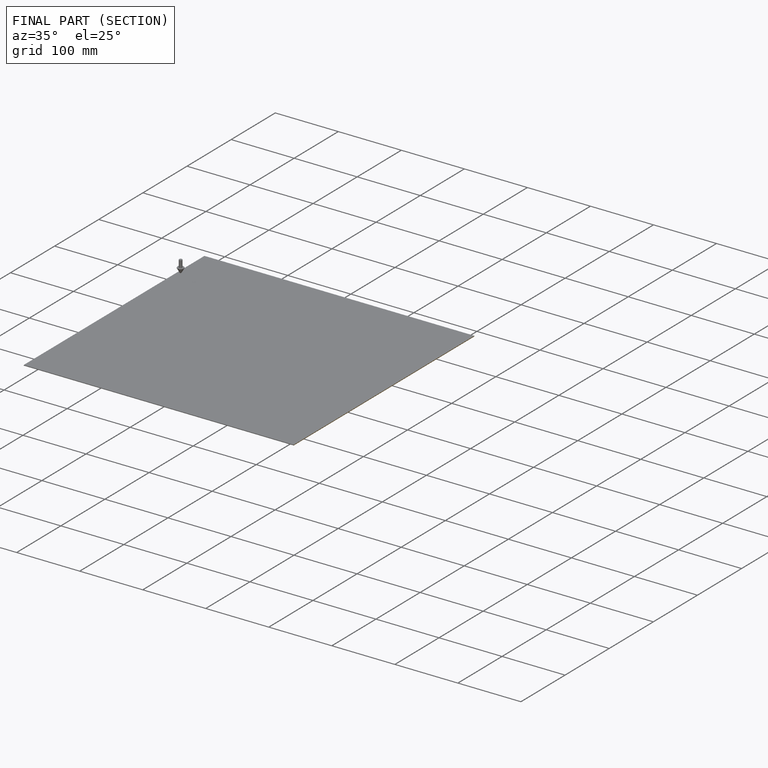
[diagram: finished part — half-section view (interior)]
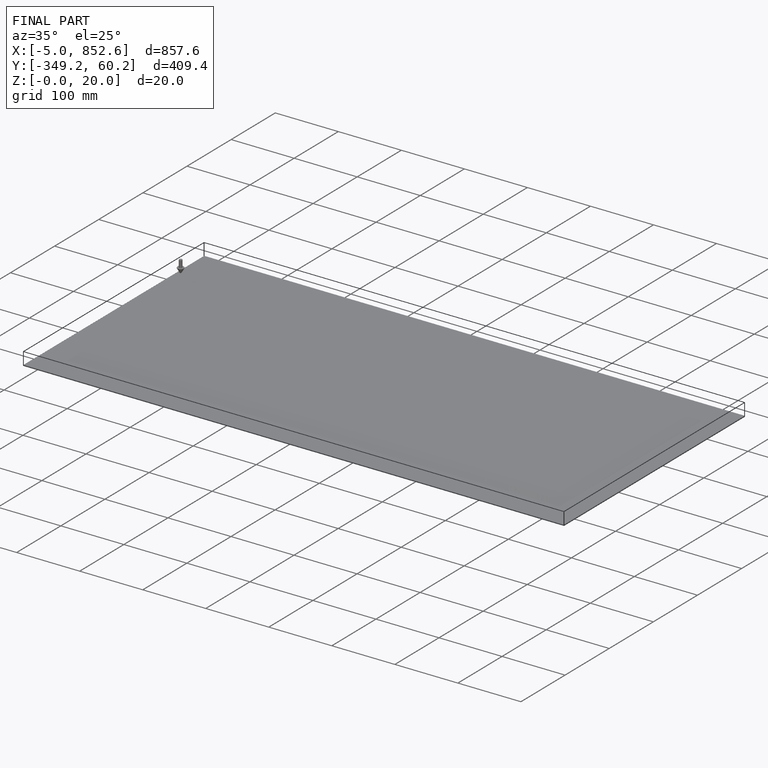
[diagram: finished part — iso view with bounding-box wireframe]
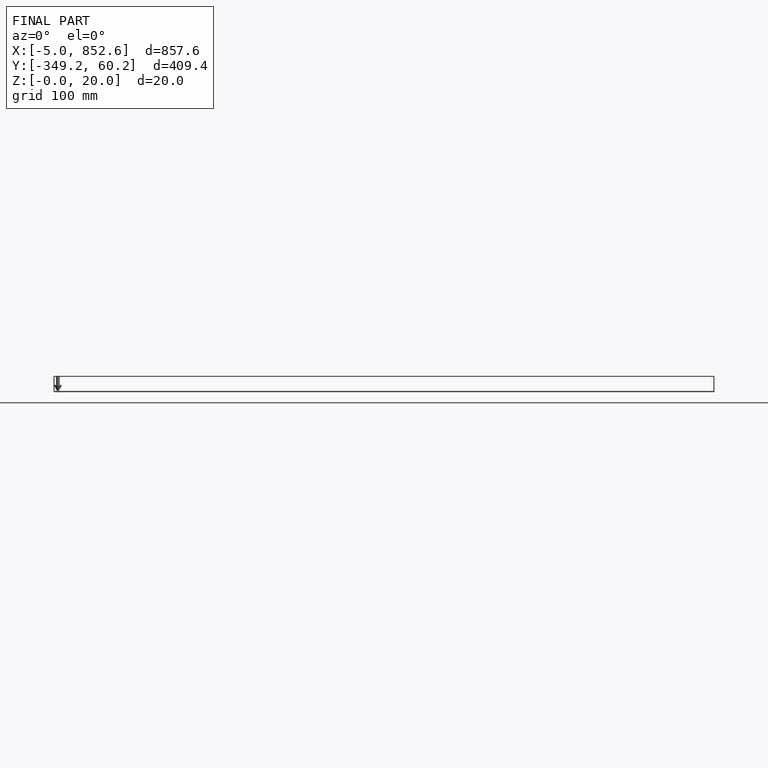
[diagram: finished part — front view with bounding-box wireframe]
